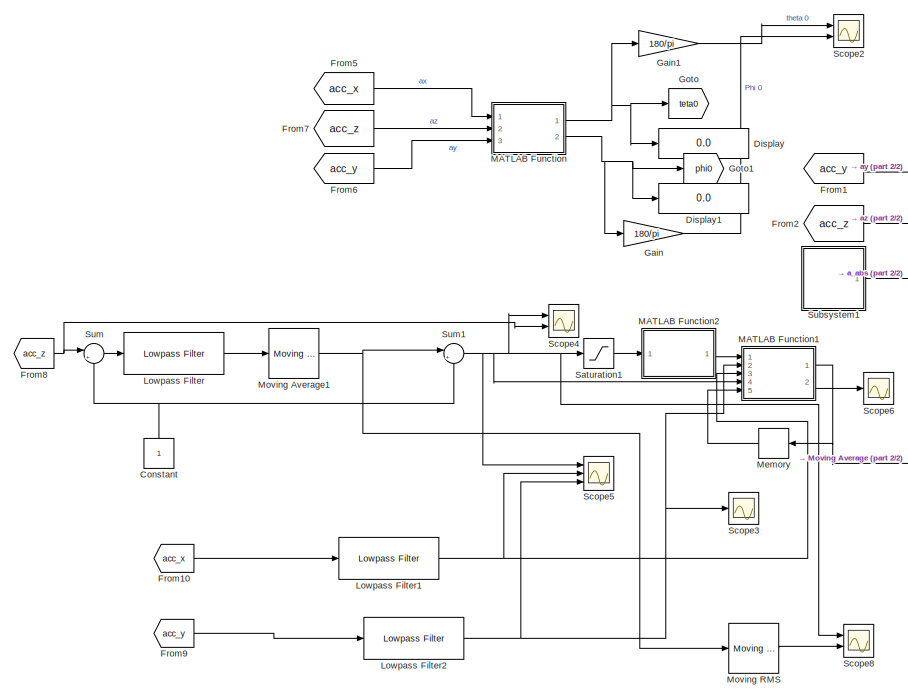
[diagram: root canvas - part 1/2, left side, full height]
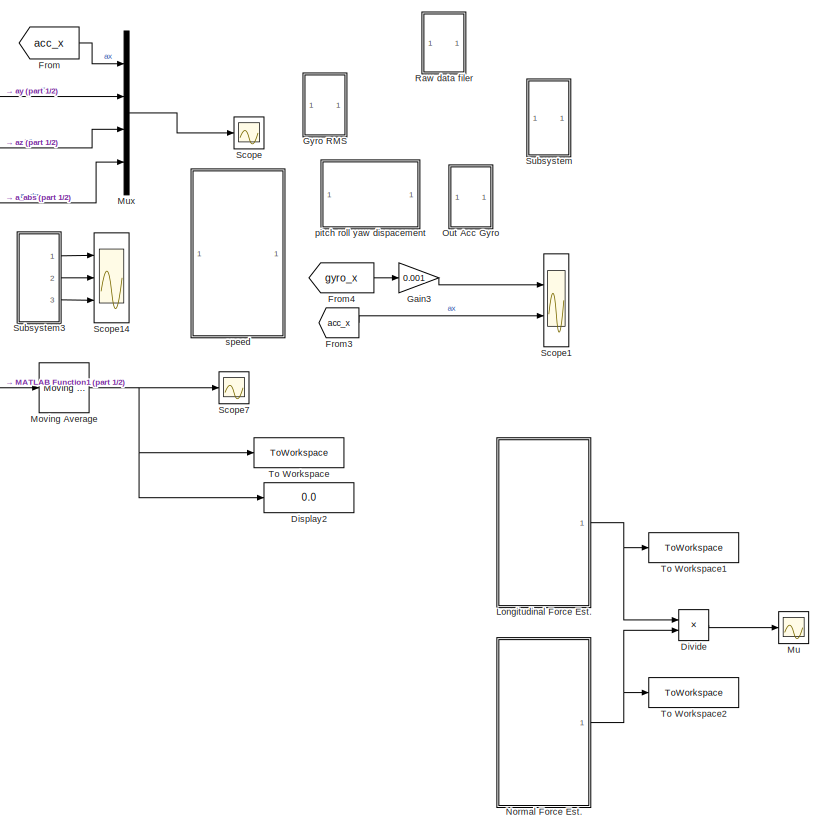
[diagram: root canvas - part 2/2, right side, full height]
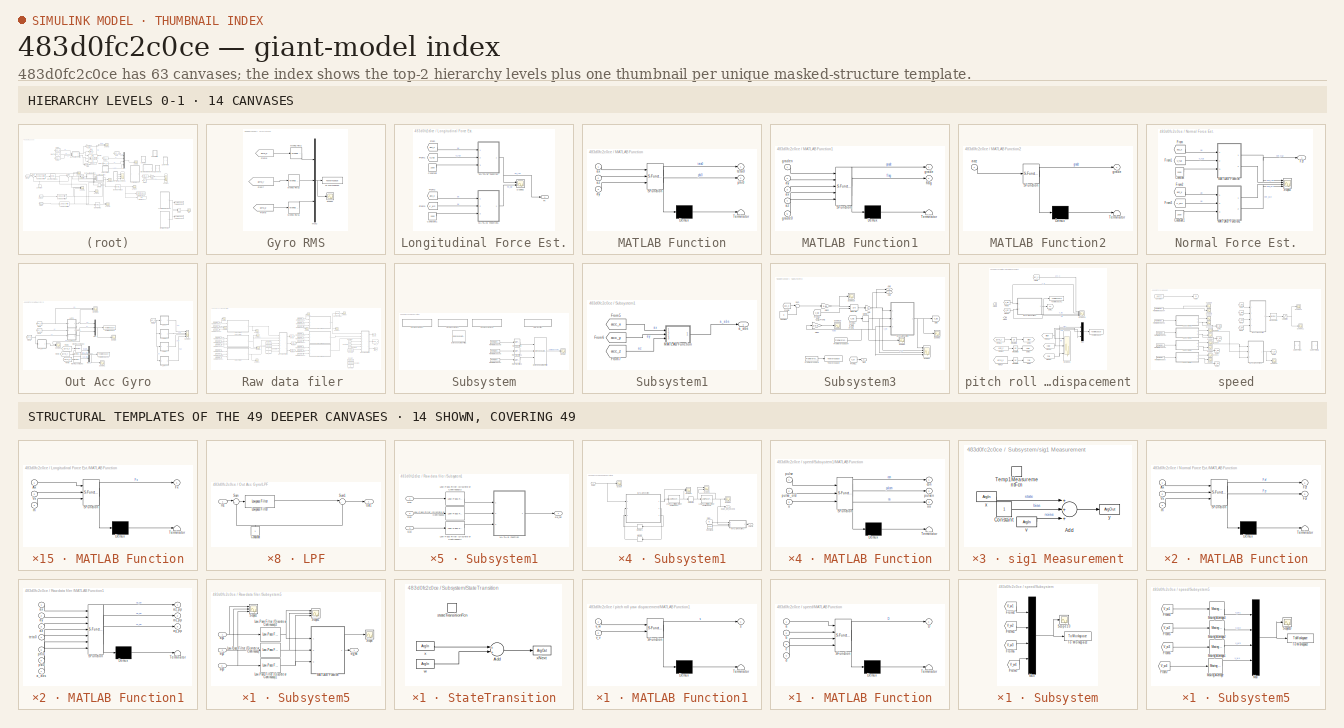
[diagram: thumbnail index - top-2 hierarchy levels (14 canvases) + 14 structural-template representatives of the remaining 49 canvases]
MODEL slx_483d0fc2c0ce
KIND model
CONFIG AbsTol = auto
CONFIG EnableMultiTasking = off
CONFIG FixedStep = 0.01
CONFIG MaxStep = auto
CONFIG MinStep = auto
CONFIG RelTol = 1e-3
CONFIG SampleTimeConstraint = Unconstrained
CONFIG Solver = FixedStepAuto
CONFIG SolverName = FixedStepAuto
CONFIG StartTime = 0.0
CONFIG StopTime = t(end)
BLOCK [Constant] Constant
BLOCK [Display] Display
  Decimation = 1
  Ports = [1]
BLOCK [Display] Display1
  Decimation = 1
  Ports = [1]
BLOCK [Display] Display2
  Decimation = 1
  Ports = [1]
BLOCK [Product] Divide
  InputSameDT = off
  Inputs = */
  OutDataTypeStr = Inherit: Inherit via internal rule
  Ports = [2, 1]
  RndMeth = Floor
  SaturateOnIntegerOverflow = off
BLOCK [From] From
  GotoTag = acc_x
  TagVisibility = global
BLOCK [From] From1
  GotoTag = acc_y
  TagVisibility = global
BLOCK [From] From10
  GotoTag = acc_x
  TagVisibility = global
BLOCK [From] From2
  GotoTag = acc_z
  TagVisibility = global
BLOCK [From] From3
  GotoTag = acc_x
  TagVisibility = global
BLOCK [From] From4
  GotoTag = gyro_x
  TagVisibility = global
BLOCK [From] From5
  GotoTag = acc_x
  TagVisibility = global
BLOCK [From] From6
  GotoTag = acc_y
  TagVisibility = global
BLOCK [From] From7
  GotoTag = acc_z
  TagVisibility = global
BLOCK [From] From8
  GotoTag = acc_z
  TagVisibility = global
BLOCK [From] From9
  GotoTag = acc_y
  TagVisibility = global
BLOCK [Gain] Gain
  Gain = 180/pi
  OutDataTypeStr = Inherit: Inherit via internal rule
  ParamDataTypeStr = Inherit: Inherit via internal rule
  SaturateOnIntegerOverflow = off
BLOCK [Gain] Gain1
  Gain = 180/pi
  OutDataTypeStr = Inherit: Inherit via internal rule
  ParamDataTypeStr = Inherit: Inherit via internal rule
  SaturateOnIntegerOverflow = off
BLOCK [Gain] Gain3
  Gain = 0.001
  OutDataTypeStr = Inherit: Inherit via internal rule
  ParamDataTypeStr = Inherit: Inherit via internal rule
  SaturateOnIntegerOverflow = off
BLOCK [Goto] Goto
  GotoTag = teta0
  TagVisibility = global
BLOCK [Goto] Goto1
  GotoTag = phi0
  TagVisibility = global
BLOCK [SubSystem] Gyro RMS
  Ports = []
  RequestExecContextInheritance = off
BLOCK [From] Gyro RMS/From6
  GotoTag = gyro_x
  TagVisibility = global
BLOCK [From] Gyro RMS/From7
  GotoTag = gyro_y
  TagVisibility = global
BLOCK [From] Gyro RMS/From8
  GotoTag = gyro_z
  TagVisibility = global
BLOCK [Reference] Gyro RMS/Moving RMS  REF=dspstat3/Moving
RMS
  Ports = [1, 1]
  SourceBlock = dspstat3/Moving\nRMS
  SourceProductBaseCode = DS
  SourceProductName = DSP System Toolbox
  SourceType = dsp.simulink.MovingRMS
BLOCK [Reference] Gyro RMS/Moving RMS1  REF=dspstat3/Moving
RMS
  Ports = [1, 1]
  SourceBlock = dspstat3/Moving\nRMS
  SourceProductBaseCode = DS
  SourceProductName = DSP System Toolbox
  SourceType = dsp.simulink.MovingRMS
BLOCK [Reference] Gyro RMS/Moving RMS2  REF=dspstat3/Moving
RMS
  Ports = [1, 1]
  SourceBlock = dspstat3/Moving\nRMS
  SourceProductBaseCode = DS
  SourceProductName = DSP System Toolbox
  SourceType = dsp.simulink.MovingRMS
BLOCK [Mux] Gyro RMS/Mux2
  DisplayOption = bar
  Inputs = 3
  Ports = [3, 1]
BLOCK [Scope] Gyro RMS/Scope2
  Floating = off
  NumInputPorts = 1
  Ports = [1]
  ScopeSpecificationString = Simulink.scopes.TimeScopeBlockCfg('CurrentConfiguration', extmgr.ConfigurationSet(extmgr.Configuration('Core','General UI',true),extmgr.Configuration('Core','Source UI',true),extmgr.Configuration('Sources','WiredSimulink',true,'DataLoggingVariableName','ScopeData9'),extmgr.Configuration('Visuals','Time Domain',true,'SerializedDisplays',{struct('MinYLimReal','-34.50574','MaxYLimReal','312.55829','Y...<+1453ch>
BLOCK [ToWorkspace] Gyro RMS/To Workspace2
  FixptAsFi = on
  MaxDataPoints = inf
  Ports = [1]
  SampleTime = -1
  SaveFormat = Timeseries
  VariableName = rms_gyro
BLOCK [SubSystem] Longitudinal Force Est.
  Ports = [0, 1]
  RequestExecContextInheritance = off
BLOCK [Constant] Longitudinal Force Est./Constant
  Value = 1500
BLOCK [Constant] Longitudinal Force Est./Constant1
  Value = 1500
BLOCK [From] Longitudinal Force Est./From
  GotoTag = acc_x
  TagVisibility = global
BLOCK [From] Longitudinal Force Est./From1
  GotoTag = v_fuz
  TagVisibility = global
BLOCK [From] Longitudinal Force Est./From2
  GotoTag = acc_x
  TagVisibility = global
BLOCK [From] Longitudinal Force Est./From3
  GotoTag = V_w2
  TagVisibility = global
BLOCK [Outport] Longitudinal Force Est./Fx
  IconDisplay = Port number
BLOCK [SubSystem] Longitudinal Force Est./MATLAB Function
  ErrorFcn = Stateflow.Translate.translate
  PermitHierarchicalResolution = ExplicitOnly
  Ports = [3, 1]
  RequestExecContextInheritance = off
  SFBlockType = MATLAB Function
  TreatAsAtomicUnit = on
BLOCK [Demux] Longitudinal Force Est./MATLAB Function/ Demux 
  Outputs = 1
  Ports = [1, 1]
BLOCK [S-Function] Longitudinal Force Est./MATLAB Function/ SFunction 
  EnableBusSupport = on
  FunctionName = sf_sfun
  PortCounts = [3 2]
  Ports = [3, 2]
  SFcnIsStateOwnerBlock = off
  SFunctionDeploymentMode = off
  Tag = Stateflow S-Function 25
BLOCK [Terminator] Longitudinal Force Est./MATLAB Function/ Terminator 
BLOCK [Inport] Longitudinal Force Est./MATLAB Function/Ax
  IconDisplay = Port number
BLOCK [Outport] Longitudinal Force Est./MATLAB Function/Fx
  IconDisplay = Port number
BLOCK [Inport] Longitudinal Force Est./MATLAB Function/Vx
  IconDisplay = Port number
  Port = 2
BLOCK [Inport] Longitudinal Force Est./MATLAB Function/m
  IconDisplay = Port number
  Port = 3
BLOCK [SubSystem] Longitudinal Force Est./MATLAB Function1
  ErrorFcn = Stateflow.Translate.translate
  PermitHierarchicalResolution = ExplicitOnly
  Ports = [3, 1]
  RequestExecContextInheritance = off
  SFBlockType = MATLAB Function
  TreatAsAtomicUnit = on
BLOCK [Demux] Longitudinal Force Est./MATLAB Function1/ Demux 
  Outputs = 1
  Ports = [1, 1]
BLOCK [S-Function] Longitudinal Force Est./MATLAB Function1/ SFunction 
  EnableBusSupport = on
  FunctionName = sf_sfun
  PortCounts = [3 2]
  Ports = [3, 2]
  SFcnIsStateOwnerBlock = off
  SFunctionDeploymentMode = off
  Tag = Stateflow S-Function 26
BLOCK [Terminator] Longitudinal Force Est./MATLAB Function1/ Terminator 
BLOCK [Inport] Longitudinal Force Est./MATLAB Function1/Ax
  IconDisplay = Port number
BLOCK [Outport] Longitudinal Force Est./MATLAB Function1/Fx
  IconDisplay = Port number
BLOCK [Inport] Longitudinal Force Est./MATLAB Function1/Vx
  IconDisplay = Port number
  Port = 2
BLOCK [Inport] Longitudinal Force Est./MATLAB Function1/m
  IconDisplay = Port number
  Port = 3
BLOCK [Scope] Longitudinal Force Est./Scope2
  Floating = off
  NumInputPorts = 2
  Ports = [2]
  ScopeSpecificationString = Simulink.scopes.TimeScopeBlockCfg('CurrentConfiguration', extmgr.ConfigurationSet(extmgr.Configuration('Core','General UI',true),extmgr.Configuration('Core','Source UI',true),extmgr.Configuration('Sources','WiredSimulink',true,'DataLoggingVariableName','ScopeData4'),extmgr.Configuration('Visuals','Time Domain',true,'SerializedDisplays',{struct('MinYLimReal','-1184.52245','MaxYLimReal','2196.94421'...<+1464ch>
BLOCK [Reference] Lowpass Filter  REF=dspfdesign/Lowpass Filter
  Ports = [1, 1]
  SourceBlock = dspfdesign/Lowpass Filter
  SourceProductBaseCode = DS
  SourceProductName = DSP System Toolbox
  SourceType = dsp.LowpassFilter
BLOCK [Reference] Lowpass Filter1  REF=dspfdesign/Lowpass Filter
  Ports = [1, 1]
  SourceBlock = dspfdesign/Lowpass Filter
  SourceProductBaseCode = DS
  SourceProductName = DSP System Toolbox
  SourceType = dsp.LowpassFilter
BLOCK [Reference] Lowpass Filter2  REF=dspfdesign/Lowpass Filter
  Ports = [1, 1]
  SourceBlock = dspfdesign/Lowpass Filter
  SourceProductBaseCode = DS
  SourceProductName = DSP System Toolbox
  SourceType = dsp.LowpassFilter
BLOCK [SubSystem] MATLAB Function
  ErrorFcn = Stateflow.Translate.translate
  PermitHierarchicalResolution = ExplicitOnly
  Ports = [3, 2]
  RequestExecContextInheritance = off
  SFBlockType = MATLAB Function
  TreatAsAtomicUnit = on
BLOCK [Demux] MATLAB Function/ Demux 
  Outputs = 1
  Ports = [1, 1]
BLOCK [S-Function] MATLAB Function/ SFunction 
  EnableBusSupport = on
  FunctionName = sf_sfun
  PortCounts = [3 3]
  Ports = [3, 3]
  SFcnIsStateOwnerBlock = off
  SFunctionDeploymentMode = off
  Tag = Stateflow S-Function 20
BLOCK [Terminator] MATLAB Function/ Terminator 
BLOCK [Inport] MATLAB Function/ax
  IconDisplay = Port number
BLOCK [Inport] MATLAB Function/ay
  IconDisplay = Port number
  Port = 3
BLOCK [Inport] MATLAB Function/az
  IconDisplay = Port number
  Port = 2
BLOCK [Outport] MATLAB Function/phi0
  IconDisplay = Port number
  Port = 2
BLOCK [Outport] MATLAB Function/teta0
  IconDisplay = Port number
BLOCK [SubSystem] MATLAB Function1
  ErrorFcn = Stateflow.Translate.translate
  PermitHierarchicalResolution = ExplicitOnly
  Ports = [5, 2]
  RequestExecContextInheritance = off
  SFBlockType = MATLAB Function
  TreatAsAtomicUnit = on
BLOCK [Demux] MATLAB Function1/ Demux 
  Outputs = 1
  Ports = [1, 1]
BLOCK [S-Function] MATLAB Function1/ SFunction 
  EnableBusSupport = on
  FunctionName = sf_sfun
  PortCounts = [5 3]
  Ports = [5, 3]
  SFcnIsStateOwnerBlock = off
  SFunctionDeploymentMode = off
  Tag = Stateflow S-Function 24
BLOCK [Terminator] MATLAB Function1/ Terminator 
BLOCK [Inport] MATLAB Function1/ax
  IconDisplay = Port number
  Port = 3
BLOCK [Inport] MATLAB Function1/ay
  IconDisplay = Port number
  Port = 2
BLOCK [Inport] MATLAB Function1/az
  IconDisplay = Port number
  Port = 4
BLOCK [Outport] MATLAB Function1/flag
  IconDisplay = Port number
  Port = 2
BLOCK [Outport] MATLAB Function1/grade
  IconDisplay = Port number
BLOCK [Inport] MATLAB Function1/grade0
  IconDisplay = Port number
  Port = 5
BLOCK [Inport] MATLAB Function1/graden
  IconDisplay = Port number
BLOCK [SubSystem] MATLAB Function2
  ErrorFcn = Stateflow.Translate.translate
  PermitHierarchicalResolution = ExplicitOnly
  Ports = [1, 1]
  RequestExecContextInheritance = off
  SFBlockType = MATLAB Function
  TreatAsAtomicUnit = on
BLOCK [Demux] MATLAB Function2/ Demux 
  Outputs = 1
  Ports = [1, 1]
BLOCK [S-Function] MATLAB Function2/ SFunction 
  EnableBusSupport = on
  FunctionName = sf_sfun
  PortCounts = [1 2]
  Ports = [1, 2]
  SFcnIsStateOwnerBlock = off
  SFunctionDeploymentMode = off
  Tag = Stateflow S-Function 23
BLOCK [Terminator] MATLAB Function2/ Terminator 
BLOCK [Inport] MATLAB Function2/accz
  IconDisplay = Port number
BLOCK [Outport] MATLAB Function2/grade
  IconDisplay = Port number
BLOCK [Memory] Memory
BLOCK [Reference] Moving Average  REF=dspstat3/Moving
Average
  Ports = [1, 1]
  SourceBlock = dspstat3/Moving\nAverage
  SourceProductBaseCode = DS
  SourceProductName = DSP System Toolbox
  SourceType = dsp.simulink.MovingAverage
BLOCK [Reference] Moving Average1  REF=dspstat3/Moving
Average
  Ports = [1, 1]
  SourceBlock = dspstat3/Moving\nAverage
  SourceProductBaseCode = DS
  SourceProductName = DSP System Toolbox
  SourceType = dsp.simulink.MovingAverage
BLOCK [Reference] Moving RMS  REF=dspstat3/Moving
RMS
  Ports = [1, 1]
  SourceBlock = dspstat3/Moving\nRMS
  SourceProductBaseCode = DS
  SourceProductName = DSP System Toolbox
  SourceType = dsp.simulink.MovingRMS
BLOCK [Scope] Mu
  Floating = off
  NumInputPorts = 1
  Ports = [1]
  ScopeSpecificationString = Simulink.scopes.TimeScopeBlockCfg('CurrentConfiguration', extmgr.ConfigurationSet(extmgr.Configuration('Core','General UI',true),extmgr.Configuration('Core','Source UI',true),extmgr.Configuration('Sources','WiredSimulink',true,'DataLoggingVariableName','ScopeData3'),extmgr.Configuration('Visuals','Time Domain',true,'SerializedDisplays',{struct('MinYLimReal','-0.31021','MaxYLimReal','2.86284','YLab...<+1414ch>
BLOCK [Mux] Mux
  DisplayOption = bar
  Ports = [4, 1]
BLOCK [SubSystem] Normal Force Est.
  Ports = [0, 1]
  RequestExecContextInheritance = off
BLOCK [Constant] Normal Force Est./Constant
  Value = 1500
BLOCK [Constant] Normal Force Est./Constant1
  Value = 1500
BLOCK [From] Normal Force Est./From
  GotoTag = acc_x
  TagVisibility = global
BLOCK [From] Normal Force Est./From1
  GotoTag = v_fuz
  TagVisibility = global
BLOCK [From] Normal Force Est./From2
  GotoTag = acc_x
  TagVisibility = global
BLOCK [From] Normal Force Est./From3
  GotoTag = V_w2
  TagVisibility = global
BLOCK [Outport] Normal Force Est./Fzf
  IconDisplay = Port number
BLOCK [SubSystem] Normal Force Est./MATLAB Function
  ErrorFcn = Stateflow.Translate.translate
  PermitHierarchicalResolution = ExplicitOnly
  Ports = [3, 2]
  RequestExecContextInheritance = off
  SFBlockType = MATLAB Function
  TreatAsAtomicUnit = on
BLOCK [Demux] Normal Force Est./MATLAB Function/ Demux 
  Outputs = 1
  Ports = [1, 1]
BLOCK [S-Function] Normal Force Est./MATLAB Function/ SFunction 
  EnableBusSupport = on
  FunctionName = sf_sfun
  PortCounts = [3 3]
  Ports = [3, 3]
  SFcnIsStateOwnerBlock = off
  SFunctionDeploymentMode = off
  Tag = Stateflow S-Function 27
BLOCK [Terminator] Normal Force Est./MATLAB Function/ Terminator 
BLOCK [Inport] Normal Force Est./MATLAB Function/Ax
  IconDisplay = Port number
BLOCK [Outport] Normal Force Est./MATLAB Function/Fzf
  IconDisplay = Port number
BLOCK [Outport] Normal Force Est./MATLAB Function/Fzr
  IconDisplay = Port number
  Port = 2
BLOCK [Inport] Normal Force Est./MATLAB Function/Vx
  IconDisplay = Port number
  Port = 2
BLOCK [Inport] Normal Force Est./MATLAB Function/m
  IconDisplay = Port number
  Port = 3
BLOCK [SubSystem] Normal Force Est./MATLAB Function1
  ErrorFcn = Stateflow.Translate.translate
  PermitHierarchicalResolution = ExplicitOnly
  Ports = [3, 2]
  RequestExecContextInheritance = off
  SFBlockType = MATLAB Function
  TreatAsAtomicUnit = on
BLOCK [Demux] Normal Force Est./MATLAB Function1/ Demux 
  Outputs = 1
  Ports = [1, 1]
BLOCK [S-Function] Normal Force Est./MATLAB Function1/ SFunction 
  EnableBusSupport = on
  FunctionName = sf_sfun
  PortCounts = [3 3]
  Ports = [3, 3]
  SFcnIsStateOwnerBlock = off
  SFunctionDeploymentMode = off
  Tag = Stateflow S-Function 28
BLOCK [Terminator] Normal Force Est./MATLAB Function1/ Terminator 
BLOCK [Inport] Normal Force Est./MATLAB Function1/Ax
  IconDisplay = Port number
BLOCK [Outport] Normal Force Est./MATLAB Function1/Fzf
  IconDisplay = Port number
BLOCK [Outport] Normal Force Est./MATLAB Function1/Fzr
  IconDisplay = Port number
  Port = 2
BLOCK [Inport] Normal Force Est./MATLAB Function1/Vx
  IconDisplay = Port number
  Port = 2
BLOCK [Inport] Normal Force Est./MATLAB Function1/m
  IconDisplay = Port number
  Port = 3
BLOCK [Scope] Normal Force Est./Scope2
  Floating = off
  NumInputPorts = 4
  Ports = [4]
  ScopeSpecificationString = Simulink.scopes.TimeScopeBlockCfg('CurrentConfiguration', extmgr.ConfigurationSet(extmgr.Configuration('Core','General UI',true),extmgr.Configuration('Core','Source UI',true),extmgr.Configuration('Sources','WiredSimulink',true,'DataLoggingVariableName','ScopeData2'),extmgr.Configuration('Visuals','Time Domain',true,'SerializedDisplays',{struct('MinYLimReal','2606.48008','MaxYLimReal','12108.51992'...<+1489ch>
BLOCK [SubSystem] Out Acc Gyro
  Ports = []
  RequestExecContextInheritance = off
BLOCK [From] Out Acc Gyro/From
  GotoTag = acc_x
  TagVisibility = global
BLOCK [From] Out Acc Gyro/From1
  GotoTag = acc_y
  TagVisibility = global
BLOCK [From] Out Acc Gyro/From2
  GotoTag = acc_z
  TagVisibility = global
BLOCK [From] Out Acc Gyro/From3
  GotoTag = gyro_x
  TagVisibility = global
BLOCK [From] Out Acc Gyro/From4
  GotoTag = gyro_y
  TagVisibility = global
BLOCK [From] Out Acc Gyro/From5
  GotoTag = gyro_z
  TagVisibility = global
BLOCK [From] Out Acc Gyro/From6
  GotoTag = acc_x
  TagVisibility = global
BLOCK [SubSystem] Out Acc Gyro/LPF
  Ports = [1, 1]
  RequestExecContextInheritance = off
BLOCK [Constant] Out Acc Gyro/LPF/Constant
BLOCK [Inport] Out Acc Gyro/LPF/In1
  IconDisplay = Port number
BLOCK [Reference] Out Acc Gyro/LPF/Lowpass Filter  REF=dspfdesign/Lowpass Filter
  Ports = [1, 1]
  SourceBlock = dspfdesign/Lowpass Filter
  SourceProductBaseCode = DS
  SourceProductName = DSP System Toolbox
  SourceType = dsp.LowpassFilter
BLOCK [Outport] Out Acc Gyro/LPF/Out1
  IconDisplay = Port number
BLOCK [Sum] Out Acc Gyro/LPF/Sum
  IconShape = round
  InputSameDT = off
  Inputs = |+-
  OutDataTypeStr = Inherit: Inherit via internal rule
  Ports = [2, 1]
  SaturateOnIntegerOverflow = off
BLOCK [Sum] Out Acc Gyro/LPF/Sum1
  IconShape = round
  InputSameDT = off
  Inputs = |++
  OutDataTypeStr = Inherit: Inherit via internal rule
  Ports = [2, 1]
  SaturateOnIntegerOverflow = off
BLOCK [SubSystem] Out Acc Gyro/LPF1
  Ports = [1, 1]
  RequestExecContextInheritance = off
BLOCK [Constant] Out Acc Gyro/LPF1/Constant
BLOCK [Inport] Out Acc Gyro/LPF1/In1
  IconDisplay = Port number
BLOCK [Reference] Out Acc Gyro/LPF1/Lowpass Filter  REF=dspfdesign/Lowpass Filter
  Ports = [1, 1]
  SourceBlock = dspfdesign/Lowpass Filter
  SourceProductBaseCode = DS
  SourceProductName = DSP System Toolbox
  SourceType = dsp.LowpassFilter
BLOCK [Outport] Out Acc Gyro/LPF1/Out1
  IconDisplay = Port number
BLOCK [Sum] Out Acc Gyro/LPF1/Sum
  IconShape = round
  InputSameDT = off
  Inputs = |+-
  OutDataTypeStr = Inherit: Inherit via internal rule
  Ports = [2, 1]
  SaturateOnIntegerOverflow = off
BLOCK [Sum] Out Acc Gyro/LPF1/Sum1
  IconShape = round
  InputSameDT = off
  Inputs = |++
  OutDataTypeStr = Inherit: Inherit via internal rule
  Ports = [2, 1]
  SaturateOnIntegerOverflow = off
BLOCK [SubSystem] Out Acc Gyro/LPF2
  Ports = [1, 1]
  RequestExecContextInheritance = off
BLOCK [Constant] Out Acc Gyro/LPF2/Constant
  Value = 0
BLOCK [Inport] Out Acc Gyro/LPF2/In1
  IconDisplay = Port number
BLOCK [Reference] Out Acc Gyro/LPF2/Lowpass Filter  REF=dspfdesign/Lowpass Filter
  Ports = [1, 1]
  SourceBlock = dspfdesign/Lowpass Filter
  SourceProductBaseCode = DS
  SourceProductName = DSP System Toolbox
  SourceType = dsp.LowpassFilter
BLOCK [Outport] Out Acc Gyro/LPF2/Out1
  IconDisplay = Port number
BLOCK [Sum] Out Acc Gyro/LPF2/Sum
  IconShape = round
  InputSameDT = off
  Inputs = |+-
  OutDataTypeStr = Inherit: Inherit via internal rule
  Ports = [2, 1]
  SaturateOnIntegerOverflow = off
BLOCK [Sum] Out Acc Gyro/LPF2/Sum1
  IconShape = round
  InputSameDT = off
  Inputs = |++
  OutDataTypeStr = Inherit: Inherit via internal rule
  Ports = [2, 1]
  SaturateOnIntegerOverflow = off
BLOCK [SubSystem] Out Acc Gyro/LPF3
  Ports = [1, 1]
  RequestExecContextInheritance = off
BLOCK [Constant] Out Acc Gyro/LPF3/Constant
  Value = 0
BLOCK [Inport] Out Acc Gyro/LPF3/In1
  IconDisplay = Port number
BLOCK [Reference] Out Acc Gyro/LPF3/Lowpass Filter  REF=dspfdesign/Lowpass Filter
  Ports = [1, 1]
  SourceBlock = dspfdesign/Lowpass Filter
  SourceProductBaseCode = DS
  SourceProductName = DSP System Toolbox
  SourceType = dsp.LowpassFilter
BLOCK [Outport] Out Acc Gyro/LPF3/Out1
  IconDisplay = Port number
BLOCK [Sum] Out Acc Gyro/LPF3/Sum
  IconShape = round
  InputSameDT = off
  Inputs = |+-
  OutDataTypeStr = Inherit: Inherit via internal rule
  Ports = [2, 1]
  SaturateOnIntegerOverflow = off
BLOCK [Sum] Out Acc Gyro/LPF3/Sum1
  IconShape = round
  InputSameDT = off
  Inputs = |++
  OutDataTypeStr = Inherit: Inherit via internal rule
  Ports = [2, 1]
  SaturateOnIntegerOverflow = off
BLOCK [SubSystem] Out Acc Gyro/LPF4
  Ports = [1, 1]
  RequestExecContextInheritance = off
BLOCK [Constant] Out Acc Gyro/LPF4/Constant
  Value = 0
BLOCK [Inport] Out Acc Gyro/LPF4/In1
  IconDisplay = Port number
BLOCK [Reference] Out Acc Gyro/LPF4/Lowpass Filter  REF=dspfdesign/Lowpass Filter
  Ports = [1, 1]
  SourceBlock = dspfdesign/Lowpass Filter
  SourceProductBaseCode = DS
  SourceProductName = DSP System Toolbox
  SourceType = dsp.LowpassFilter
BLOCK [Outport] Out Acc Gyro/LPF4/Out1
  IconDisplay = Port number
BLOCK [Sum] Out Acc Gyro/LPF4/Sum
  IconShape = round
  InputSameDT = off
  Inputs = |+-
  OutDataTypeStr = Inherit: Inherit via internal rule
  Ports = [2, 1]
  SaturateOnIntegerOverflow = off
BLOCK [Sum] Out Acc Gyro/LPF4/Sum1
  IconShape = round
  InputSameDT = off
  Inputs = |++
  OutDataTypeStr = Inherit: Inherit via internal rule
  Ports = [2, 1]
  SaturateOnIntegerOverflow = off
BLOCK [SubSystem] Out Acc Gyro/LPF5
  Ports = [1, 1]
  RequestExecContextInheritance = off
BLOCK [Constant] Out Acc Gyro/LPF5/Constant
  Value = 0
BLOCK [Inport] Out Acc Gyro/LPF5/In1
  IconDisplay = Port number
BLOCK [Reference] Out Acc Gyro/LPF5/Lowpass Filter  REF=dspfdesign/Lowpass Filter
  Ports = [1, 1]
  SourceBlock = dspfdesign/Lowpass Filter
  SourceProductBaseCode = DS
  SourceProductName = DSP System Toolbox
  SourceType = dsp.LowpassFilter
BLOCK [Outport] Out Acc Gyro/LPF5/Out1
  IconDisplay = Port number
BLOCK [Sum] Out Acc Gyro/LPF5/Sum
  IconShape = round
  InputSameDT = off
  Inputs = |+-
  OutDataTypeStr = Inherit: Inherit via internal rule
  Ports = [2, 1]
  SaturateOnIntegerOverflow = off
BLOCK [Sum] Out Acc Gyro/LPF5/Sum1
  IconShape = round
  InputSameDT = off
  Inputs = |++
  OutDataTypeStr = Inherit: Inherit via internal rule
  Ports = [2, 1]
  SaturateOnIntegerOverflow = off
BLOCK [SubSystem] Out Acc Gyro/LPF6
  Ports = [1, 1]
  RequestExecContextInheritance = off
BLOCK [Constant] Out Acc Gyro/LPF6/Constant
  Value = 0
BLOCK [Inport] Out Acc Gyro/LPF6/In1
  IconDisplay = Port number
BLOCK [Reference] Out Acc Gyro/LPF6/Lowpass Filter  REF=dspfdesign/Lowpass Filter
  Ports = [1, 1]
  SourceBlock = dspfdesign/Lowpass Filter
  SourceProductBaseCode = DS
  SourceProductName = DSP System Toolbox
  SourceType = dsp.LowpassFilter
BLOCK [Outport] Out Acc Gyro/LPF6/Out1
  IconDisplay = Port number
BLOCK [Sum] Out Acc Gyro/LPF6/Sum
  IconShape = round
  InputSameDT = off
  Inputs = |+-
  OutDataTypeStr = Inherit: Inherit via internal rule
  Ports = [2, 1]
  SaturateOnIntegerOverflow = off
BLOCK [Sum] Out Acc Gyro/LPF6/Sum1
  IconShape = round
  InputSameDT = off
  Inputs = |++
  OutDataTypeStr = Inherit: Inherit via internal rule
  Ports = [2, 1]
  SaturateOnIntegerOverflow = off
BLOCK [SubSystem] Out Acc Gyro/LPF7
  Ports = [1, 1]
  RequestExecContextInheritance = off
BLOCK [Constant] Out Acc Gyro/LPF7/Constant
  Value = 0
BLOCK [Inport] Out Acc Gyro/LPF7/In1
  IconDisplay = Port number
BLOCK [Reference] Out Acc Gyro/LPF7/Lowpass Filter  REF=dspfdesign/Lowpass Filter
  Ports = [1, 1]
  SourceBlock = dspfdesign/Lowpass Filter
  SourceProductBaseCode = DS
  SourceProductName = DSP System Toolbox
  SourceType = dsp.LowpassFilter
BLOCK [Outport] Out Acc Gyro/LPF7/Out1
  IconDisplay = Port number
BLOCK [Sum] Out Acc Gyro/LPF7/Sum
  IconShape = round
  InputSameDT = off
  Inputs = |+-
  OutDataTypeStr = Inherit: Inherit via internal rule
  Ports = [2, 1]
  SaturateOnIntegerOverflow = off
BLOCK [Sum] Out Acc Gyro/LPF7/Sum1
  IconShape = round
  InputSameDT = off
  Inputs = |++
  OutDataTypeStr = Inherit: Inherit via internal rule
  Ports = [2, 1]
  SaturateOnIntegerOverflow = off
BLOCK [Reference] Out Acc Gyro/Moving Average1  REF=dspstat3/Moving
Average
  Ports = [1, 1]
  SourceBlock = dspstat3/Moving\nAverage
  SourceProductBaseCode = DS
  SourceProductName = DSP System Toolbox
  SourceType = dsp.simulink.MovingAverage
BLOCK [Reference] Out Acc Gyro/Moving Average2  REF=dspstat3/Moving
Average
  Ports = [1, 1]
  SourceBlock = dspstat3/Moving\nAverage
  SourceProductBaseCode = DS
  SourceProductName = DSP System Toolbox
  SourceType = dsp.simulink.MovingAverage
BLOCK [Reference] Out Acc Gyro/Moving Average3  REF=dspstat3/Moving
Average
  Ports = [1, 1]
  SourceBlock = dspstat3/Moving\nAverage
  SourceProductBaseCode = DS
  SourceProductName = DSP System Toolbox
  SourceType = dsp.simulink.MovingAverage
BLOCK [Mux] Out Acc Gyro/Mux
  DisplayOption = bar
  Inputs = 3
  Ports = [3, 1]
BLOCK [Mux] Out Acc Gyro/Mux1
  DisplayOption = bar
  Inputs = 3
  Ports = [3, 1]
BLOCK [Scope] Out Acc Gyro/Scope
  Floating = off
  NumInputPorts = 1
  Ports = [1]
  ScopeSpecificationString = Simulink.scopes.TimeScopeBlockCfg('CurrentConfiguration', extmgr.ConfigurationSet(extmgr.Configuration('Core','General UI',true),extmgr.Configuration('Core','Source UI',true),extmgr.Configuration('Sources','WiredSimulink',true,'DataLoggingVariableName','ScopeData13'),extmgr.Configuration('Visuals','Time Domain',true,'SerializedDisplays',{struct('MinYLimReal','-0.9568','MaxYLimReal','1.36158','YLab...<+1439ch>
BLOCK [Scope] Out Acc Gyro/Scope1
  Floating = off
  NumInputPorts = 1
  Ports = [1]
  ScopeSpecificationString = Simulink.scopes.TimeScopeBlockCfg('CurrentConfiguration', extmgr.ConfigurationSet(extmgr.Configuration('Core','General UI',true),extmgr.Configuration('Core','Source UI',true),extmgr.Configuration('Sources','WiredSimulink',true,'DataLoggingVariableName','ScopeData5'),extmgr.Configuration('Visuals','Time Domain',true,'SerializedDisplays',{struct('MinYLimReal','-0.00485','MaxYLimReal','0.0096','YLabe...<+1525ch>
BLOCK [Scope] Out Acc Gyro/Scope2
  Floating = off
  NumInputPorts = 2
  Ports = [2]
  ScopeSpecificationString = Simulink.scopes.TimeScopeBlockCfg('CurrentConfiguration', extmgr.ConfigurationSet(extmgr.Configuration('Core','General UI',true),extmgr.Configuration('Core','Source UI',true),extmgr.Configuration('Sources','WiredSimulink',true,'DataLoggingVariableName','ScopeData8'),extmgr.Configuration('Visuals','Time Domain',true,'SerializedDisplays',{struct('MinYLimReal','-0.86323','MaxYLimReal','0.47301','YLab...<+1435ch>
BLOCK [Scope] Out Acc Gyro/Scope3
  Floating = off
  NumInputPorts = 2
  Ports = [2]
  ScopeSpecificationString = Simulink.scopes.TimeScopeBlockCfg('CurrentConfiguration', extmgr.ConfigurationSet(extmgr.Configuration('Core','General UI',true),extmgr.Configuration('Core','Source UI',true),extmgr.Configuration('Sources','WiredSimulink',true,'DataLoggingVariableName','ScopeData9'),extmgr.Configuration('Visuals','Time Domain',true,'SerializedDisplays',{struct('MinYLimReal','0.75505','MaxYLimReal','1.17137','YLabe...<+1434ch>
BLOCK [Scope] Out Acc Gyro/Scope4
  Floating = off
  NumInputPorts = 4
  Ports = [4]
  ScopeSpecificationString = Simulink.scopes.TimeScopeBlockCfg('CurrentConfiguration', extmgr.ConfigurationSet(extmgr.Configuration('Core','General UI',true),extmgr.Configuration('Core','Source UI',true),extmgr.Configuration('Sources','WiredSimulink',true,'DataLoggingVariableName','ScopeData10'),extmgr.Configuration('Visuals','Time Domain',true,'SerializedDisplays',{struct('MinYLimReal','-0.85521','MaxYLimReal','0.47003','YLa...<+1541ch>
BLOCK [ToWorkspace] Out Acc Gyro/To Workspace
  FixptAsFi = on
  MaxDataPoints = inf
  Ports = [1]
  SampleTime = -1
  SaveFormat = Timeseries
  VariableName = acc
BLOCK [ToWorkspace] Out Acc Gyro/To Workspace1
  FixptAsFi = on
  MaxDataPoints = inf
  Ports = [1]
  SampleTime = -1
  SaveFormat = Timeseries
  VariableName = gyro
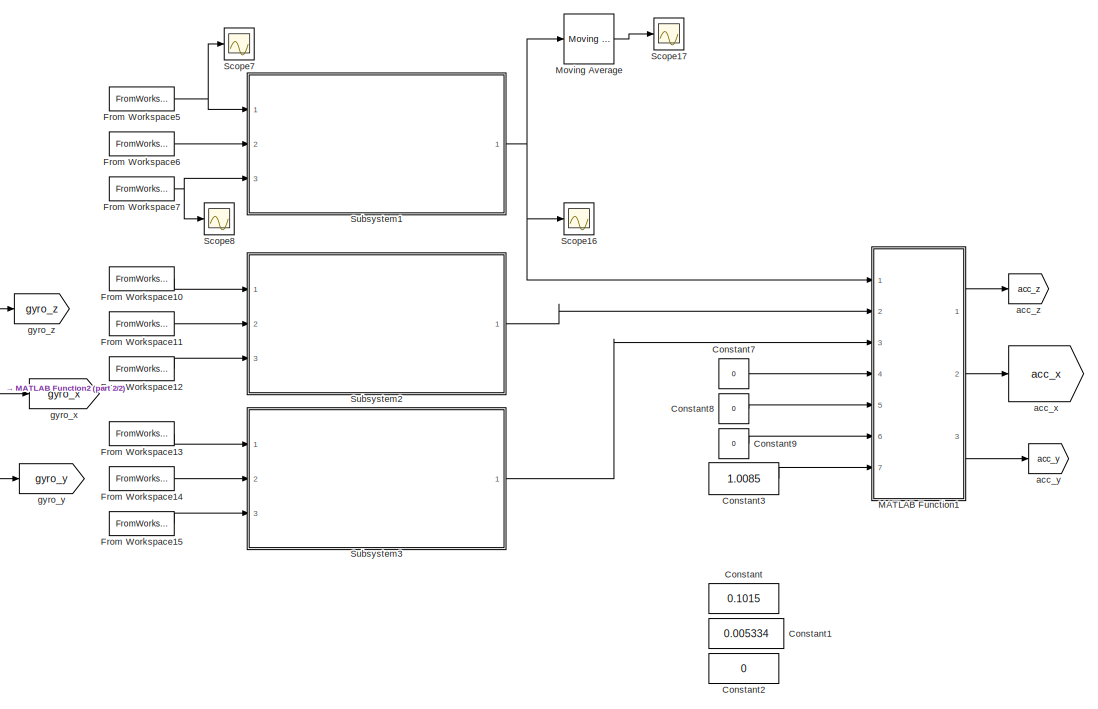
[diagram: Raw data filer  - part 1/2, right side, full height]
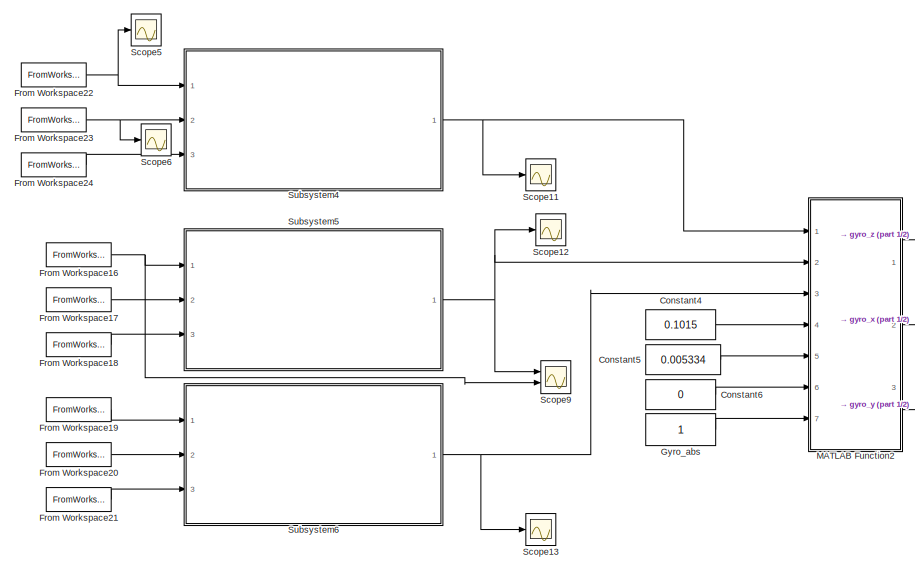
[diagram: Raw data filer  - part 2/2, left side, full height]
BLOCK [SubSystem] Raw data filer 
  Ports = []
  RequestExecContextInheritance = off
BLOCK [Constant] Raw data filer /Constant
  Commented = on
  Value = 0.1015
BLOCK [Constant] Raw data filer /Constant1
  Commented = on
  Value = 0.005334
BLOCK [Constant] Raw data filer /Constant2
  Commented = on
  Value = 0
BLOCK [Constant] Raw data filer /Constant3
  Value = 1.0085
BLOCK [Constant] Raw data filer /Constant4
  Value = 0.1015
BLOCK [Constant] Raw data filer /Constant5
  Value = 0.005334
BLOCK [Constant] Raw data filer /Constant6
  Value = 0
BLOCK [Constant] Raw data filer /Constant7
  Value = 0
BLOCK [Constant] Raw data filer /Constant8
  Value = 0
BLOCK [Constant] Raw data filer /Constant9
  Value = 0
BLOCK [FromWorkspace] Raw data filer /From Workspace10
  SampleTime = 0
  VariableName = IMU1.accyt
  ZeroCross = on
BLOCK [FromWorkspace] Raw data filer /From Workspace11
  SampleTime = 0
  VariableName = IMU2.accyt
  ZeroCross = on
BLOCK [FromWorkspace] Raw data filer /From Workspace12
  SampleTime = 0
  VariableName = IMU3.accyt
  ZeroCross = on
BLOCK [FromWorkspace] Raw data filer /From Workspace13
  SampleTime = 0
  VariableName = IMU1.acczt
  ZeroCross = on
BLOCK [FromWorkspace] Raw data filer /From Workspace14
  SampleTime = 0
  VariableName = IMU2.acczt
  ZeroCross = on
BLOCK [FromWorkspace] Raw data filer /From Workspace15
  SampleTime = 0
  VariableName = IMU3.acczt
  ZeroCross = on
BLOCK [FromWorkspace] Raw data filer /From Workspace16
  SampleTime = 0
  VariableName = IMU1.gyroyt
  ZeroCross = on
BLOCK [FromWorkspace] Raw data filer /From Workspace17
  SampleTime = 0
  VariableName = IMU2.gyroyt
  ZeroCross = on
BLOCK [FromWorkspace] Raw data filer /From Workspace18
  SampleTime = 0
  VariableName = IMU3.gyroyt
  ZeroCross = on
BLOCK [FromWorkspace] Raw data filer /From Workspace19
  SampleTime = 0
  VariableName = IMU1.gyrozt
  ZeroCross = on
BLOCK [FromWorkspace] Raw data filer /From Workspace20
  SampleTime = 0
  VariableName = IMU2.gyrozt
  ZeroCross = on
BLOCK [FromWorkspace] Raw data filer /From Workspace21
  SampleTime = 0
  VariableName = IMU3.gyrozt
  ZeroCross = on
BLOCK [FromWorkspace] Raw data filer /From Workspace22
  SampleTime = 0
  VariableName = IMU1.gyroxt
  ZeroCross = on
BLOCK [FromWorkspace] Raw data filer /From Workspace23
  SampleTime = 0
  VariableName = IMU2.gyroxt
  ZeroCross = on
BLOCK [FromWorkspace] Raw data filer /From Workspace24
  SampleTime = 0
  VariableName = IMU3.gyroxt
  ZeroCross = on
BLOCK [FromWorkspace] Raw data filer /From Workspace5
  SampleTime = 0
  VariableName = IMU1.accxt
  ZeroCross = on
BLOCK [FromWorkspace] Raw data filer /From Workspace6
  SampleTime = 0
  VariableName = IMU2.accxt
  ZeroCross = on
BLOCK [FromWorkspace] Raw data filer /From Workspace7
  SampleTime = 0
  VariableName = IMU3.accxt
  ZeroCross = on
BLOCK [Constant] Raw data filer /Gyro_abs
BLOCK [SubSystem] Raw data filer /MATLAB Function1
  ErrorFcn = Stateflow.Translate.translate
  PermitHierarchicalResolution = ExplicitOnly
  Ports = [7, 3]
  RequestExecContextInheritance = off
  SFBlockType = MATLAB Function
  TreatAsAtomicUnit = on
BLOCK [Demux] Raw data filer /MATLAB Function1/ Demux 
  Outputs = 1
  Ports = [1, 1]
BLOCK [S-Function] Raw data filer /MATLAB Function1/ SFunction 
  EnableBusSupport = on
  FunctionName = sf_sfun
  PortCounts = [7 4]
  Ports = [7, 4]
  SFcnIsStateOwnerBlock = off
  SFunctionDeploymentMode = off
  Tag = Stateflow S-Function 21
BLOCK [Terminator] Raw data filer /MATLAB Function1/ Terminator 
BLOCK [Inport] Raw data filer /MATLAB Function1/a_abs
  IconDisplay = Port number
  Port = 7
BLOCK [Inport] Raw data filer /MATLAB Function1/ax
  IconDisplay = Port number
BLOCK [Outport] Raw data filer /MATLAB Function1/ax_pp
  IconDisplay = Port number
  Port = 2
BLOCK [Inport] Raw data filer /MATLAB Function1/ay
  IconDisplay = Port number
  Port = 2
BLOCK [Outport] Raw data filer /MATLAB Function1/ay_pp
  IconDisplay = Port number
  Port = 3
BLOCK [Inport] Raw data filer /MATLAB Function1/az
  IconDisplay = Port number
  Port = 3
BLOCK [Outport] Raw data filer /MATLAB Function1/az_pp
  IconDisplay = Port number
BLOCK [Inport] Raw data filer /MATLAB Function1/phi0
  IconDisplay = Port number
  Port = 5
BLOCK [Inport] Raw data filer /MATLAB Function1/psi0
  IconDisplay = Port number
  Port = 6
BLOCK [Inport] Raw data filer /MATLAB Function1/teta0
  IconDisplay = Port number
  Port = 4
BLOCK [SubSystem] Raw data filer /MATLAB Function2
  ErrorFcn = Stateflow.Translate.translate
  PermitHierarchicalResolution = ExplicitOnly
  Ports = [7, 3]
  RequestExecContextInheritance = off
  SFBlockType = MATLAB Function
  TreatAsAtomicUnit = on
BLOCK [Demux] Raw data filer /MATLAB Function2/ Demux 
  Outputs = 1
  Ports = [1, 1]
BLOCK [S-Function] Raw data filer /MATLAB Function2/ SFunction 
  EnableBusSupport = on
  FunctionName = sf_sfun
  PortCounts = [7 4]
  Ports = [7, 4]
  SFcnIsStateOwnerBlock = off
  SFunctionDeploymentMode = off
  Tag = Stateflow S-Function 22
BLOCK [Terminator] Raw data filer /MATLAB Function2/ Terminator 
BLOCK [Inport] Raw data filer /MATLAB Function2/a_abs
  IconDisplay = Port number
  Port = 7
BLOCK [Inport] Raw data filer /MATLAB Function2/ax
  IconDisplay = Port number
BLOCK [Outport] Raw data filer /MATLAB Function2/ax_pp
  IconDisplay = Port number
  Port = 2
BLOCK [Inport] Raw data filer /MATLAB Function2/ay
  IconDisplay = Port number
  Port = 2
BLOCK [Outport] Raw data filer /MATLAB Function2/ay_pp
  IconDisplay = Port number
  Port = 3
BLOCK [Inport] Raw data filer /MATLAB Function2/az
  IconDisplay = Port number
  Port = 3
BLOCK [Outport] Raw data filer /MATLAB Function2/az_pp
  IconDisplay = Port number
BLOCK [Inport] Raw data filer /MATLAB Function2/phi0
  IconDisplay = Port number
  Port = 5
BLOCK [Inport] Raw data filer /MATLAB Function2/psi0
  IconDisplay = Port number
  Port = 6
BLOCK [Inport] Raw data filer /MATLAB Function2/teta0
  IconDisplay = Port number
  Port = 4
BLOCK [Reference] Raw data filer /Moving Average  REF=dspstat3/Moving
Average
  Ports = [1, 1]
  SourceBlock = dspstat3/Moving\nAverage
  SourceProductBaseCode = DS
  SourceProductName = DSP System Toolbox
  SourceType = dsp.simulink.MovingAverage
BLOCK [Scope] Raw data filer /Scope11
  Floating = off
  NumInputPorts = 1
  Ports = [1]
  ScopeSpecificationString = Simulink.scopes.TimeScopeBlockCfg('CurrentConfiguration', extmgr.ConfigurationSet(extmgr.Configuration('Core','General UI',true),extmgr.Configuration('Core','Source UI',true),extmgr.Configuration('Sources','WiredSimulink',true,'DataLoggingVariableName','ScopeData1'),extmgr.Configuration('Visuals','Time Domain',true,'SerializedDisplays',{struct('MinYLimReal','-0.02267','MaxYLimReal','0.01894','YLab...<+1421ch>
BLOCK [Scope] Raw data filer /Scope12
  Floating = off
  NumInputPorts = 1
  Ports = [1]
  ScopeSpecificationString = Simulink.scopes.TimeScopeBlockCfg('CurrentConfiguration', extmgr.ConfigurationSet(extmgr.Configuration('Core','General UI',true),extmgr.Configuration('Core','Source UI',true),extmgr.Configuration('Sources','WiredSimulink',true,'DataLoggingVariableName','ScopeData2'),extmgr.Configuration('Visuals','Time Domain',true,'SerializedDisplays',{struct('MinYLimReal','-0.00771','MaxYLimReal','0.01694','YLab...<+1369ch>
BLOCK [Scope] Raw data filer /Scope13
  Floating = off
  NumInputPorts = 1
  Ports = [1]
  ScopeSpecificationString = Simulink.scopes.TimeScopeBlockCfg('CurrentConfiguration', extmgr.ConfigurationSet(extmgr.Configuration('Core','General UI',true),extmgr.Configuration('Core','Source UI',true),extmgr.Configuration('Sources','WiredSimulink',true,'DataLoggingVariableName','ScopeData3'),extmgr.Configuration('Visuals','Time Domain',true,'SerializedDisplays',{struct('MinYLimReal','-0.21729','MaxYLimReal','0.15203','YLab...<+1369ch>
BLOCK [Scope] Raw data filer /Scope16
  Floating = off
  NumInputPorts = 1
  Ports = [1]
  ScopeSpecificationString = Simulink.scopes.TimeScopeBlockCfg('CurrentConfiguration', extmgr.ConfigurationSet(extmgr.Configuration('Core','General UI',true),extmgr.Configuration('Core','Source UI',true),extmgr.Configuration('Sources','WiredSimulink',true,'DataLoggingVariableName','ScopeData6'),extmgr.Configuration('Visuals','Time Domain',true,'SerializedDisplays',{struct('MinYLimReal','0.05242','MaxYLimReal','0.05655','YLabe...<+1413ch>
BLOCK [Scope] Raw data filer /Scope17
  Floating = off
  NumInputPorts = 1
  Ports = [1]
  ScopeSpecificationString = Simulink.scopes.TimeScopeBlockCfg('CurrentConfiguration', extmgr.ConfigurationSet(extmgr.Configuration('Core','General UI',true),extmgr.Configuration('Core','Source UI',true),extmgr.Configuration('Sources','WiredSimulink',true,'DataLoggingVariableName','ScopeData7'),extmgr.Configuration('Visuals','Time Domain',true,'SerializedDisplays',{struct('MinYLimReal','0.05395','MaxYLimReal','0.05471','YLabe...<+1417ch>
BLOCK [Scope] Raw data filer /Scope5
  Floating = off
  NumInputPorts = 1
  Ports = [1]
  ScopeSpecificationString = Simulink.scopes.TimeScopeBlockCfg('CurrentConfiguration', extmgr.ConfigurationSet(extmgr.Configuration('Core','General UI',true),extmgr.Configuration('Core','Source UI',true),extmgr.Configuration('Sources','WiredSimulink',true,'DataLoggingVariableName','ScopeData1'),extmgr.Configuration('Visuals','Time Domain',true,'SerializedDisplays',{struct('MinYLimReal','-0.13783','MaxYLimReal','0.0917','YLabe...<+1373ch>
BLOCK [Scope] Raw data filer /Scope6
  Floating = off
  NumInputPorts = 1
  Ports = [1]
  ScopeSpecificationString = Simulink.scopes.TimeScopeBlockCfg('CurrentConfiguration', extmgr.ConfigurationSet(extmgr.Configuration('Core','General UI',true),extmgr.Configuration('Core','Source UI',true),extmgr.Configuration('Sources','WiredSimulink',true,'DataLoggingVariableName','ScopeData2'),extmgr.Configuration('Visuals','Time Domain',true,'SerializedDisplays',{struct('MinYLimReal','-0.13445','MaxYLimReal','0.09383','YLab...<+1375ch>
BLOCK [Scope] Raw data filer /Scope7
  Floating = off
  NumInputPorts = 1
  Ports = [1]
  ScopeSpecificationString = Simulink.scopes.TimeScopeBlockCfg('CurrentConfiguration', extmgr.ConfigurationSet(extmgr.Configuration('Core','General UI',true),extmgr.Configuration('Core','Source UI',true),extmgr.Configuration('Sources','WiredSimulink',true,'DataLoggingVariableName','ScopeData3'),extmgr.Configuration('Visuals','Time Domain',true,'SerializedDisplays',{struct('MinYLimReal','-1.21982','MaxYLimReal','1.94028','YLab...<+1403ch>
BLOCK [Scope] Raw data filer /Scope8
  Floating = off
  NumInputPorts = 1
  Ports = [1]
  ScopeSpecificationString = Simulink.scopes.TimeScopeBlockCfg('CurrentConfiguration', extmgr.ConfigurationSet(extmgr.Configuration('Core','General UI',true),extmgr.Configuration('Core','Source UI',true),extmgr.Configuration('Sources','WiredSimulink',true,'DataLoggingVariableName','ScopeData4'),extmgr.Configuration('Visuals','Time Domain',true,'SerializedDisplays',{struct('MinYLimReal','-0.31466','MaxYLimReal','0.24066','YLab...<+1374ch>
BLOCK [Scope] Raw data filer /Scope9
  Floating = off
  NumInputPorts = 2
  Ports = [2]
  ScopeSpecificationString = Simulink.scopes.TimeScopeBlockCfg('CurrentConfiguration', extmgr.ConfigurationSet(extmgr.Configuration('Core','General UI',true),extmgr.Configuration('Core','Source UI',true),extmgr.Configuration('Sources','WiredSimulink',true,'DataLoggingVariableName','ScopeData5'),extmgr.Configuration('Visuals','Time Domain',true,'SerializedDisplays',{struct('MinYLimReal','33.62655','MaxYLimReal','55.08233','YLa...<+1440ch>
BLOCK [SubSystem] Raw data filer /Subsystem1
  Ports = [3, 1]
  RequestExecContextInheritance = off
BLOCK [Reference] Raw data filer /Subsystem1/Low-Pass Filter (Discrete or Continuous)  REF=eeGeneralControl/Low-Pass Filter
(Discrete or Continuous)
  Ports = [1, 1]
  SourceBlock = eeGeneralControl/Low-Pass Filter\n(Discrete or Continuous)
  SourceProductBaseCode = PS
  SourceProductName = Simscape Electrical
  SourceType = Low-Pass Filter (Discrete or Continuous)
BLOCK [Reference] Raw data filer /Subsystem1/Low-Pass Filter (Discrete or Continuous)1  REF=eeGeneralControl/Low-Pass Filter
(Discrete or Continuous)
  Ports = [1, 1]
  SourceBlock = eeGeneralControl/Low-Pass Filter\n(Discrete or Continuous)
  SourceProductBaseCode = PS
  SourceProductName = Simscape Electrical
  SourceType = Low-Pass Filter (Discrete or Continuous)
BLOCK [Reference] Raw data filer /Subsystem1/Low-Pass Filter (Discrete or Continuous)2  REF=eeGeneralControl/Low-Pass Filter
(Discrete or Continuous)
  Ports = [1, 1]
  SourceBlock = eeGeneralControl/Low-Pass Filter\n(Discrete or Continuous)
  SourceProductBaseCode = PS
  SourceProductName = Simscape Electrical
  SourceType = Low-Pass Filter (Discrete or Continuous)
BLOCK [SubSystem] Raw data filer /Subsystem1/MATLAB Function
  ErrorFcn = Stateflow.Translate.translate
  PermitHierarchicalResolution = ExplicitOnly
  Ports = [3, 1]
  RequestExecContextInheritance = off
  SFBlockType = MATLAB Function
  TreatAsAtomicUnit = on
BLOCK [Demux] Raw data filer /Subsystem1/MATLAB Function/ Demux 
  Outputs = 1
  Ports = [1, 1]
BLOCK [S-Function] Raw data filer /Subsystem1/MATLAB Function/ SFunction 
  EnableBusSupport = on
  FunctionName = sf_sfun
  PortCounts = [3 2]
  Ports = [3, 2]
  SFcnIsStateOwnerBlock = off
  SFunctionDeploymentMode = off
  Tag = Stateflow S-Function 10
BLOCK [Terminator] Raw data filer /Subsystem1/MATLAB Function/ Terminator 
BLOCK [Outport] Raw data filer /Subsystem1/MATLAB Function/x_hat
  IconDisplay = Port number
BLOCK [Inport] Raw data filer /Subsystem1/MATLAB Function/z1
  IconDisplay = Port number
BLOCK [Inport] Raw data filer /Subsystem1/MATLAB Function/z2
  IconDisplay = Port number
  Port = 2
BLOCK [Inport] Raw data filer /Subsystem1/MATLAB Function/z3
  IconDisplay = Port number
  Port = 3
BLOCK [Inport] Raw data filer /Subsystem1/sig1
  IconDisplay = Port number
BLOCK [Inport] Raw data filer /Subsystem1/sig2
  IconDisplay = Port number
  Port = 2
BLOCK [Inport] Raw data filer /Subsystem1/sig3
  IconDisplay = Port number
  Port = 3
BLOCK [Outport] Raw data filer /Subsystem1/sig_hat
  IconDisplay = Port number
BLOCK [SubSystem] Raw data filer /Subsystem2
  Ports = [3, 1]
  RequestExecContextInheritance = off
BLOCK [Reference] Raw data filer /Subsystem2/Low-Pass Filter (Discrete or Continuous)  REF=eeGeneralControl/Low-Pass Filter
(Discrete or Continuous)
  Ports = [1, 1]
  SourceBlock = eeGeneralControl/Low-Pass Filter\n(Discrete or Continuous)
  SourceProductBaseCode = PS
  SourceProductName = Simscape Electrical
  SourceType = Low-Pass Filter (Discrete or Continuous)
BLOCK [Reference] Raw data filer /Subsystem2/Low-Pass Filter (Discrete or Continuous)1  REF=eeGeneralControl/Low-Pass Filter
(Discrete or Continuous)
  Ports = [1, 1]
  SourceBlock = eeGeneralControl/Low-Pass Filter\n(Discrete or Continuous)
  SourceProductBaseCode = PS
  SourceProductName = Simscape Electrical
  SourceType = Low-Pass Filter (Discrete or Continuous)
BLOCK [Reference] Raw data filer /Subsystem2/Low-Pass Filter (Discrete or Continuous)2  REF=eeGeneralControl/Low-Pass Filter
(Discrete or Continuous)
  Ports = [1, 1]
  SourceBlock = eeGeneralControl/Low-Pass Filter\n(Discrete or Continuous)
  SourceProductBaseCode = PS
  SourceProductName = Simscape Electrical
  SourceType = Low-Pass Filter (Discrete or Continuous)
BLOCK [SubSystem] Raw data filer /Subsystem2/MATLAB Function
  ErrorFcn = Stateflow.Translate.translate
  PermitHierarchicalResolution = ExplicitOnly
  Ports = [3, 1]
  RequestExecContextInheritance = off
  SFBlockType = MATLAB Function
  TreatAsAtomicUnit = on
BLOCK [Demux] Raw data filer /Subsystem2/MATLAB Function/ Demux 
  Outputs = 1
  Ports = [1, 1]
BLOCK [S-Function] Raw data filer /Subsystem2/MATLAB Function/ SFunction 
  EnableBusSupport = on
  FunctionName = sf_sfun
  PortCounts = [3 2]
  Ports = [3, 2]
  SFcnIsStateOwnerBlock = off
  SFunctionDeploymentMode = off
  Tag = Stateflow S-Function 11
BLOCK [Terminator] Raw data filer /Subsystem2/MATLAB Function/ Terminator 
BLOCK [Outport] Raw data filer /Subsystem2/MATLAB Function/x_hat
  IconDisplay = Port number
BLOCK [Inport] Raw data filer /Subsystem2/MATLAB Function/z1
  IconDisplay = Port number
BLOCK [Inport] Raw data filer /Subsystem2/MATLAB Function/z2
  IconDisplay = Port number
  Port = 2
BLOCK [Inport] Raw data filer /Subsystem2/MATLAB Function/z3
  IconDisplay = Port number
  Port = 3
BLOCK [Inport] Raw data filer /Subsystem2/sig1
  IconDisplay = Port number
BLOCK [Inport] Raw data filer /Subsystem2/sig2
  IconDisplay = Port number
  Port = 2
BLOCK [Inport] Raw data filer /Subsystem2/sig3
  IconDisplay = Port number
  Port = 3
BLOCK [Outport] Raw data filer /Subsystem2/sig_hat
  IconDisplay = Port number
BLOCK [SubSystem] Raw data filer /Subsystem3
  Ports = [3, 1]
  RequestExecContextInheritance = off
BLOCK [Reference] Raw data filer /Subsystem3/Low-Pass Filter (Discrete or Continuous)  REF=eeGeneralControl/Low-Pass Filter
(Discrete or Continuous)
  Ports = [1, 1]
  SourceBlock = eeGeneralControl/Low-Pass Filter\n(Discrete or Continuous)
  SourceProductBaseCode = PS
  SourceProductName = Simscape Electrical
  SourceType = Low-Pass Filter (Discrete or Continuous)
BLOCK [Reference] Raw data filer /Subsystem3/Low-Pass Filter (Discrete or Continuous)1  REF=eeGeneralControl/Low-Pass Filter
(Discrete or Continuous)
  Ports = [1, 1]
  SourceBlock = eeGeneralControl/Low-Pass Filter\n(Discrete or Continuous)
  SourceProductBaseCode = PS
  SourceProductName = Simscape Electrical
  SourceType = Low-Pass Filter (Discrete or Continuous)
BLOCK [Reference] Raw data filer /Subsystem3/Low-Pass Filter (Discrete or Continuous)2  REF=eeGeneralControl/Low-Pass Filter
(Discrete or Continuous)
  Ports = [1, 1]
  SourceBlock = eeGeneralControl/Low-Pass Filter\n(Discrete or Continuous)
  SourceProductBaseCode = PS
  SourceProductName = Simscape Electrical
  SourceType = Low-Pass Filter (Discrete or Continuous)
BLOCK [SubSystem] Raw data filer /Subsystem3/MATLAB Function
  ErrorFcn = Stateflow.Translate.translate
  PermitHierarchicalResolution = ExplicitOnly
  Ports = [3, 1]
  RequestExecContextInheritance = off
  SFBlockType = MATLAB Function
  TreatAsAtomicUnit = on
BLOCK [Demux] Raw data filer /Subsystem3/MATLAB Function/ Demux 
  Outputs = 1
  Ports = [1, 1]
BLOCK [S-Function] Raw data filer /Subsystem3/MATLAB Function/ SFunction 
  EnableBusSupport = on
  FunctionName = sf_sfun
  PortCounts = [3 2]
  Ports = [3, 2]
  SFcnIsStateOwnerBlock = off
  SFunctionDeploymentMode = off
  Tag = Stateflow S-Function 12
BLOCK [Terminator] Raw data filer /Subsystem3/MATLAB Function/ Terminator 
BLOCK [Outport] Raw data filer /Subsystem3/MATLAB Function/x_hat
  IconDisplay = Port number
BLOCK [Inport] Raw data filer /Subsystem3/MATLAB Function/z1
  IconDisplay = Port number
BLOCK [Inport] Raw data filer /Subsystem3/MATLAB Function/z2
  IconDisplay = Port number
  Port = 2
BLOCK [Inport] Raw data filer /Subsystem3/MATLAB Function/z3
  IconDisplay = Port number
  Port = 3
BLOCK [Inport] Raw data filer /Subsystem3/sig1
  IconDisplay = Port number
BLOCK [Inport] Raw data filer /Subsystem3/sig2
  IconDisplay = Port number
  Port = 2
BLOCK [Inport] Raw data filer /Subsystem3/sig3
  IconDisplay = Port number
  Port = 3
BLOCK [Outport] Raw data filer /Subsystem3/sig_hat
  IconDisplay = Port number
BLOCK [SubSystem] Raw data filer /Subsystem4
  Ports = [3, 1]
  RequestExecContextInheritance = off
BLOCK [Reference] Raw data filer /Subsystem4/Low-Pass Filter (Discrete or Continuous)  REF=eeGeneralControl/Low-Pass Filter
(Discrete or Continuous)
  Ports = [1, 1]
  SourceBlock = eeGeneralControl/Low-Pass Filter\n(Discrete or Continuous)
  SourceProductBaseCode = PS
  SourceProductName = Simscape Electrical
  SourceType = Low-Pass Filter (Discrete or Continuous)
BLOCK [Reference] Raw data filer /Subsystem4/Low-Pass Filter (Discrete or Continuous)1  REF=eeGeneralControl/Low-Pass Filter
(Discrete or Continuous)
  Ports = [1, 1]
  SourceBlock = eeGeneralControl/Low-Pass Filter\n(Discrete or Continuous)
  SourceProductBaseCode = PS
  SourceProductName = Simscape Electrical
  SourceType = Low-Pass Filter (Discrete or Continuous)
BLOCK [Reference] Raw data filer /Subsystem4/Low-Pass Filter (Discrete or Continuous)2  REF=eeGeneralControl/Low-Pass Filter
(Discrete or Continuous)
  Ports = [1, 1]
  SourceBlock = eeGeneralControl/Low-Pass Filter\n(Discrete or Continuous)
  SourceProductBaseCode = PS
  SourceProductName = Simscape Electrical
  SourceType = Low-Pass Filter (Discrete or Continuous)
BLOCK [SubSystem] Raw data filer /Subsystem4/MATLAB Function
  ErrorFcn = Stateflow.Translate.translate
  PermitHierarchicalResolution = ExplicitOnly
  Ports = [3, 1]
  RequestExecContextInheritance = off
  SFBlockType = MATLAB Function
  TreatAsAtomicUnit = on
BLOCK [Demux] Raw data filer /Subsystem4/MATLAB Function/ Demux 
  Outputs = 1
  Ports = [1, 1]
BLOCK [S-Function] Raw data filer /Subsystem4/MATLAB Function/ SFunction 
  EnableBusSupport = on
  FunctionName = sf_sfun
  PortCounts = [3 2]
  Ports = [3, 2]
  SFcnIsStateOwnerBlock = off
  SFunctionDeploymentMode = off
  Tag = Stateflow S-Function 13
BLOCK [Terminator] Raw data filer /Subsystem4/MATLAB Function/ Terminator 
BLOCK [Outport] Raw data filer /Subsystem4/MATLAB Function/x_hat
  IconDisplay = Port number
BLOCK [Inport] Raw data filer /Subsystem4/MATLAB Function/z1
  IconDisplay = Port number
BLOCK [Inport] Raw data filer /Subsystem4/MATLAB Function/z2
  IconDisplay = Port number
  Port = 2
BLOCK [Inport] Raw data filer /Subsystem4/MATLAB Function/z3
  IconDisplay = Port number
  Port = 3
BLOCK [Inport] Raw data filer /Subsystem4/sig1
  IconDisplay = Port number
BLOCK [Inport] Raw data filer /Subsystem4/sig2
  IconDisplay = Port number
  Port = 2
BLOCK [Inport] Raw data filer /Subsystem4/sig3
  IconDisplay = Port number
  Port = 3
BLOCK [Outport] Raw data filer /Subsystem4/sig_hat
  IconDisplay = Port number
BLOCK [SubSystem] Raw data filer /Subsystem5
  Ports = [3, 1]
  RequestExecContextInheritance = off
BLOCK [Reference] Raw data filer /Subsystem5/Low-Pass Filter (Discrete or Continuous)  REF=eeGeneralControl/Low-Pass Filter
(Discrete or Continuous)
  Ports = [1, 1]
  SourceBlock = eeGeneralControl/Low-Pass Filter\n(Discrete or Continuous)
  SourceProductBaseCode = PS
  SourceProductName = Simscape Electrical
  SourceType = Low-Pass Filter (Discrete or Continuous)
BLOCK [Reference] Raw data filer /Subsystem5/Low-Pass Filter (Discrete or Continuous)1  REF=eeGeneralControl/Low-Pass Filter
(Discrete or Continuous)
  Ports = [1, 1]
  SourceBlock = eeGeneralControl/Low-Pass Filter\n(Discrete or Continuous)
  SourceProductBaseCode = PS
  SourceProductName = Simscape Electrical
  SourceType = Low-Pass Filter (Discrete or Continuous)
BLOCK [Reference] Raw data filer /Subsystem5/Low-Pass Filter (Discrete or Continuous)2  REF=eeGeneralControl/Low-Pass Filter
(Discrete or Continuous)
  Ports = [1, 1]
  SourceBlock = eeGeneralControl/Low-Pass Filter\n(Discrete or Continuous)
  SourceProductBaseCode = PS
  SourceProductName = Simscape Electrical
  SourceType = Low-Pass Filter (Discrete or Continuous)
BLOCK [SubSystem] Raw data filer /Subsystem5/MATLAB Function
  ErrorFcn = Stateflow.Translate.translate
  PermitHierarchicalResolution = ExplicitOnly
  Ports = [3, 1]
  RequestExecContextInheritance = off
  SFBlockType = MATLAB Function
  TreatAsAtomicUnit = on
BLOCK [Demux] Raw data filer /Subsystem5/MATLAB Function/ Demux 
  Outputs = 1
  Ports = [1, 1]
BLOCK [S-Function] Raw data filer /Subsystem5/MATLAB Function/ SFunction 
  EnableBusSupport = on
  FunctionName = sf_sfun
  PortCounts = [3 2]
  Ports = [3, 2]
  SFcnIsStateOwnerBlock = off
  SFunctionDeploymentMode = off
  Tag = Stateflow S-Function 14
BLOCK [Terminator] Raw data filer /Subsystem5/MATLAB Function/ Terminator 
BLOCK [Outport] Raw data filer /Subsystem5/MATLAB Function/x_hat
  IconDisplay = Port number
BLOCK [Inport] Raw data filer /Subsystem5/MATLAB Function/z1
  IconDisplay = Port number
BLOCK [Inport] Raw data filer /Subsystem5/MATLAB Function/z2
  IconDisplay = Port number
  Port = 2
BLOCK [Inport] Raw data filer /Subsystem5/MATLAB Function/z3
  IconDisplay = Port number
  Port = 3
BLOCK [Scope] Raw data filer /Subsystem5/Scope
  Floating = off
  NumInputPorts = 1
  Ports = [1]
  ScopeSpecificationString = Simulink.scopes.TimeScopeBlockCfg('CurrentConfiguration', extmgr.ConfigurationSet(extmgr.Configuration('Core','General UI',true),extmgr.Configuration('Core','Source UI',true),extmgr.Configuration('Sources','WiredSimulink',true,'DataLoggingVariableName','ScopeData6'),extmgr.Configuration('Visuals','Time Domain',true,'SerializedDisplays',{struct('MinYLimReal','-190.2593','MaxYLimReal','144.69619','Y...<+1384ch>
BLOCK [Scope] Raw data filer /Subsystem5/Scope1
  Floating = off
  NumInputPorts = 3
  Ports = [3]
  ScopeSpecificationString = Simulink.scopes.TimeScopeBlockCfg('CurrentConfiguration', extmgr.ConfigurationSet(extmgr.Configuration('Core','General UI',true),extmgr.Configuration('Core','Source UI',true),extmgr.Configuration('Sources','WiredSimulink',true,'DataLoggingVariableName','ScopeData7'),extmgr.Configuration('Visuals','Time Domain',true,'SerializedDisplays',{struct('MinYLimReal','-207.84235','MaxYLimReal','168.75409','...<+1528ch>
BLOCK [Scope] Raw data filer /Subsystem5/Scope2
  Floating = off
  NumInputPorts = 3
  Ports = [3]
  ScopeSpecificationString = Simulink.scopes.TimeScopeBlockCfg('CurrentConfiguration', extmgr.ConfigurationSet(extmgr.Configuration('Core','General UI',true),extmgr.Configuration('Core','Source UI',true),extmgr.Configuration('Sources','WiredSimulink',true,'DataLoggingVariableName','ScopeData8'),extmgr.Configuration('Visuals','Time Domain',true,'SerializedDisplays',{struct('MinYLimReal','-0.02012','MaxYLimReal','0.02862','YLab...<+1404ch>
BLOCK [Inport] Raw data filer /Subsystem5/sig1
  IconDisplay = Port number
BLOCK [Inport] Raw data filer /Subsystem5/sig2
  IconDisplay = Port number
  Port = 2
BLOCK [Inport] Raw data filer /Subsystem5/sig3
  IconDisplay = Port number
  Port = 3
BLOCK [Outport] Raw data filer /Subsystem5/sig_hat
  IconDisplay = Port number
BLOCK [SubSystem] Raw data filer /Subsystem6
  Ports = [3, 1]
  RequestExecContextInheritance = off
BLOCK [Reference] Raw data filer /Subsystem6/Low-Pass Filter (Discrete or Continuous)  REF=eeGeneralControl/Low-Pass Filter
(Discrete or Continuous)
  Ports = [1, 1]
  SourceBlock = eeGeneralControl/Low-Pass Filter\n(Discrete or Continuous)
  SourceProductBaseCode = PS
  SourceProductName = Simscape Electrical
  SourceType = Low-Pass Filter (Discrete or Continuous)
BLOCK [Reference] Raw data filer /Subsystem6/Low-Pass Filter (Discrete or Continuous)1  REF=eeGeneralControl/Low-Pass Filter
(Discrete or Continuous)
  Ports = [1, 1]
  SourceBlock = eeGeneralControl/Low-Pass Filter\n(Discrete or Continuous)
  SourceProductBaseCode = PS
  SourceProductName = Simscape Electrical
  SourceType = Low-Pass Filter (Discrete or Continuous)
BLOCK [Reference] Raw data filer /Subsystem6/Low-Pass Filter (Discrete or Continuous)2  REF=eeGeneralControl/Low-Pass Filter
(Discrete or Continuous)
  Ports = [1, 1]
  SourceBlock = eeGeneralControl/Low-Pass Filter\n(Discrete or Continuous)
  SourceProductBaseCode = PS
  SourceProductName = Simscape Electrical
  SourceType = Low-Pass Filter (Discrete or Continuous)
BLOCK [SubSystem] Raw data filer /Subsystem6/MATLAB Function
  ErrorFcn = Stateflow.Translate.translate
  PermitHierarchicalResolution = ExplicitOnly
  Ports = [3, 1]
  RequestExecContextInheritance = off
  SFBlockType = MATLAB Function
  TreatAsAtomicUnit = on
BLOCK [Demux] Raw data filer /Subsystem6/MATLAB Function/ Demux 
  Outputs = 1
  Ports = [1, 1]
BLOCK [S-Function] Raw data filer /Subsystem6/MATLAB Function/ SFunction 
  EnableBusSupport = on
  FunctionName = sf_sfun
  PortCounts = [3 2]
  Ports = [3, 2]
  SFcnIsStateOwnerBlock = off
  SFunctionDeploymentMode = off
  Tag = Stateflow S-Function 15
BLOCK [Terminator] Raw data filer /Subsystem6/MATLAB Function/ Terminator 
BLOCK [Outport] Raw data filer /Subsystem6/MATLAB Function/x_hat
  IconDisplay = Port number
BLOCK [Inport] Raw data filer /Subsystem6/MATLAB Function/z1
  IconDisplay = Port number
BLOCK [Inport] Raw data filer /Subsystem6/MATLAB Function/z2
  IconDisplay = Port number
  Port = 2
BLOCK [Inport] Raw data filer /Subsystem6/MATLAB Function/z3
  IconDisplay = Port number
  Port = 3
BLOCK [Inport] Raw data filer /Subsystem6/sig1
  IconDisplay = Port number
BLOCK [Inport] Raw data filer /Subsystem6/sig2
  IconDisplay = Port number
  Port = 2
BLOCK [Inport] Raw data filer /Subsystem6/sig3
  IconDisplay = Port number
  Port = 3
BLOCK [Outport] Raw data filer /Subsystem6/sig_hat
  IconDisplay = Port number
BLOCK [Goto] Raw data filer /acc_x
  GotoTag = acc_x
  TagVisibility = global
BLOCK [Goto] Raw data filer /acc_y
  GotoTag = acc_y
  TagVisibility = global
BLOCK [Goto] Raw data filer /acc_z
  GotoTag = acc_z
  TagVisibility = global
BLOCK [Goto] Raw data filer /gyro_x
  GotoTag = gyro_x
  TagVisibility = global
BLOCK [Goto] Raw data filer /gyro_y
  GotoTag = gyro_y
  TagVisibility = global
BLOCK [Goto] Raw data filer /gyro_z
  GotoTag = gyro_z
  TagVisibility = global
BLOCK [Saturate] Saturation1
  InputPortMap = u0
  LowerLimit = -0.981
  Ports = [1, 1]
  UpperLimit = 1
BLOCK [Scope] Scope
  Floating = off
  NumInputPorts = 1
  Ports = [1]
  ScopeSpecificationString = Simulink.scopes.TimeScopeBlockCfg('CurrentConfiguration', extmgr.ConfigurationSet(extmgr.Configuration('Core','General UI',true),extmgr.Configuration('Core','Source UI',true),extmgr.Configuration('Sources','WiredSimulink',true,'DataLoggingVariableName','ScopeData3'),extmgr.Configuration('Visuals','Time Domain',true,'SerializedDisplays',{struct('MinYLimReal','-0.27611','MaxYLimReal','1.22719','YLab...<+1448ch>
BLOCK [Scope] Scope1
  Floating = off
  NumInputPorts = 2
  Ports = [2]
  ScopeSpecificationString = Simulink.scopes.TimeScopeBlockCfg('CurrentConfiguration', extmgr.ConfigurationSet(extmgr.Configuration('Core','General UI',true),extmgr.Configuration('Core','Source UI',true),extmgr.Configuration('Sources','WiredSimulink',true,'DataLoggingVariableName','ScopeData12'),extmgr.Configuration('Visuals','Time Domain',true,'SerializedDisplays',{struct('MinYLimReal','-0.52398','MaxYLimReal','0.47903','YLa...<+1422ch>
BLOCK [Scope] Scope14
  Floating = off
  NumInputPorts = 3
  Ports = [3]
  ScopeSpecificationString = Simulink.scopes.TimeScopeBlockCfg('CurrentConfiguration', extmgr.ConfigurationSet(extmgr.Configuration('Core','General UI',true),extmgr.Configuration('Core','Source UI',true),extmgr.Configuration('Sources','WiredSimulink',true,'DataLoggingVariableName','ScopeData4'),extmgr.Configuration('Visuals','Time Domain',true,'SerializedDisplays',{struct('MinYLimReal','-14.56978','MaxYLimReal','104.27123','Y...<+1489ch>
BLOCK [Scope] Scope2
  Floating = off
  NumInputPorts = 2
  Ports = [2]
  ScopeSpecificationString = Simulink.scopes.TimeScopeBlockCfg('CurrentConfiguration', extmgr.ConfigurationSet(extmgr.Configuration('Core','General UI',true),extmgr.Configuration('Core','Source UI',true),extmgr.Configuration('Sources','WiredSimulink',true,'DataLoggingVariableName','ScopeData1'),extmgr.Configuration('Visuals','Time Domain',true,'SerializedDisplays',{struct('MinYLimReal','-0.48561','MaxYLimReal','6.58418','YLab...<+1399ch>
BLOCK [Scope] Scope3
  Floating = off
  NumInputPorts = 1
  Ports = [1]
  ScopeSpecificationString = Simulink.scopes.TimeScopeBlockCfg('CurrentConfiguration', extmgr.ConfigurationSet(extmgr.Configuration('Core','General UI',true),extmgr.Configuration('Core','Source UI',true),extmgr.Configuration('Sources','WiredSimulink',true,'DataLoggingVariableName','ScopeData3'),extmgr.Configuration('Visuals','Time Domain',true,'SerializedDisplays',{struct('MinYLimReal','-0.00164','MaxYLimReal','0.00766','YLab...<+1374ch>
BLOCK [Scope] Scope4
  Floating = off
  NumInputPorts = 2
  Ports = [2]
  ScopeSpecificationString = Simulink.scopes.TimeScopeBlockCfg('CurrentConfiguration', extmgr.ConfigurationSet(extmgr.Configuration('Core','General UI',true),extmgr.Configuration('Core','Source UI',true),extmgr.Configuration('Sources','WiredSimulink',true,'DataLoggingVariableName','ScopeData4'),extmgr.Configuration('Visuals','Time Domain',true,'SerializedDisplays',{struct('MinYLimReal','0.99617','MaxYLimReal','1.00327','YLabe...<+1398ch>
BLOCK [Scope] Scope5
  Floating = off
  NumInputPorts = 3
  Ports = [3]
  ScopeSpecificationString = Simulink.scopes.TimeScopeBlockCfg('CurrentConfiguration', extmgr.ConfigurationSet(extmgr.Configuration('Core','General UI',true),extmgr.Configuration('Core','Source UI',true),extmgr.Configuration('Sources','WiredSimulink',true,'DataLoggingVariableName','ScopeData5'),extmgr.Configuration('Visuals','Time Domain',true,'SerializedDisplays',{struct('MinYLimReal','0.97885','MaxYLimReal','1.01297','YLabe...<+1443ch>
BLOCK [Scope] Scope6
  Floating = off
  NumInputPorts = 1
  Ports = [1]
  ScopeSpecificationString = Simulink.scopes.TimeScopeBlockCfg('CurrentConfiguration', extmgr.ConfigurationSet(extmgr.Configuration('Core','General UI',true),extmgr.Configuration('Core','Source UI',true),extmgr.Configuration('Sources','WiredSimulink',true,'DataLoggingVariableName','ScopeData6'),extmgr.Configuration('Visuals','Time Domain',true,'SerializedDisplays',{struct('MinYLimReal','-0.125','MaxYLimReal','1.125','YLabelRe...<+1368ch>
BLOCK [Scope] Scope7
  Floating = off
  NumInputPorts = 1
  Ports = [1]
  ScopeSpecificationString = Simulink.scopes.TimeScopeBlockCfg('CurrentConfiguration', extmgr.ConfigurationSet(extmgr.Configuration('Core','General UI',true),extmgr.Configuration('Core','Source UI',true),extmgr.Configuration('Sources','WiredSimulink',true,'DataLoggingVariableName','ScopeData2'),extmgr.Configuration('Visuals','Time Domain',true,'SerializedDisplays',{struct('MinYLimReal','-0.76604','MaxYLimReal','6.91419','YLab...<+1373ch>
BLOCK [Scope] Scope8
  Floating = off
  NumInputPorts = 2
  Ports = [2]
  ScopeSpecificationString = Simulink.scopes.TimeScopeBlockCfg('CurrentConfiguration', extmgr.ConfigurationSet(extmgr.Configuration('Core','General UI',true),extmgr.Configuration('Core','Source UI',true),extmgr.Configuration('Sources','WiredSimulink',true,'DataLoggingVariableName','ScopeData7'),extmgr.Configuration('Visuals','Time Domain',true,'SerializedDisplays',{struct('MinYLimReal','-0.12501','MaxYLimReal','1.1251','YLabe...<+1399ch>
BLOCK [SubSystem] Subsystem
  Commented = on
  Ports = []
  RequestExecContextInheritance = off
BLOCK [Reference] Subsystem/Extended Kalman Filter  REF=sharedTrackingLibrary/Extended Kalman Filter
  Ports = [3, 1]
  SourceBlock = sharedTrackingLibrary/Extended Kalman Filter
  SourceProductBaseCode = CT
  SourceProductName = Control System Toolbox
  SourceType = Extended Kalman Filter
BLOCK [Reference] Subsystem/Extended Kalman Filter1  REF=sharedTrackingLibrary/Extended Kalman Filter
  Ports = [1, 1]
  SourceBlock = sharedTrackingLibrary/Extended Kalman Filter
  SourceProductBaseCode = DR
  SourceProductName = Automated Driving Toolbox
  SourceType = Extended Kalman Filter
BLOCK [FromWorkspace] Subsystem/From Workspace5
  SampleTime = 0
  VariableName = IMU1.accxt
  ZeroCross = on
BLOCK [FromWorkspace] Subsystem/From Workspace6
  SampleTime = 0
  VariableName = IMU2.accxt
  ZeroCross = on
BLOCK [FromWorkspace] Subsystem/From Workspace7
  SampleTime = 0
  VariableName = IMU3.accxt
  ZeroCross = on
BLOCK [RateTransition] Subsystem/Rate Transition
BLOCK [RateTransition] Subsystem/Rate Transition1
BLOCK [RateTransition] Subsystem/Rate Transition2
BLOCK [Scope] Subsystem/Scope
  Floating = off
  NumInputPorts = 1
  Ports = [1]
  ScopeSpecificationString = Simulink.scopes.TimeScopeBlockCfg('CurrentConfiguration', extmgr.ConfigurationSet(extmgr.Configuration('Core','General UI',true),extmgr.Configuration('Core','Source UI',true),extmgr.Configuration('Sources','WiredSimulink',true,'DataLoggingVariableName','ScopeData4'),extmgr.Configuration('Visuals','Time Domain',true),extmgr.Configuration('Tools','Plot Navigation',true),extmgr.Configuration('Tools',...<+40ch>
BLOCK [SubSystem] Subsystem/StateTransition
  Ports = [0, 0, 0, 1]
  RequestExecContextInheritance = off
  TreatAsAtomicUnit = on
BLOCK [Sum] Subsystem/StateTransition/Add
  InputSameDT = off
  OutDataTypeStr = Inherit: Inherit via internal rule
  Ports = [2, 1]
  SaturateOnIntegerOverflow = off
BLOCK [TriggerPort] Subsystem/StateTransition/stateTransitionFcn
  FunctionName = stateTransitionFcn
  FunctionVisibility = scoped
  IsSimulinkFunction = on
  Ports = []
  StatesWhenEnabling = held
  TriggerType = function-call
  VariantControl = (inherit)
BLOCK [ArgIn] Subsystem/StateTransition/w
  ArgumentName = w
  Port = 2
BLOCK [ArgIn] Subsystem/StateTransition/x
  ArgumentName = x
  DisableCoverage = on
BLOCK [ArgOut] Subsystem/StateTransition/xNext
  ArgumentName = xNext
  DisableCoverage = on
BLOCK [SubSystem] Subsystem/sig1 Measurement
  Ports = [0, 0, 0, 1]
  RequestExecContextInheritance = off
  TreatAsAtomicUnit = on
BLOCK [Sum] Subsystem/sig1 Measurement/Add
  InputSameDT = off
  Inputs = +++
  OutDataTypeStr = Inherit: Inherit via internal rule
  Ports = [3, 1]
  SaturateOnIntegerOverflow = off
BLOCK [Constant] Subsystem/sig1 Measurement/Constant
BLOCK [TriggerPort] Subsystem/sig1 Measurement/Temp1MeasurementFcn
  FunctionName = sig1MeasurementFcn
  FunctionVisibility = scoped
  IsSimulinkFunction = on
  Ports = []
  StatesWhenEnabling = held
  TriggerType = function-call
  VariantControl = (inherit)
BLOCK [ArgIn] Subsystem/sig1 Measurement/v
  ArgumentName = v
  Port = 2
BLOCK [ArgIn] Subsystem/sig1 Measurement/x
  ArgumentName = x
  DisableCoverage = on
BLOCK [ArgOut] Subsystem/sig1 Measurement/y
  ArgumentName = y
  DisableCoverage = on
BLOCK [SubSystem] Subsystem/sig2 Measurement
  Ports = [0, 0, 0, 1]
  RequestExecContextInheritance = off
  TreatAsAtomicUnit = on
BLOCK [Sum] Subsystem/sig2 Measurement/Add
  InputSameDT = off
  Inputs = +++
  OutDataTypeStr = Inherit: Inherit via internal rule
  Ports = [3, 1]
  SaturateOnIntegerOverflow = off
BLOCK [Constant] Subsystem/sig2 Measurement/Constant
  Value = -1
BLOCK [TriggerPort] Subsystem/sig2 Measurement/sig2MeasurementFcn
  FunctionName = sig2MeasurementFcn
  FunctionVisibility = scoped
  IsSimulinkFunction = on
  Ports = []
  StatesWhenEnabling = held
  TriggerType = function-call
  VariantControl = (inherit)
BLOCK [ArgIn] Subsystem/sig2 Measurement/v
  ArgumentName = v
  Port = 2
BLOCK [ArgIn] Subsystem/sig2 Measurement/x
  ArgumentName = x
  DisableCoverage = on
BLOCK [ArgOut] Subsystem/sig2 Measurement/y
  ArgumentName = y
  DisableCoverage = on
BLOCK [SubSystem] Subsystem/sig3 Measurement1
  Ports = [0, 0, 0, 1]
  RequestExecContextInheritance = off
  TreatAsAtomicUnit = on
BLOCK [Sum] Subsystem/sig3 Measurement1/Add
  InputSameDT = off
  Inputs = +++
  OutDataTypeStr = Inherit: Inherit via internal rule
  Ports = [3, 1]
  SaturateOnIntegerOverflow = off
BLOCK [Constant] Subsystem/sig3 Measurement1/Constant
  Value = -1
BLOCK [TriggerPort] Subsystem/sig3 Measurement1/sig2MeasurementFcn
  FunctionName = sig2MeasurementFcn
  FunctionVisibility = scoped
  IsSimulinkFunction = on
  Ports = []
  StatesWhenEnabling = held
  TriggerType = function-call
  VariantControl = (inherit)
BLOCK [ArgIn] Subsystem/sig3 Measurement1/v
  ArgumentName = v
  Port = 2
BLOCK [ArgIn] Subsystem/sig3 Measurement1/x
  ArgumentName = x
  DisableCoverage = on
BLOCK [ArgOut] Subsystem/sig3 Measurement1/y
  ArgumentName = y
  DisableCoverage = on
BLOCK [SubSystem] Subsystem1
  Ports = [0, 1]
  RequestExecContextInheritance = off
BLOCK [From] Subsystem1/From5
  GotoTag = acc_x
  TagVisibility = global
BLOCK [From] Subsystem1/From6
  GotoTag = acc_y
  TagVisibility = global
BLOCK [From] Subsystem1/From7
  GotoTag = acc_z
  TagVisibility = global
BLOCK [SubSystem] Subsystem1/MATLAB Function
  ErrorFcn = Stateflow.Translate.translate
  PermitHierarchicalResolution = ExplicitOnly
  Ports = [3, 1]
  RequestExecContextInheritance = off
  SFBlockType = MATLAB Function
  TreatAsAtomicUnit = on
BLOCK [Demux] Subsystem1/MATLAB Function/ Demux 
  Outputs = 1
  Ports = [1, 1]
BLOCK [S-Function] Subsystem1/MATLAB Function/ SFunction 
  EnableBusSupport = on
  FunctionName = sf_sfun
  PortCounts = [3 2]
  Ports = [3, 2]
  SFcnIsStateOwnerBlock = off
  SFunctionDeploymentMode = off
  Tag = Stateflow S-Function 19
BLOCK [Terminator] Subsystem1/MATLAB Function/ Terminator 
BLOCK [Outport] Subsystem1/MATLAB Function/a
  IconDisplay = Port number
BLOCK [Inport] Subsystem1/MATLAB Function/ax
  IconDisplay = Port number
BLOCK [Inport] Subsystem1/MATLAB Function/ay
  IconDisplay = Port number
  Port = 2
BLOCK [Inport] Subsystem1/MATLAB Function/az
  IconDisplay = Port number
  Port = 3
BLOCK [Outport] Subsystem1/a_abs
  IconDisplay = Port number
BLOCK [SubSystem] Subsystem3
  Ports = [0, 3]
  RequestExecContextInheritance = off
BLOCK [Constant] Subsystem3/Constant
  Value = 0
BLOCK [FromWorkspace] Subsystem3/From Workspace
  SampleTime = 0
  VariableName = turnt
  ZeroCross = on
BLOCK [FromWorkspace] Subsystem3/From Workspace4
  SampleTime = 0
  VariableName = GPS.vt
  ZeroCross = on
BLOCK [From] Subsystem3/From1
  GotoTag = V_w3
  TagVisibility = global
BLOCK [From] Subsystem3/From11
  Commented = on
  GotoTag = V_w
  TagVisibility = global
BLOCK [From] Subsystem3/From12
  GotoTag = V_w2
  TagVisibility = global
BLOCK [From] Subsystem3/From13
  GotoTag = V_w2
  TagVisibility = global
BLOCK [From] Subsystem3/From2
  GotoTag = V_w3
  TagVisibility = global
BLOCK [From] Subsystem3/From9
  GotoTag = acc_x
  TagVisibility = global
BLOCK [Gain] Subsystem3/Gain
  Gain = 3.6
  OutDataTypeStr = Inherit: Inherit via internal rule
  ParamDataTypeStr = Inherit: Inherit via internal rule
  SaturateOnIntegerOverflow = off
BLOCK [Gain] Subsystem3/Gain1
  Gain = 1/3.6
  OutDataTypeStr = Inherit: Inherit via internal rule
  ParamDataTypeStr = Inherit: Inherit via internal rule
  SaturateOnIntegerOverflow = off
BLOCK [Gain] Subsystem3/Gain2
  Gain = 9.81
  OutDataTypeStr = Inherit: Inherit via internal rule
  ParamDataTypeStr = Inherit: Inherit via internal rule
  SaturateOnIntegerOverflow = off
BLOCK [Goto] Subsystem3/Goto
  GotoTag = v_fuz
  TagVisibility = global
BLOCK [Integrator] Subsystem3/Integrator
  ContinuousStateAttributes = 'Velocity'
  InitialConditionSource = external
  Ports = [2, 1]
BLOCK [SubSystem] Subsystem3/MATLAB Function
  ErrorFcn = Stateflow.Translate.translate
  PermitHierarchicalResolution = ExplicitOnly
  Ports = [3, 1]
  RequestExecContextInheritance = off
  SFBlockType = MATLAB Function
  TreatAsAtomicUnit = on
BLOCK [Demux] Subsystem3/MATLAB Function/ Demux 
  Outputs = 1
  Ports = [1, 1]
BLOCK [S-Function] Subsystem3/MATLAB Function/ SFunction 
  EnableBusSupport = on
  FunctionName = sf_sfun
  PortCounts = [3 2]
  Ports = [3, 2]
  SFcnIsStateOwnerBlock = off
  SFunctionDeploymentMode = off
  Tag = Stateflow S-Function 16
BLOCK [Terminator] Subsystem3/MATLAB Function/ Terminator 
BLOCK [Outport] Subsystem3/MATLAB Function/x_hat
  IconDisplay = Port number
BLOCK [Inport] Subsystem3/MATLAB Function/z1
  IconDisplay = Port number
BLOCK [Inport] Subsystem3/MATLAB Function/z2
  IconDisplay = Port number
  Port = 2
BLOCK [Inport] Subsystem3/MATLAB Function/z3
  IconDisplay = Port number
  Port = 3
BLOCK [Memory] Subsystem3/Memory
BLOCK [Outport] Subsystem3/Out1
  IconDisplay = Port number
BLOCK [Outport] Subsystem3/Out2
  IconDisplay = Port number
  Port = 2
BLOCK [Outport] Subsystem3/Out3
  IconDisplay = Port number
  Port = 3
BLOCK [Scope] Subsystem3/Scope1
  Floating = off
  NumInputPorts = 1
  Ports = [1]
  ScopeSpecificationString = Simulink.scopes.TimeScopeBlockCfg('CurrentConfiguration', extmgr.ConfigurationSet(extmgr.Configuration('Core','General UI',true),extmgr.Configuration('Core','Source UI',true),extmgr.Configuration('Sources','WiredSimulink',true,'DataLoggingVariableName','ScopeData2'),extmgr.Configuration('Visuals','Time Domain',true,'SerializedDisplays',{struct('MinYLimReal','-237.01684','MaxYLimReal','2133.15154',...<+1426ch>
BLOCK [Scope] Subsystem3/Scope15
  Floating = off
  NumInputPorts = 1
  Ports = [1]
  ScopeSpecificationString = Simulink.scopes.TimeScopeBlockCfg('CurrentConfiguration', extmgr.ConfigurationSet(extmgr.Configuration('Core','General UI',true),extmgr.Configuration('Core','Source UI',true),extmgr.Configuration('Sources','WiredSimulink',true,'DataLoggingVariableName','ScopeData5'),extmgr.Configuration('Visuals','Time Domain',true,'SerializedDisplays',{struct('MinYLimReal','-2.09284','MaxYLimReal','0.70053','YLab...<+1410ch>
BLOCK [Scope] Subsystem3/Scope18
  Floating = off
  NumInputPorts = 1
  Ports = [1]
  ScopeSpecificationString = Simulink.scopes.TimeScopeBlockCfg('CurrentConfiguration', extmgr.ConfigurationSet(extmgr.Configuration('Core','General UI',true),extmgr.Configuration('Core','Source UI',true),extmgr.Configuration('Sources','WiredSimulink',true,'DataLoggingVariableName','ScopeData8'),extmgr.Configuration('Visuals','Time Domain',true,'SerializedDisplays',{struct('MinYLimReal','11.47008','MaxYLimReal','105.65526','YL...<+1420ch>
BLOCK [Scope] Subsystem3/Scope3
  Floating = off
  NumInputPorts = 1
  Ports = [1]
  ScopeSpecificationString = Simulink.scopes.TimeScopeBlockCfg('CurrentConfiguration', extmgr.ConfigurationSet(extmgr.Configuration('Core','General UI',true),extmgr.Configuration('Core','Source UI',true),extmgr.Configuration('Sources','WiredSimulink',true,'DataLoggingVariableName','ScopeData10'),extmgr.Configuration('Visuals','Time Domain',true,'SerializedDisplays',{struct('MinYLimReal','-88.16897','MaxYLimReal','793.52074','...<+1456ch>
BLOCK [Scope] Subsystem3/Scope4
  Floating = off
  NumInputPorts = 4
  Ports = [4]
  ScopeSpecificationString = Simulink.scopes.TimeScopeBlockCfg('CurrentConfiguration', extmgr.ConfigurationSet(extmgr.Configuration('Core','General UI',true),extmgr.Configuration('Core','Source UI',true),extmgr.Configuration('Sources','WiredSimulink',true,'DataLoggingVariableName','ScopeData11'),extmgr.Configuration('Visuals','Time Domain',true,'SerializedDisplays',{struct('MinYLimReal','-679.14042','MaxYLimReal','687.19745',...<+1699ch>
BLOCK [Sum] Subsystem3/Sum
  IconShape = round
  InputSameDT = off
  Inputs = |++
  OutDataTypeStr = Inherit: Inherit via internal rule
  Ports = [2, 1]
  SaturateOnIntegerOverflow = off
BLOCK [ToWorkspace] Subsystem3/To Workspace
  FixptAsFi = on
  MaxDataPoints = inf
  Ports = [1]
  SampleTime = -1
  SaveFormat = Timeseries
  VariableName = Turn
BLOCK [Sum] Sum
  IconShape = round
  InputSameDT = off
  Inputs = |+-
  OutDataTypeStr = Inherit: Inherit via internal rule
  Ports = [2, 1]
  SaturateOnIntegerOverflow = off
BLOCK [Sum] Sum1
  IconShape = round
  InputSameDT = off
  Inputs = |++
  OutDataTypeStr = Inherit: Inherit via internal rule
  Ports = [2, 1]
  SaturateOnIntegerOverflow = off
BLOCK [ToWorkspace] To Workspace
  FixptAsFi = on
  MaxDataPoints = inf
  Ports = [1]
  SampleTime = -1
  SaveFormat = Timeseries
  VariableName = grade
BLOCK [ToWorkspace] To Workspace1
  FixptAsFi = on
  MaxDataPoints = inf
  Ports = [1]
  SampleTime = -1
  SaveFormat = Timeseries
  VariableName = Fx
BLOCK [ToWorkspace] To Workspace2
  FixptAsFi = on
  MaxDataPoints = inf
  Ports = [1]
  SampleTime = -1
  SaveFormat = Timeseries
  VariableName = Fzf
BLOCK [SubSystem] pitch roll yaw dispacement
  Ports = []
  RequestExecContextInheritance = off
BLOCK [From] pitch roll yaw dispacement/From1
  GotoTag = V_w4
  TagVisibility = global
BLOCK [From] pitch roll yaw dispacement/From10
  GotoTag = v_fuz
  TagVisibility = global
BLOCK [From] pitch roll yaw dispacement/From15
  GotoTag = gyro_y
  TagVisibility = global
BLOCK [From] pitch roll yaw dispacement/From16
  GotoTag = gyro_z
  TagVisibility = global
BLOCK [From] pitch roll yaw dispacement/From17
  GotoTag = gyro_x
  TagVisibility = global
BLOCK [From] pitch roll yaw dispacement/From18
  GotoTag = pitch
  TagVisibility = global
BLOCK [From] pitch roll yaw dispacement/From19
  GotoTag = yaw
  TagVisibility = global
BLOCK [From] pitch roll yaw dispacement/From2
  GotoTag = V_w3
  TagVisibility = global
BLOCK [From] pitch roll yaw dispacement/From20
  GotoTag = roll
  TagVisibility = global
BLOCK [From] pitch roll yaw dispacement/From3
  GotoTag = V_w2
  TagVisibility = global
BLOCK [From] pitch roll yaw dispacement/From4
  GotoTag = acc_x
  TagVisibility = global
BLOCK [Goto] pitch roll yaw dispacement/Goto1
  GotoTag = s1
  TagVisibility = global
BLOCK [Goto] pitch roll yaw dispacement/Goto2
  GotoTag = pitch
  TagVisibility = global
BLOCK [Goto] pitch roll yaw dispacement/Goto3
  GotoTag = yaw
  TagVisibility = global
BLOCK [Goto] pitch roll yaw dispacement/Goto4
  GotoTag = roll
  TagVisibility = global
BLOCK [Integrator] pitch roll yaw dispacement/Integrator1
  Ports = [1, 1]
BLOCK [Integrator] pitch roll yaw dispacement/Integrator2
  Ports = [1, 1]
BLOCK [Integrator] pitch roll yaw dispacement/Integrator3
  Ports = [1, 1]
BLOCK [SubSystem] pitch roll yaw dispacement/MATLAB Function1
  ErrorFcn = Stateflow.Translate.translate
  PermitHierarchicalResolution = ExplicitOnly
  Ports = [2, 1]
  RequestExecContextInheritance = off
  SFBlockType = MATLAB Function
  TreatAsAtomicUnit = on
BLOCK [Demux] pitch roll yaw dispacement/MATLAB Function1/ Demux 
  Outputs = 1
  Ports = [1, 1]
BLOCK [S-Function] pitch roll yaw dispacement/MATLAB Function1/ SFunction 
  EnableBusSupport = on
  FunctionName = sf_sfun
  PortCounts = [2 2]
  Ports = [2, 2]
  SFcnIsStateOwnerBlock = off
  SFunctionDeploymentMode = off
  Tag = Stateflow S-Function 18
BLOCK [Terminator] pitch roll yaw dispacement/MATLAB Function1/ Terminator 
BLOCK [Outport] pitch roll yaw dispacement/MATLAB Function1/s
  IconDisplay = Port number
BLOCK [Inport] pitch roll yaw dispacement/MATLAB Function1/v_v
  IconDisplay = Port number
  Port = 2
BLOCK [Inport] pitch roll yaw dispacement/MATLAB Function1/v_w
  IconDisplay = Port number
BLOCK [Mux] pitch roll yaw dispacement/Mux
  DisplayOption = bar
  Inputs = 3
  Ports = [3, 1]
BLOCK [Scope] pitch roll yaw dispacement/Scope19
  Floating = off
  NumInputPorts = 4
  Ports = [4]
  ScopeSpecificationString = Simulink.scopes.TimeScopeBlockCfg('CurrentConfiguration', extmgr.ConfigurationSet(extmgr.Configuration('Core','General UI',true,'FigureColor',[0.831372549019608 0.815686274509804 0.784313725490196]),extmgr.Configuration('Core','Source UI',true),extmgr.Configuration('Sources','WiredSimulink',true,'DataLoggingVariableName','ScopeData9'),extmgr.Configuration('Visuals','Time Domain',true,'SerializedDi...<+4026ch>
BLOCK [Scope] pitch roll yaw dispacement/Scope21
  Floating = off
  NumInputPorts = 3
  Ports = [3]
  ScopeSpecificationString = Simulink.scopes.TimeScopeBlockCfg('CurrentConfiguration', extmgr.ConfigurationSet(extmgr.Configuration('Core','General UI',true),extmgr.Configuration('Core','Source UI',true),extmgr.Configuration('Sources','WiredSimulink',true,'DataLoggingVariableName','ScopeData11'),extmgr.Configuration('Visuals','Time Domain',true,'SerializedDisplays',{struct('MinYLimReal','-0.28106','MaxYLimReal','0.19811','YLa...<+1447ch>
BLOCK [ToWorkspace] pitch roll yaw dispacement/To Workspace
  FixptAsFi = on
  MaxDataPoints = inf
  Ports = [1]
  SampleTime = -1
  SaveFormat = Timeseries
  VariableName = RPW
BLOCK [ToWorkspace] pitch roll yaw dispacement/To Workspace1
  FixptAsFi = on
  MaxDataPoints = inf
  Ports = [1]
  SampleTime = -1
  SaveFormat = Timeseries
  VariableName = lambda
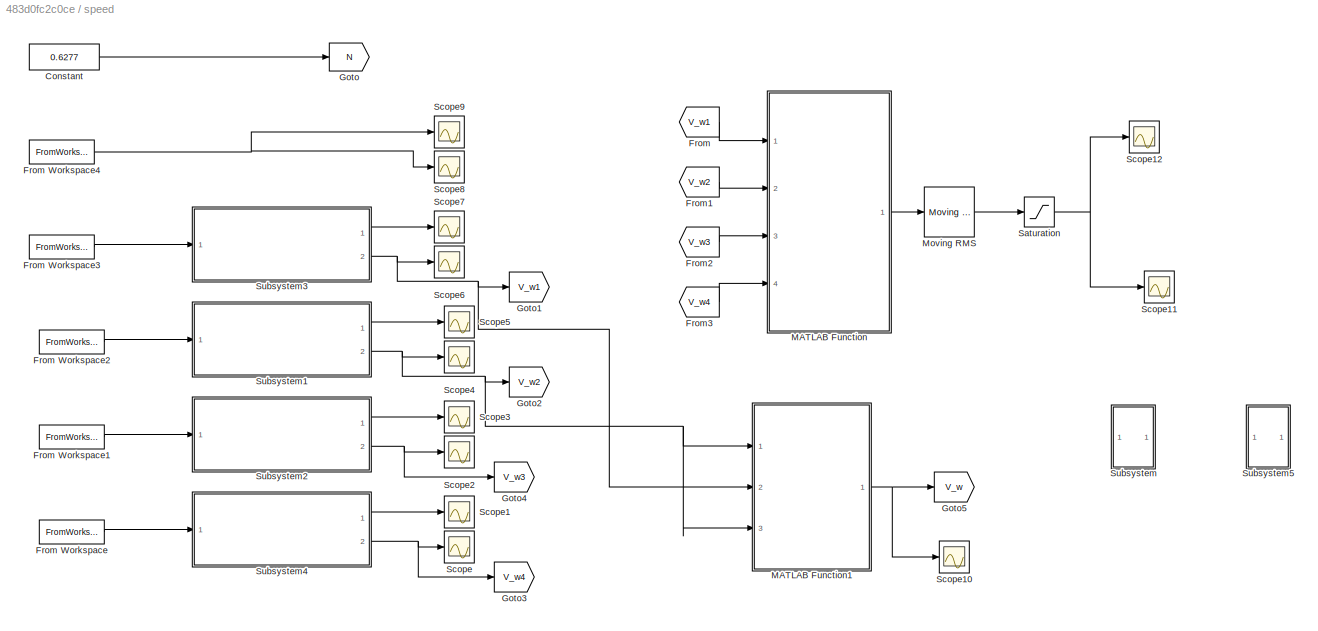
BLOCK [SubSystem] speed
  Ports = []
  RequestExecContextInheritance = off
BLOCK [Constant] speed/Constant
  Value = 0.6277
BLOCK [From] speed/From
  GotoTag = V_w1
  TagVisibility = global
BLOCK [FromWorkspace] speed/From Workspace
  SampleTime = 0
  VariableName = omega.w1t
  ZeroCross = on
BLOCK [FromWorkspace] speed/From Workspace1
  SampleTime = 0
  VariableName = omega.w2t
  ZeroCross = on
BLOCK [FromWorkspace] speed/From Workspace2
  SampleTime = 0
  VariableName = omega.w3t
  ZeroCross = on
BLOCK [FromWorkspace] speed/From Workspace3
  SampleTime = 0
  VariableName = omega.w4t
  ZeroCross = on
BLOCK [FromWorkspace] speed/From Workspace4
  SampleTime = 0
  VariableName = GPS.vt
  ZeroCross = on
BLOCK [From] speed/From1
  GotoTag = V_w2
  TagVisibility = global
BLOCK [From] speed/From2
  GotoTag = V_w3
  TagVisibility = global
BLOCK [From] speed/From3
  GotoTag = V_w4
  TagVisibility = global
BLOCK [Goto] speed/Goto
  GotoTag = N
  TagVisibility = global
BLOCK [Goto] speed/Goto1
  GotoTag = V_w1
  TagVisibility = global
BLOCK [Goto] speed/Goto2
  GotoTag = V_w2
  TagVisibility = global
BLOCK [Goto] speed/Goto3
  GotoTag = V_w4
  TagVisibility = global
BLOCK [Goto] speed/Goto4
  GotoTag = V_w3
  TagVisibility = global
BLOCK [Goto] speed/Goto5
  GotoTag = V_w
  TagVisibility = global
BLOCK [SubSystem] speed/MATLAB Function
  ErrorFcn = Stateflow.Translate.translate
  PermitHierarchicalResolution = ExplicitOnly
  Ports = [4, 1]
  RequestExecContextInheritance = off
  SFBlockType = MATLAB Function
  TreatAsAtomicUnit = on
BLOCK [Demux] speed/MATLAB Function/ Demux 
  Outputs = 1
  Ports = [1, 1]
BLOCK [S-Function] speed/MATLAB Function/ SFunction 
  EnableBusSupport = on
  FunctionName = sf_sfun
  PortCounts = [4 2]
  Ports = [4, 2]
  SFcnIsStateOwnerBlock = off
  SFunctionDeploymentMode = off
  Tag = Stateflow S-Function 9
BLOCK [Terminator] speed/MATLAB Function/ Terminator 
BLOCK [Outport] speed/MATLAB Function/D
  IconDisplay = Port number
BLOCK [Inport] speed/MATLAB Function/a
  IconDisplay = Port number
BLOCK [Inport] speed/MATLAB Function/b
  IconDisplay = Port number
  Port = 2
BLOCK [Inport] speed/MATLAB Function/c
  IconDisplay = Port number
  Port = 3
BLOCK [Inport] speed/MATLAB Function/d
  IconDisplay = Port number
  Port = 4
BLOCK [SubSystem] speed/MATLAB Function1
  ErrorFcn = Stateflow.Translate.translate
  PermitHierarchicalResolution = ExplicitOnly
  Ports = [3, 1]
  RequestExecContextInheritance = off
  SFBlockType = MATLAB Function
  TreatAsAtomicUnit = on
BLOCK [Demux] speed/MATLAB Function1/ Demux 
  Outputs = 1
  Ports = [1, 1]
BLOCK [S-Function] speed/MATLAB Function1/ SFunction 
  EnableBusSupport = on
  FunctionName = sf_sfun
  PortCounts = [3 2]
  Ports = [3, 2]
  SFcnIsStateOwnerBlock = off
  SFunctionDeploymentMode = off
  Tag = Stateflow S-Function 17
BLOCK [Terminator] speed/MATLAB Function1/ Terminator 
BLOCK [Outport] speed/MATLAB Function1/x_hat
  IconDisplay = Port number
BLOCK [Inport] speed/MATLAB Function1/z1
  IconDisplay = Port number
BLOCK [Inport] speed/MATLAB Function1/z2
  IconDisplay = Port number
  Port = 2
BLOCK [Inport] speed/MATLAB Function1/z3
  IconDisplay = Port number
  Port = 3
BLOCK [Reference] speed/Moving RMS  REF=dspstat3/Moving
RMS
  Ports = [1, 1]
  SourceBlock = dspstat3/Moving\nRMS
  SourceProductBaseCode = DS
  SourceProductName = DSP System Toolbox
  SourceType = dsp.simulink.MovingRMS
BLOCK [Saturate] speed/Saturation
  InputPortMap = u0
  LowerLimit = 0.95
  Ports = [1, 1]
  UpperLimit = 1.05
BLOCK [Scope] speed/Scope
  Floating = off
  NumInputPorts = 1
  Ports = [1]
  ScopeSpecificationString = Simulink.scopes.TimeScopeBlockCfg('CurrentConfiguration', extmgr.ConfigurationSet(extmgr.Configuration('Core','General UI',true),extmgr.Configuration('Core','Source UI',true),extmgr.Configuration('Sources','WiredSimulink',true,'DataLoggingVariableName','ScopeData2'),extmgr.Configuration('Visuals','Time Domain',true,'SerializedDisplays',{struct('MinYLimReal','3.79574','MaxYLimReal','27.17484','YLab...<+1427ch>
BLOCK [Scope] speed/Scope1
  Floating = off
  NumInputPorts = 1
  Ports = [1]
  ScopeSpecificationString = Simulink.scopes.TimeScopeBlockCfg('CurrentConfiguration', extmgr.ConfigurationSet(extmgr.Configuration('Core','General UI',true),extmgr.Configuration('Core','Source UI',true),extmgr.Configuration('Sources','WiredSimulink',true,'DataLoggingVariableName','ScopeData3'),extmgr.Configuration('Visuals','Time Domain',true,'SerializedDisplays',{struct('MinYLimReal','-1924.3021','MaxYLimReal','17318.71889'...<+1395ch>
BLOCK [Scope] speed/Scope10
  Floating = off
  NumInputPorts = 1
  Ports = [1]
  ScopeSpecificationString = Simulink.scopes.TimeScopeBlockCfg('CurrentConfiguration', extmgr.ConfigurationSet(extmgr.Configuration('Core','General UI',true),extmgr.Configuration('Core','Source UI',true),extmgr.Configuration('Sources','WiredSimulink',true,'DataLoggingVariableName','ScopeData1'),extmgr.Configuration('Visuals','Time Domain',true,'SerializedDisplays',{struct('MinYLimReal','-10.38048','MaxYLimReal','93.42432','YL...<+1406ch>
BLOCK [Scope] speed/Scope11
  Floating = off
  NumInputPorts = 1
  Ports = [1]
  ScopeSpecificationString = Simulink.scopes.TimeScopeBlockCfg('CurrentConfiguration', extmgr.ConfigurationSet(extmgr.Configuration('Core','General UI',true),extmgr.Configuration('Core','Source UI',true),extmgr.Configuration('Sources','WiredSimulink',true,'DataLoggingVariableName','ScopeData10'),extmgr.Configuration('Visuals','Time Domain',true,'SerializedDisplays',{struct('MinYLimReal','0.9375','MaxYLimReal','1.0625','YLabel...<+1406ch>
BLOCK [Scope] speed/Scope12
  Floating = off
  NumInputPorts = 1
  Ports = [1]
  ScopeSpecificationString = Simulink.scopes.TimeScopeBlockCfg('CurrentConfiguration', extmgr.ConfigurationSet(extmgr.Configuration('Core','General UI',true),extmgr.Configuration('Core','Source UI',true),extmgr.Configuration('Sources','WiredSimulink',true,'DataLoggingVariableName','ScopeData11'),extmgr.Configuration('Visuals','Time Domain',true,'SerializedDisplays',{struct('MinYLimReal','0.929','MaxYLimReal','1.11462','YLabel...<+1436ch>
BLOCK [Scope] speed/Scope2
  Floating = off
  NumInputPorts = 1
  Ports = [1]
  ScopeSpecificationString = Simulink.scopes.TimeScopeBlockCfg('CurrentConfiguration', extmgr.ConfigurationSet(extmgr.Configuration('Core','General UI',true),extmgr.Configuration('Core','Source UI',true),extmgr.Configuration('Sources','WiredSimulink',true,'DataLoggingVariableName','ScopeData1'),extmgr.Configuration('Visuals','Time Domain',true,'SerializedDisplays',{struct('MinYLimReal','-376.75101','MaxYLimReal','3390.75906',...<+1467ch>
BLOCK [Scope] speed/Scope3
  Floating = off
  NumInputPorts = 1
  Ports = [1]
  ScopeSpecificationString = Simulink.scopes.TimeScopeBlockCfg('CurrentConfiguration', extmgr.ConfigurationSet(extmgr.Configuration('Core','General UI',true),extmgr.Configuration('Core','Source UI',true),extmgr.Configuration('Sources','WiredSimulink',true,'DataLoggingVariableName','ScopeData2'),extmgr.Configuration('Visuals','Time Domain',true,'SerializedDisplays',{struct('MinYLimReal','-2910.98413','MaxYLimReal','26198.85719...<+1422ch>
BLOCK [Scope] speed/Scope4
  Floating = off
  NumInputPorts = 1
  Ports = [1]
  ScopeSpecificationString = Simulink.scopes.TimeScopeBlockCfg('CurrentConfiguration', extmgr.ConfigurationSet(extmgr.Configuration('Core','General UI',true),extmgr.Configuration('Core','Source UI',true),extmgr.Configuration('Sources','WiredSimulink',true,'DataLoggingVariableName','ScopeData3'),extmgr.Configuration('Visuals','Time Domain',true,'SerializedDisplays',{struct('MinYLimReal','-12.30354','MaxYLimReal','110.73185','Y...<+1459ch>
BLOCK [Scope] speed/Scope5
  Floating = off
  NumInputPorts = 1
  Ports = [1]
  ScopeSpecificationString = Simulink.scopes.TimeScopeBlockCfg('CurrentConfiguration', extmgr.ConfigurationSet(extmgr.Configuration('Core','General UI',true),extmgr.Configuration('Core','Source UI',true),extmgr.Configuration('Sources','WiredSimulink',true,'DataLoggingVariableName','ScopeData4'),extmgr.Configuration('Visuals','Time Domain',true,'SerializedDisplays',{struct('MinYLimReal','-91.40056','MaxYLimReal','822.60502','Y...<+1406ch>
BLOCK [Scope] speed/Scope6
  Floating = off
  NumInputPorts = 1
  Ports = [1]
  ScopeSpecificationString = Simulink.scopes.TimeScopeBlockCfg('CurrentConfiguration', extmgr.ConfigurationSet(extmgr.Configuration('Core','General UI',true),extmgr.Configuration('Core','Source UI',true),extmgr.Configuration('Sources','WiredSimulink',true,'DataLoggingVariableName','ScopeData5'),extmgr.Configuration('Visuals','Time Domain',true,'SerializedDisplays',{struct('MinYLimReal','-14.5423','MaxYLimReal','130.88074','YL...<+1457ch>
BLOCK [Scope] speed/Scope7
  Floating = off
  NumInputPorts = 1
  Ports = [1]
  ScopeSpecificationString = Simulink.scopes.TimeScopeBlockCfg('CurrentConfiguration', extmgr.ConfigurationSet(extmgr.Configuration('Core','General UI',true),extmgr.Configuration('Core','Source UI',true),extmgr.Configuration('Sources','WiredSimulink',true,'DataLoggingVariableName','ScopeData6'),extmgr.Configuration('Visuals','Time Domain',true,'SerializedDisplays',{struct('MinYLimReal','-100.54993','MaxYLimReal','904.94938','...<+1410ch>
BLOCK [Scope] speed/Scope8
  Floating = off
  NumInputPorts = 1
  Ports = [1]
  ScopeSpecificationString = Simulink.scopes.TimeScopeBlockCfg('CurrentConfiguration', extmgr.ConfigurationSet(extmgr.Configuration('Core','General UI',true),extmgr.Configuration('Core','Source UI',true),extmgr.Configuration('Sources','WiredSimulink',true,'DataLoggingVariableName','ScopeData7'),extmgr.Configuration('Visuals','Time Domain',true,'SerializedDisplays',{struct('MinYLimReal','-11.2','MaxYLimReal','100.8','YLabelRea...<+1408ch>
BLOCK [Scope] speed/Scope9
  Floating = off
  NumInputPorts = 1
  Ports = [1]
  ScopeSpecificationString = Simulink.scopes.TimeScopeBlockCfg('CurrentConfiguration', extmgr.ConfigurationSet(extmgr.Configuration('Core','General UI',true),extmgr.Configuration('Core','Source UI',true),extmgr.Configuration('Sources','WiredSimulink',true,'DataLoggingVariableName','ScopeData8'),extmgr.Configuration('Visuals','Time Domain',true),extmgr.Configuration('Tools','Plot Navigation',true),extmgr.Configuration('Tools',...<+40ch>
BLOCK [SubSystem] speed/Subsystem
  Ports = []
  RequestExecContextInheritance = off
BLOCK [From] speed/Subsystem/From4
  GotoTag = V_w1
  TagVisibility = global
BLOCK [From] speed/Subsystem/From5
  GotoTag = V_w2
  TagVisibility = global
BLOCK [From] speed/Subsystem/From6
  GotoTag = V_w3
  TagVisibility = global
BLOCK [From] speed/Subsystem/From7
  GotoTag = V_w4
  TagVisibility = global
BLOCK [Mux] speed/Subsystem/Mux
  DisplayOption = bar
  Ports = [4, 1]
BLOCK [Scope] speed/Subsystem/Scope10
  Floating = off
  NumInputPorts = 1
  Ports = [1]
  ScopeSpecificationString = Simulink.scopes.TimeScopeBlockCfg('CurrentConfiguration', extmgr.ConfigurationSet(extmgr.Configuration('Core','General UI',true),extmgr.Configuration('Core','Source UI',true),extmgr.Configuration('Sources','WiredSimulink',true,'DataLoggingVariableName','ScopeData1'),extmgr.Configuration('Visuals','Time Domain',true,'SerializedDisplays',{struct('MinYLimReal','-234.98149','MaxYLimReal','2114.8334','...<+1567ch>
BLOCK [ToWorkspace] speed/Subsystem/To Workspace
  FixptAsFi = on
  MaxDataPoints = inf
  Ports = [1]
  SampleTime = -1
  SaveFormat = Timeseries
  VariableName = V_W
BLOCK [SubSystem] speed/Subsystem1
  Ports = [1, 2]
  RequestExecContextInheritance = off
BLOCK [Constant] speed/Subsystem1/Constant1
  Value = 0.145
BLOCK [Derivative] speed/Subsystem1/Derivative
BLOCK [From] speed/Subsystem1/From
  GotoTag = N
  TagVisibility = global
BLOCK [Reference] speed/Subsystem1/Low-Pass Filter (Discrete or Continuous)  REF=eeGeneralControl/Low-Pass Filter
(Discrete or Continuous)
  Ports = [1, 1]
  SourceBlock = eeGeneralControl/Low-Pass Filter\n(Discrete or Continuous)
  SourceProductBaseCode = PS
  SourceProductName = Simscape Electrical
  SourceType = Low-Pass Filter (Discrete or Continuous)
BLOCK [Reference] speed/Subsystem1/Low-Pass Filter (Discrete or Continuous)1  REF=eeGeneralControl/Low-Pass Filter
(Discrete or Continuous)
  Ports = [1, 1]
  SourceBlock = eeGeneralControl/Low-Pass Filter\n(Discrete or Continuous)
  SourceProductBaseCode = PS
  SourceProductName = Simscape Electrical
  SourceType = Low-Pass Filter (Discrete or Continuous)
BLOCK [SubSystem] speed/Subsystem1/MATLAB Function
  ErrorFcn = Stateflow.Translate.translate
  PermitHierarchicalResolution = ExplicitOnly
  Ports = [3, 3]
  RequestExecContextInheritance = off
  SFBlockType = MATLAB Function
  TreatAsAtomicUnit = on
BLOCK [Demux] speed/Subsystem1/MATLAB Function/ Demux 
  Outputs = 1
  Ports = [1, 1]
BLOCK [S-Function] speed/Subsystem1/MATLAB Function/ SFunction 
  EnableBusSupport = on
  FunctionName = sf_sfun
  PortCounts = [3 4]
  Ports = [3, 4]
  SFcnIsStateOwnerBlock = off
  SFunctionDeploymentMode = off
  Tag = Stateflow S-Function 1
BLOCK [Terminator] speed/Subsystem1/MATLAB Function/ Terminator 
BLOCK [Outport] speed/Subsystem1/MATLAB Function/con
  IconDisplay = Port number
BLOCK [Inport] speed/Subsystem1/MATLAB Function/n
  IconDisplay = Port number
  Port = 3
BLOCK [Outport] speed/Subsystem1/MATLAB Function/nn
  IconDisplay = Port number
  Port = 3
BLOCK [Inport] speed/Subsystem1/MATLAB Function/pulse
  IconDisplay = Port number
BLOCK [Inport] speed/Subsystem1/MATLAB Function/pulse_old
  IconDisplay = Port number
  Port = 2
BLOCK [Outport] speed/Subsystem1/MATLAB Function/pulsen
  IconDisplay = Port number
  Port = 2
BLOCK [SubSystem] speed/Subsystem1/MATLAB Function1
  ErrorFcn = Stateflow.Translate.translate
  PermitHierarchicalResolution = ExplicitOnly
  Ports = [3, 1]
  RequestExecContextInheritance = off
  SFBlockType = MATLAB Function
  TreatAsAtomicUnit = on
BLOCK [Demux] speed/Subsystem1/MATLAB Function1/ Demux 
  Outputs = 1
  Ports = [1, 1]
BLOCK [S-Function] speed/Subsystem1/MATLAB Function1/ SFunction 
  EnableBusSupport = on
  FunctionName = sf_sfun
  PortCounts = [3 2]
  Ports = [3, 2]
  SFcnIsStateOwnerBlock = off
  SFunctionDeploymentMode = off
  Tag = Stateflow S-Function 2
BLOCK [Terminator] speed/Subsystem1/MATLAB Function1/ Terminator 
BLOCK [Inport] speed/Subsystem1/MATLAB Function1/R
  IconDisplay = Port number
  Port = 3
BLOCK [Inport] speed/Subsystem1/MATLAB Function1/n
  IconDisplay = Port number
BLOCK [Inport] speed/Subsystem1/MATLAB Function1/pulse_per_second
  IconDisplay = Port number
  Port = 2
BLOCK [Outport] speed/Subsystem1/MATLAB Function1/velocity
  IconDisplay = Port number
BLOCK [Memory] speed/Subsystem1/Memory
BLOCK [Memory] speed/Subsystem1/Memory1
BLOCK [Inport] speed/Subsystem1/Pulse
  IconDisplay = Port number
BLOCK [Scope] speed/Subsystem1/Scope
  Floating = off
  NumInputPorts = 1
  Ports = [1]
  ScopeSpecificationString = Simulink.scopes.TimeScopeBlockCfg('CurrentConfiguration', extmgr.ConfigurationSet(extmgr.Configuration('Core','General UI',true),extmgr.Configuration('Core','Source UI',true),extmgr.Configuration('Sources','WiredSimulink',true),extmgr.Configuration('Visuals','Time Domain',true,'SerializedDisplays',{struct('MinYLimReal','-31.875','MaxYLimReal','286.875','YLabelReal','','MinYLimMag','0.00000','MaxYL...<+1348ch>
BLOCK [Scope] speed/Subsystem1/Scope1
  Floating = off
  NumInputPorts = 1
  Ports = [1]
  ScopeSpecificationString = Simulink.scopes.TimeScopeBlockCfg('CurrentConfiguration', extmgr.ConfigurationSet(extmgr.Configuration('Core','General UI',true),extmgr.Configuration('Core','Source UI',true),extmgr.Configuration('Sources','WiredSimulink',true,'DataLoggingVariableName','ScopeData1'),extmgr.Configuration('Visuals','Time Domain',true,'SerializedDisplays',{struct('MinYLimReal','-29.13224','MaxYLimReal','262.19012','Y...<+1462ch>
BLOCK [Scope] speed/Subsystem1/Scope2
  Floating = off
  NumInputPorts = 2
  Ports = [2]
  ScopeSpecificationString = Simulink.scopes.TimeScopeBlockCfg('CurrentConfiguration', extmgr.ConfigurationSet(extmgr.Configuration('Core','General UI',true),extmgr.Configuration('Core','Source UI',true),extmgr.Configuration('Sources','WiredSimulink',true,'DataLoggingVariableName','ScopeData1'),extmgr.Configuration('Visuals','Time Domain',true,'SerializedDisplays',{struct('MinYLimReal','-41.64128','MaxYLimReal','374.77156','Y...<+1475ch>  <repeated x3 — deduplicated; at blocks: Scope2>
BLOCK [Scope] speed/Subsystem1/Scope3
  Floating = off
  NumInputPorts = 2
  Ports = [2]
  ScopeSpecificationString = Simulink.scopes.TimeScopeBlockCfg('CurrentConfiguration', extmgr.ConfigurationSet(extmgr.Configuration('Core','General UI',true),extmgr.Configuration('Core','Source UI',true),extmgr.Configuration('Sources','WiredSimulink',true,'DataLoggingVariableName','ScopeData2'),extmgr.Configuration('Visuals','Time Domain',true,'SerializedDisplays',{struct('MinYLimReal','-870.75','MaxYLimReal','9196.75','YLabe...<+1473ch>  <repeated x3 — deduplicated; at blocks: Scope3>
BLOCK [Outport] speed/Subsystem1/pulse_per_second
  IconDisplay = Port number
BLOCK [Outport] speed/Subsystem1/velocity
  IconDisplay = Port number
  Port = 2
BLOCK [SubSystem] speed/Subsystem2
  Ports = [1, 2]
  RequestExecContextInheritance = off
BLOCK [Constant] speed/Subsystem2/Constant1
  Value = 0.145
BLOCK [Derivative] speed/Subsystem2/Derivative
BLOCK [From] speed/Subsystem2/From
  GotoTag = N
  TagVisibility = global
BLOCK [Reference] speed/Subsystem2/Low-Pass Filter (Discrete or Continuous)  REF=eeGeneralControl/Low-Pass Filter
(Discrete or Continuous)
  Ports = [1, 1]
  SourceBlock = eeGeneralControl/Low-Pass Filter\n(Discrete or Continuous)
  SourceProductBaseCode = PS
  SourceProductName = Simscape Electrical
  SourceType = Low-Pass Filter (Discrete or Continuous)
BLOCK [Reference] speed/Subsystem2/Low-Pass Filter (Discrete or Continuous)1  REF=eeGeneralControl/Low-Pass Filter
(Discrete or Continuous)
  Ports = [1, 1]
  SourceBlock = eeGeneralControl/Low-Pass Filter\n(Discrete or Continuous)
  SourceProductBaseCode = PS
  SourceProductName = Simscape Electrical
  SourceType = Low-Pass Filter (Discrete or Continuous)
BLOCK [SubSystem] speed/Subsystem2/MATLAB Function
  ErrorFcn = Stateflow.Translate.translate
  PermitHierarchicalResolution = ExplicitOnly
  Ports = [3, 3]
  RequestExecContextInheritance = off
  SFBlockType = MATLAB Function
  TreatAsAtomicUnit = on
BLOCK [Demux] speed/Subsystem2/MATLAB Function/ Demux 
  Outputs = 1
  Ports = [1, 1]
BLOCK [S-Function] speed/Subsystem2/MATLAB Function/ SFunction 
  EnableBusSupport = on
  FunctionName = sf_sfun
  PortCounts = [3 4]
  Ports = [3, 4]
  SFcnIsStateOwnerBlock = off
  SFunctionDeploymentMode = off
  Tag = Stateflow S-Function 3
BLOCK [Terminator] speed/Subsystem2/MATLAB Function/ Terminator 
BLOCK [Outport] speed/Subsystem2/MATLAB Function/con
  IconDisplay = Port number
BLOCK [Inport] speed/Subsystem2/MATLAB Function/n
  IconDisplay = Port number
  Port = 3
BLOCK [Outport] speed/Subsystem2/MATLAB Function/nn
  IconDisplay = Port number
  Port = 3
BLOCK [Inport] speed/Subsystem2/MATLAB Function/pulse
  IconDisplay = Port number
BLOCK [Inport] speed/Subsystem2/MATLAB Function/pulse_old
  IconDisplay = Port number
  Port = 2
BLOCK [Outport] speed/Subsystem2/MATLAB Function/pulsen
  IconDisplay = Port number
  Port = 2
BLOCK [SubSystem] speed/Subsystem2/MATLAB Function1
  ErrorFcn = Stateflow.Translate.translate
  PermitHierarchicalResolution = ExplicitOnly
  Ports = [3, 1]
  RequestExecContextInheritance = off
  SFBlockType = MATLAB Function
  TreatAsAtomicUnit = on
BLOCK [Demux] speed/Subsystem2/MATLAB Function1/ Demux 
  Outputs = 1
  Ports = [1, 1]
BLOCK [S-Function] speed/Subsystem2/MATLAB Function1/ SFunction 
  EnableBusSupport = on
  FunctionName = sf_sfun
  PortCounts = [3 2]
  Ports = [3, 2]
  SFcnIsStateOwnerBlock = off
  SFunctionDeploymentMode = off
  Tag = Stateflow S-Function 4
BLOCK [Terminator] speed/Subsystem2/MATLAB Function1/ Terminator 
BLOCK [Inport] speed/Subsystem2/MATLAB Function1/R
  IconDisplay = Port number
  Port = 3
BLOCK [Inport] speed/Subsystem2/MATLAB Function1/n
  IconDisplay = Port number
BLOCK [Inport] speed/Subsystem2/MATLAB Function1/pulse_per_second
  IconDisplay = Port number
  Port = 2
BLOCK [Outport] speed/Subsystem2/MATLAB Function1/velocity
  IconDisplay = Port number
BLOCK [Memory] speed/Subsystem2/Memory
BLOCK [Memory] speed/Subsystem2/Memory1
BLOCK [Inport] speed/Subsystem2/Pulse
  IconDisplay = Port number
BLOCK [Scope] speed/Subsystem2/Scope
  Floating = off
  NumInputPorts = 1
  Ports = [1]
  ScopeSpecificationString = Simulink.scopes.TimeScopeBlockCfg('CurrentConfiguration', extmgr.ConfigurationSet(extmgr.Configuration('Core','General UI',true),extmgr.Configuration('Core','Source UI',true),extmgr.Configuration('Sources','WiredSimulink',true),extmgr.Configuration('Visuals','Time Domain',true,'SerializedDisplays',{struct('MinYLimReal','-31.875','MaxYLimReal','286.875','YLabelReal','','MinYLimMag','0.00000','MaxYL...<+1348ch>
BLOCK [Scope] speed/Subsystem2/Scope1
  Floating = off
  NumInputPorts = 1
  Ports = [1]
  ScopeSpecificationString = Simulink.scopes.TimeScopeBlockCfg('CurrentConfiguration', extmgr.ConfigurationSet(extmgr.Configuration('Core','General UI',true),extmgr.Configuration('Core','Source UI',true),extmgr.Configuration('Sources','WiredSimulink',true,'DataLoggingVariableName','ScopeData1'),extmgr.Configuration('Visuals','Time Domain',true,'SerializedDisplays',{struct('MinYLimReal','-29.06588','MaxYLimReal','261.5929','YL...<+1458ch>
BLOCK [Scope] speed/Subsystem2/Scope2
  Floating = off
  NumInputPorts = 2
  Ports = [2]
BLOCK [Scope] speed/Subsystem2/Scope3
  Floating = off
  NumInputPorts = 2
  Ports = [2]
BLOCK [Outport] speed/Subsystem2/pulse_per_second
  IconDisplay = Port number
BLOCK [Outport] speed/Subsystem2/velocity
  IconDisplay = Port number
  Port = 2
BLOCK [SubSystem] speed/Subsystem3
  Ports = [1, 2]
  RequestExecContextInheritance = off
BLOCK [Constant] speed/Subsystem3/Constant1
  Value = 0.145
BLOCK [Derivative] speed/Subsystem3/Derivative
BLOCK [From] speed/Subsystem3/From
  GotoTag = N
  TagVisibility = global
BLOCK [Reference] speed/Subsystem3/Low-Pass Filter (Discrete or Continuous)  REF=eeGeneralControl/Low-Pass Filter
(Discrete or Continuous)
  Ports = [1, 1]
  SourceBlock = eeGeneralControl/Low-Pass Filter\n(Discrete or Continuous)
  SourceProductBaseCode = PS
  SourceProductName = Simscape Electrical
  SourceType = Low-Pass Filter (Discrete or Continuous)
BLOCK [Reference] speed/Subsystem3/Low-Pass Filter (Discrete or Continuous)1  REF=eeGeneralControl/Low-Pass Filter
(Discrete or Continuous)
  Ports = [1, 1]
  SourceBlock = eeGeneralControl/Low-Pass Filter\n(Discrete or Continuous)
  SourceProductBaseCode = PS
  SourceProductName = Simscape Electrical
  SourceType = Low-Pass Filter (Discrete or Continuous)
BLOCK [SubSystem] speed/Subsystem3/MATLAB Function
  ErrorFcn = Stateflow.Translate.translate
  PermitHierarchicalResolution = ExplicitOnly
  Ports = [3, 3]
  RequestExecContextInheritance = off
  SFBlockType = MATLAB Function
  TreatAsAtomicUnit = on
BLOCK [Demux] speed/Subsystem3/MATLAB Function/ Demux 
  Outputs = 1
  Ports = [1, 1]
BLOCK [S-Function] speed/Subsystem3/MATLAB Function/ SFunction 
  EnableBusSupport = on
  FunctionName = sf_sfun
  PortCounts = [3 4]
  Ports = [3, 4]
  SFcnIsStateOwnerBlock = off
  SFunctionDeploymentMode = off
  Tag = Stateflow S-Function 7
BLOCK [Terminator] speed/Subsystem3/MATLAB Function/ Terminator 
BLOCK [Outport] speed/Subsystem3/MATLAB Function/con
  IconDisplay = Port number
BLOCK [Inport] speed/Subsystem3/MATLAB Function/n
  IconDisplay = Port number
  Port = 3
BLOCK [Outport] speed/Subsystem3/MATLAB Function/nn
  IconDisplay = Port number
  Port = 3
BLOCK [Inport] speed/Subsystem3/MATLAB Function/pulse
  IconDisplay = Port number
BLOCK [Inport] speed/Subsystem3/MATLAB Function/pulse_old
  IconDisplay = Port number
  Port = 2
BLOCK [Outport] speed/Subsystem3/MATLAB Function/pulsen
  IconDisplay = Port number
  Port = 2
BLOCK [SubSystem] speed/Subsystem3/MATLAB Function1
  ErrorFcn = Stateflow.Translate.translate
  PermitHierarchicalResolution = ExplicitOnly
  Ports = [3, 1]
  RequestExecContextInheritance = off
  SFBlockType = MATLAB Function
  TreatAsAtomicUnit = on
BLOCK [Demux] speed/Subsystem3/MATLAB Function1/ Demux 
  Outputs = 1
  Ports = [1, 1]
BLOCK [S-Function] speed/Subsystem3/MATLAB Function1/ SFunction 
  EnableBusSupport = on
  FunctionName = sf_sfun
  PortCounts = [3 2]
  Ports = [3, 2]
  SFcnIsStateOwnerBlock = off
  SFunctionDeploymentMode = off
  Tag = Stateflow S-Function 8
BLOCK [Terminator] speed/Subsystem3/MATLAB Function1/ Terminator 
BLOCK [Inport] speed/Subsystem3/MATLAB Function1/R
  IconDisplay = Port number
  Port = 3
BLOCK [Inport] speed/Subsystem3/MATLAB Function1/n
  IconDisplay = Port number
BLOCK [Inport] speed/Subsystem3/MATLAB Function1/pulse_per_second
  IconDisplay = Port number
  Port = 2
BLOCK [Outport] speed/Subsystem3/MATLAB Function1/velocity
  IconDisplay = Port number
BLOCK [Memory] speed/Subsystem3/Memory
BLOCK [Memory] speed/Subsystem3/Memory1
BLOCK [Inport] speed/Subsystem3/Pulse
  IconDisplay = Port number
BLOCK [Scope] speed/Subsystem3/Scope
  Floating = off
  NumInputPorts = 1
  Ports = [1]
  ScopeSpecificationString = Simulink.scopes.TimeScopeBlockCfg('CurrentConfiguration', extmgr.ConfigurationSet(extmgr.Configuration('Core','General UI',true),extmgr.Configuration('Core','Source UI',true),extmgr.Configuration('Sources','WiredSimulink',true),extmgr.Configuration('Visuals','Time Domain',true,'SerializedDisplays',{struct('MinYLimReal','-31.875','MaxYLimReal','286.875','YLabelReal','','MinYLimMag','0.00000','MaxYL...<+1375ch>
BLOCK [Scope] speed/Subsystem3/Scope1
  Floating = off
  NumInputPorts = 1
  Ports = [1]
  ScopeSpecificationString = Simulink.scopes.TimeScopeBlockCfg('CurrentConfiguration', extmgr.ConfigurationSet(extmgr.Configuration('Core','General UI',true),extmgr.Configuration('Core','Source UI',true),extmgr.Configuration('Sources','WiredSimulink',true,'DataLoggingVariableName','ScopeData1'),extmgr.Configuration('Visuals','Time Domain',true,'SerializedDisplays',{struct('MinYLimReal','-54.67964','MaxYLimReal','492.1168','YL...<+1477ch>
BLOCK [Scope] speed/Subsystem3/Scope2
  Floating = off
  NumInputPorts = 2
  Ports = [2]
  ScopeSpecificationString = Simulink.scopes.TimeScopeBlockCfg('CurrentConfiguration', extmgr.ConfigurationSet(extmgr.Configuration('Core','General UI',true),extmgr.Configuration('Core','Source UI',true),extmgr.Configuration('Sources','WiredSimulink',true,'DataLoggingVariableName','ScopeData1'),extmgr.Configuration('Visuals','Time Domain',true,'SerializedDisplays',{struct('MinYLimReal','-1.00000','MaxYLimReal','1.00000','YLab...<+1465ch>
BLOCK [Scope] speed/Subsystem3/Scope3
  Floating = off
  NumInputPorts = 2
  Ports = [2]
  ScopeSpecificationString = Simulink.scopes.TimeScopeBlockCfg('CurrentConfiguration', extmgr.ConfigurationSet(extmgr.Configuration('Core','General UI',true),extmgr.Configuration('Core','Source UI',true),extmgr.Configuration('Sources','WiredSimulink',true,'DataLoggingVariableName','ScopeData2'),extmgr.Configuration('Visuals','Time Domain',true,'SerializedDisplays',{struct('MinYLimReal','23.00000','MaxYLimReal','43.00000','YLa...<+1479ch>
BLOCK [Outport] speed/Subsystem3/pulse_per_second
  IconDisplay = Port number
BLOCK [Outport] speed/Subsystem3/velocity
  IconDisplay = Port number
  Port = 2
BLOCK [SubSystem] speed/Subsystem4
  Ports = [1, 2]
  RequestExecContextInheritance = off
BLOCK [Constant] speed/Subsystem4/Constant1
  Value = 0.145
BLOCK [Derivative] speed/Subsystem4/Derivative
BLOCK [From] speed/Subsystem4/From
  GotoTag = N
  TagVisibility = global
BLOCK [Reference] speed/Subsystem4/Low-Pass Filter (Discrete or Continuous)  REF=eeGeneralControl/Low-Pass Filter
(Discrete or Continuous)
  Ports = [1, 1]
  SourceBlock = eeGeneralControl/Low-Pass Filter\n(Discrete or Continuous)
  SourceProductBaseCode = PS
  SourceProductName = Simscape Electrical
  SourceType = Low-Pass Filter (Discrete or Continuous)
BLOCK [Reference] speed/Subsystem4/Low-Pass Filter (Discrete or Continuous)1  REF=eeGeneralControl/Low-Pass Filter
(Discrete or Continuous)
  Ports = [1, 1]
  SourceBlock = eeGeneralControl/Low-Pass Filter\n(Discrete or Continuous)
  SourceProductBaseCode = PS
  SourceProductName = Simscape Electrical
  SourceType = Low-Pass Filter (Discrete or Continuous)
BLOCK [SubSystem] speed/Subsystem4/MATLAB Function
  ErrorFcn = Stateflow.Translate.translate
  PermitHierarchicalResolution = ExplicitOnly
  Ports = [3, 3]
  RequestExecContextInheritance = off
  SFBlockType = MATLAB Function
  TreatAsAtomicUnit = on
BLOCK [Demux] speed/Subsystem4/MATLAB Function/ Demux 
  Outputs = 1
  Ports = [1, 1]
BLOCK [S-Function] speed/Subsystem4/MATLAB Function/ SFunction 
  EnableBusSupport = on
  FunctionName = sf_sfun
  PortCounts = [3 4]
  Ports = [3, 4]
  SFcnIsStateOwnerBlock = off
  SFunctionDeploymentMode = off
  Tag = Stateflow S-Function 5
BLOCK [Terminator] speed/Subsystem4/MATLAB Function/ Terminator 
BLOCK [Outport] speed/Subsystem4/MATLAB Function/con
  IconDisplay = Port number
BLOCK [Inport] speed/Subsystem4/MATLAB Function/n
  IconDisplay = Port number
  Port = 3
BLOCK [Outport] speed/Subsystem4/MATLAB Function/nn
  IconDisplay = Port number
  Port = 3
BLOCK [Inport] speed/Subsystem4/MATLAB Function/pulse
  IconDisplay = Port number
BLOCK [Inport] speed/Subsystem4/MATLAB Function/pulse_old
  IconDisplay = Port number
  Port = 2
BLOCK [Outport] speed/Subsystem4/MATLAB Function/pulsen
  IconDisplay = Port number
  Port = 2
BLOCK [SubSystem] speed/Subsystem4/MATLAB Function1
  ErrorFcn = Stateflow.Translate.translate
  PermitHierarchicalResolution = ExplicitOnly
  Ports = [3, 1]
  RequestExecContextInheritance = off
  SFBlockType = MATLAB Function
  TreatAsAtomicUnit = on
BLOCK [Demux] speed/Subsystem4/MATLAB Function1/ Demux 
  Outputs = 1
  Ports = [1, 1]
BLOCK [S-Function] speed/Subsystem4/MATLAB Function1/ SFunction 
  EnableBusSupport = on
  FunctionName = sf_sfun
  PortCounts = [3 2]
  Ports = [3, 2]
  SFcnIsStateOwnerBlock = off
  SFunctionDeploymentMode = off
  Tag = Stateflow S-Function 6
BLOCK [Terminator] speed/Subsystem4/MATLAB Function1/ Terminator 
BLOCK [Inport] speed/Subsystem4/MATLAB Function1/R
  IconDisplay = Port number
  Port = 3
BLOCK [Inport] speed/Subsystem4/MATLAB Function1/n
  IconDisplay = Port number
BLOCK [Inport] speed/Subsystem4/MATLAB Function1/pulse_per_second
  IconDisplay = Port number
  Port = 2
BLOCK [Outport] speed/Subsystem4/MATLAB Function1/velocity
  IconDisplay = Port number
BLOCK [Memory] speed/Subsystem4/Memory
BLOCK [Memory] speed/Subsystem4/Memory1
BLOCK [Inport] speed/Subsystem4/Pulse
  IconDisplay = Port number
BLOCK [Scope] speed/Subsystem4/Scope
  Floating = off
  NumInputPorts = 1
  Ports = [1]
  ScopeSpecificationString = Simulink.scopes.TimeScopeBlockCfg('CurrentConfiguration', extmgr.ConfigurationSet(extmgr.Configuration('Core','General UI',true),extmgr.Configuration('Core','Source UI',true),extmgr.Configuration('Sources','WiredSimulink',true),extmgr.Configuration('Visuals','Time Domain',true,'SerializedDisplays',{struct('MinYLimReal','36.375','MaxYLimReal','52.625','YLabelReal','','MinYLimMag','36.375','MaxYLimM...<+1315ch>
BLOCK [Scope] speed/Subsystem4/Scope1
  Floating = off
  NumInputPorts = 1
  Ports = [1]
  ScopeSpecificationString = Simulink.scopes.TimeScopeBlockCfg('CurrentConfiguration', extmgr.ConfigurationSet(extmgr.Configuration('Core','General UI',true),extmgr.Configuration('Core','Source UI',true),extmgr.Configuration('Sources','WiredSimulink',true,'DataLoggingVariableName','ScopeData1'),extmgr.Configuration('Visuals','Time Domain',true,'SerializedDisplays',{struct('MinYLimReal','-29.17693','MaxYLimReal','262.59234','Y...<+1462ch>
BLOCK [Scope] speed/Subsystem4/Scope2
  Floating = off
  NumInputPorts = 2
  Ports = [2]
BLOCK [Scope] speed/Subsystem4/Scope3
  Floating = off
  NumInputPorts = 2
  Ports = [2]
BLOCK [Outport] speed/Subsystem4/pulse_per_second
  IconDisplay = Port number
BLOCK [Outport] speed/Subsystem4/velocity
  IconDisplay = Port number
  Port = 2
BLOCK [SubSystem] speed/Subsystem5
  Ports = []
  RequestExecContextInheritance = off
BLOCK [From] speed/Subsystem5/From4
  GotoTag = V_w1
  TagVisibility = global
BLOCK [From] speed/Subsystem5/From5
  GotoTag = V_w2
  TagVisibility = global
BLOCK [From] speed/Subsystem5/From6
  GotoTag = V_w3
  TagVisibility = global
BLOCK [From] speed/Subsystem5/From7
  GotoTag = V_w4
  TagVisibility = global
BLOCK [Reference] speed/Subsystem5/Moving Average  REF=dspstat3/Moving
Average
  Ports = [1, 1]
  SourceBlock = dspstat3/Moving\nAverage
  SourceProductBaseCode = DS
  SourceProductName = DSP System Toolbox
  SourceType = dsp.simulink.MovingAverage
BLOCK [Reference] speed/Subsystem5/Moving Average1  REF=dspstat3/Moving
Average
  Ports = [1, 1]
  SourceBlock = dspstat3/Moving\nAverage
  SourceProductBaseCode = DS
  SourceProductName = DSP System Toolbox
  SourceType = dsp.simulink.MovingAverage
BLOCK [Reference] speed/Subsystem5/Moving Average2  REF=dspstat3/Moving
Average
  Ports = [1, 1]
  SourceBlock = dspstat3/Moving\nAverage
  SourceProductBaseCode = DS
  SourceProductName = DSP System Toolbox
  SourceType = dsp.simulink.MovingAverage
BLOCK [Reference] speed/Subsystem5/Moving Average3  REF=dspstat3/Moving
Average
  Ports = [1, 1]
  SourceBlock = dspstat3/Moving\nAverage
  SourceProductBaseCode = DS
  SourceProductName = DSP System Toolbox
  SourceType = dsp.simulink.MovingAverage
BLOCK [Mux] speed/Subsystem5/Mux
  DisplayOption = bar
  Ports = [4, 1]
BLOCK [Scope] speed/Subsystem5/Scope10
  Floating = off
  NumInputPorts = 1
  Ports = [1]
  ScopeSpecificationString = Simulink.scopes.TimeScopeBlockCfg('CurrentConfiguration', extmgr.ConfigurationSet(extmgr.Configuration('Core','General UI',true),extmgr.Configuration('Core','Source UI',true),extmgr.Configuration('Sources','WiredSimulink',true,'DataLoggingVariableName','ScopeData1'),extmgr.Configuration('Visuals','Time Domain',true,'SerializedDisplays',{struct('MinYLimReal','-289.40103','MaxYLimReal','2604.6093','...<+1637ch>
BLOCK [ToWorkspace] speed/Subsystem5/To Workspace
  FixptAsFi = on
  MaxDataPoints = inf
  Ports = [1]
  SampleTime = -1
  SaveFormat = Timeseries
  VariableName = V_Wp
NET Constant:1 -> Sum1:2, Sum:2
LINE Divide:1 -> Mu:1
LINE From10:1 -> Lowpass Filter1:1
LINE From1:1 -> Mux:2
LINE From2:1 -> Mux:3
LINE From3:1 -> Scope1:2
LINE From4:1 -> Gain3:1
LINE From5:1 -> MATLAB Function:1
LINE From6:1 -> MATLAB Function:3
LINE From7:1 -> MATLAB Function:2
NET From8:1 -> Scope4:2, Sum:1
LINE From9:1 -> Lowpass Filter2:1
LINE From:1 -> Mux:1
LINE Gain1:1 -> Scope2:1
LINE Gain3:1 -> Scope1:1
LINE Gain:1 -> Scope2:2
LINE Gyro RMS/From6:1 -> Gyro RMS/Moving RMS:1
LINE Gyro RMS/From7:1 -> Gyro RMS/Moving RMS2:1
LINE Gyro RMS/From8:1 -> Gyro RMS/Moving RMS1:1
LINE Gyro RMS/Moving RMS1:1 -> Gyro RMS/Mux2:3
LINE Gyro RMS/Moving RMS2:1 -> Gyro RMS/Mux2:2
LINE Gyro RMS/Moving RMS:1 -> Gyro RMS/Mux2:1
NET Gyro RMS/Mux2:1 -> Gyro RMS/Scope2:1, Gyro RMS/To Workspace2:1
LINE Longitudinal Force Est./Constant1:1 -> Longitudinal Force Est./MATLAB Function1:3
LINE Longitudinal Force Est./Constant:1 -> Longitudinal Force Est./MATLAB Function:3
LINE Longitudinal Force Est./From1:1 -> Longitudinal Force Est./MATLAB Function:2
LINE Longitudinal Force Est./From2:1 -> Longitudinal Force Est./MATLAB Function1:1
LINE Longitudinal Force Est./From3:1 -> Longitudinal Force Est./MATLAB Function1:2
LINE Longitudinal Force Est./From:1 -> Longitudinal Force Est./MATLAB Function:1
LINE Longitudinal Force Est./MATLAB Function1:1 -> Longitudinal Force Est./Scope2:2
NET Longitudinal Force Est./MATLAB Function:1 -> Longitudinal Force Est./Fx:1, Longitudinal Force Est./Scope2:1
NET Longitudinal Force Est.:1 -> Divide:1, To Workspace1:1
NET Lowpass Filter1:1 -> MATLAB Function1:3, Scope5:2
NET Lowpass Filter2:1 -> MATLAB Function1:2, Scope3:1, Scope5:3
LINE Lowpass Filter:1 -> Moving Average1:1
NET MATLAB Function1:1 -> Memory:1, Moving Average:1
LINE MATLAB Function1:2 -> Scope6:1
LINE MATLAB Function2:1 -> MATLAB Function1:1
NET MATLAB Function:1 -> Display:1, Gain1:1, Goto:1
NET MATLAB Function:2 -> Display1:1, Gain:1, Goto1:1
LINE Memory:1 -> MATLAB Function1:5
NET Moving Average1:1 -> Moving RMS:1, Sum1:1
NET Moving Average:1 -> Display2:1, Scope7:1, To Workspace:1
LINE Moving RMS:1 -> Scope8:2
LINE Mux:1 -> Scope:1
LINE Normal Force Est./Constant1:1 -> Normal Force Est./MATLAB Function1:3
LINE Normal Force Est./Constant:1 -> Normal Force Est./MATLAB Function:3
LINE Normal Force Est./From1:1 -> Normal Force Est./MATLAB Function:2
LINE Normal Force Est./From2:1 -> Normal Force Est./MATLAB Function1:1
LINE Normal Force Est./From3:1 -> Normal Force Est./MATLAB Function1:2
LINE Normal Force Est./From:1 -> Normal Force Est./MATLAB Function:1
LINE Normal Force Est./MATLAB Function1:1 -> Normal Force Est./Scope2:3
LINE Normal Force Est./MATLAB Function1:2 -> Normal Force Est./Scope2:4
NET Normal Force Est./MATLAB Function:1 -> Normal Force Est./Fzf:1, Normal Force Est./Scope2:1
LINE Normal Force Est./MATLAB Function:2 -> Normal Force Est./Scope2:2
NET Normal Force Est.:1 -> Divide:2, To Workspace2:1
LINE Out Acc Gyro/From1:1 -> Out Acc Gyro/LPF2:1
NET Out Acc Gyro/From2:1 -> Out Acc Gyro/LPF1:1, Out Acc Gyro/LPF:1
LINE Out Acc Gyro/From3:1 -> Out Acc Gyro/Moving Average2:1
LINE Out Acc Gyro/From4:1 -> Out Acc Gyro/Moving Average1:1
LINE Out Acc Gyro/From5:1 -> Out Acc Gyro/Moving Average3:1
NET Out Acc Gyro/From6:1 -> Out Acc Gyro/LPF4:1, Out Acc Gyro/LPF5:1, Out Acc Gyro/LPF6:1, Out Acc Gyro/LPF7:1
NET Out Acc Gyro/From:1 -> Out Acc Gyro/LPF3:1, Out Acc Gyro/Scope2:1
NET Out Acc Gyro/LPF/Constant:1 -> Out Acc Gyro/LPF/Sum1:2, Out Acc Gyro/LPF/Sum:2
LINE Out Acc Gyro/LPF/In1:1 -> Out Acc Gyro/LPF/Sum:1
LINE Out Acc Gyro/LPF/Lowpass Filter:1 -> Out Acc Gyro/LPF/Sum1:1
LINE Out Acc Gyro/LPF/Sum1:1 -> Out Acc Gyro/LPF/Out1:1
LINE Out Acc Gyro/LPF/Sum:1 -> Out Acc Gyro/LPF/Lowpass Filter:1
NET Out Acc Gyro/LPF1/Constant:1 -> Out Acc Gyro/LPF1/Sum1:2, Out Acc Gyro/LPF1/Sum:2
LINE Out Acc Gyro/LPF1/In1:1 -> Out Acc Gyro/LPF1/Sum:1
LINE Out Acc Gyro/LPF1/Lowpass Filter:1 -> Out Acc Gyro/LPF1/Sum1:1
LINE Out Acc Gyro/LPF1/Sum1:1 -> Out Acc Gyro/LPF1/Out1:1
LINE Out Acc Gyro/LPF1/Sum:1 -> Out Acc Gyro/LPF1/Lowpass Filter:1
NET Out Acc Gyro/LPF1:1 -> Out Acc Gyro/Mux:3, Out Acc Gyro/Scope3:1
NET Out Acc Gyro/LPF2/Constant:1 -> Out Acc Gyro/LPF2/Sum1:2, Out Acc Gyro/LPF2/Sum:2
LINE Out Acc Gyro/LPF2/In1:1 -> Out Acc Gyro/LPF2/Sum:1
LINE Out Acc Gyro/LPF2/Lowpass Filter:1 -> Out Acc Gyro/LPF2/Sum1:1
LINE Out Acc Gyro/LPF2/Sum1:1 -> Out Acc Gyro/LPF2/Out1:1
LINE Out Acc Gyro/LPF2/Sum:1 -> Out Acc Gyro/LPF2/Lowpass Filter:1
LINE Out Acc Gyro/LPF2:1 -> Out Acc Gyro/Mux:2
NET Out Acc Gyro/LPF3/Constant:1 -> Out Acc Gyro/LPF3/Sum1:2, Out Acc Gyro/LPF3/Sum:2
LINE Out Acc Gyro/LPF3/In1:1 -> Out Acc Gyro/LPF3/Sum:1
LINE Out Acc Gyro/LPF3/Lowpass Filter:1 -> Out Acc Gyro/LPF3/Sum1:1
LINE Out Acc Gyro/LPF3/Sum1:1 -> Out Acc Gyro/LPF3/Out1:1
LINE Out Acc Gyro/LPF3/Sum:1 -> Out Acc Gyro/LPF3/Lowpass Filter:1
NET Out Acc Gyro/LPF3:1 -> Out Acc Gyro/Mux:1, Out Acc Gyro/Scope2:2
NET Out Acc Gyro/LPF4/Constant:1 -> Out Acc Gyro/LPF4/Sum1:2, Out Acc Gyro/LPF4/Sum:2
LINE Out Acc Gyro/LPF4/In1:1 -> Out Acc Gyro/LPF4/Sum:1
LINE Out Acc Gyro/LPF4/Lowpass Filter:1 -> Out Acc Gyro/LPF4/Sum1:1
LINE Out Acc Gyro/LPF4/Sum1:1 -> Out Acc Gyro/LPF4/Out1:1
LINE Out Acc Gyro/LPF4/Sum:1 -> Out Acc Gyro/LPF4/Lowpass Filter:1
LINE Out Acc Gyro/LPF4:1 -> Out Acc Gyro/Scope4:1
NET Out Acc Gyro/LPF5/Constant:1 -> Out Acc Gyro/LPF5/Sum1:2, Out Acc Gyro/LPF5/Sum:2
LINE Out Acc Gyro/LPF5/In1:1 -> Out Acc Gyro/LPF5/Sum:1
LINE Out Acc Gyro/LPF5/Lowpass Filter:1 -> Out Acc Gyro/LPF5/Sum1:1
LINE Out Acc Gyro/LPF5/Sum1:1 -> Out Acc Gyro/LPF5/Out1:1
LINE Out Acc Gyro/LPF5/Sum:1 -> Out Acc Gyro/LPF5/Lowpass Filter:1
LINE Out Acc Gyro/LPF5:1 -> Out Acc Gyro/Scope4:2
NET Out Acc Gyro/LPF6/Constant:1 -> Out Acc Gyro/LPF6/Sum1:2, Out Acc Gyro/LPF6/Sum:2
LINE Out Acc Gyro/LPF6/In1:1 -> Out Acc Gyro/LPF6/Sum:1
LINE Out Acc Gyro/LPF6/Lowpass Filter:1 -> Out Acc Gyro/LPF6/Sum1:1
LINE Out Acc Gyro/LPF6/Sum1:1 -> Out Acc Gyro/LPF6/Out1:1
LINE Out Acc Gyro/LPF6/Sum:1 -> Out Acc Gyro/LPF6/Lowpass Filter:1
LINE Out Acc Gyro/LPF6:1 -> Out Acc Gyro/Scope4:3
NET Out Acc Gyro/LPF7/Constant:1 -> Out Acc Gyro/LPF7/Sum1:2, Out Acc Gyro/LPF7/Sum:2
LINE Out Acc Gyro/LPF7/In1:1 -> Out Acc Gyro/LPF7/Sum:1
LINE Out Acc Gyro/LPF7/Lowpass Filter:1 -> Out Acc Gyro/LPF7/Sum1:1
LINE Out Acc Gyro/LPF7/Sum1:1 -> Out Acc Gyro/LPF7/Out1:1
LINE Out Acc Gyro/LPF7/Sum:1 -> Out Acc Gyro/LPF7/Lowpass Filter:1
LINE Out Acc Gyro/LPF7:1 -> Out Acc Gyro/Scope4:4
LINE Out Acc Gyro/LPF:1 -> Out Acc Gyro/Scope3:2
LINE Out Acc Gyro/Moving Average1:1 -> Out Acc Gyro/Mux1:2
LINE Out Acc Gyro/Moving Average2:1 -> Out Acc Gyro/Mux1:1
LINE Out Acc Gyro/Moving Average3:1 -> Out Acc Gyro/Mux1:3
NET Out Acc Gyro/Mux1:1 -> Out Acc Gyro/Scope1:1, Out Acc Gyro/To Workspace1:1
NET Out Acc Gyro/Mux:1 -> Out Acc Gyro/Scope:1, Out Acc Gyro/To Workspace:1
LINE Raw data filer /Constant3:1 -> Raw data filer /MATLAB Function1:7
LINE Raw data filer /Constant4:1 -> Raw data filer /MATLAB Function2:4
LINE Raw data filer /Constant5:1 -> Raw data filer /MATLAB Function2:5
LINE Raw data filer /Constant6:1 -> Raw data filer /MATLAB Function2:6
LINE Raw data filer /Constant7:1 -> Raw data filer /MATLAB Function1:4
LINE Raw data filer /Constant8:1 -> Raw data filer /MATLAB Function1:5
LINE Raw data filer /Constant9:1 -> Raw data filer /MATLAB Function1:6
LINE Raw data filer /From Workspace10:1 -> Raw data filer /Subsystem2:1
LINE Raw data filer /From Workspace11:1 -> Raw data filer /Subsystem2:2
LINE Raw data filer /From Workspace12:1 -> Raw data filer /Subsystem2:3
LINE Raw data filer /From Workspace13:1 -> Raw data filer /Subsystem3:1
LINE Raw data filer /From Workspace14:1 -> Raw data filer /Subsystem3:2
LINE Raw data filer /From Workspace15:1 -> Raw data filer /Subsystem3:3
NET Raw data filer /From Workspace16:1 -> Raw data filer /Scope9:2, Raw data filer /Subsystem5:1
LINE Raw data filer /From Workspace17:1 -> Raw data filer /Subsystem5:2
LINE Raw data filer /From Workspace18:1 -> Raw data filer /Subsystem5:3
LINE Raw data filer /From Workspace19:1 -> Raw data filer /Subsystem6:1
LINE Raw data filer /From Workspace20:1 -> Raw data filer /Subsystem6:2
LINE Raw data filer /From Workspace21:1 -> Raw data filer /Subsystem6:3
NET Raw data filer /From Workspace22:1 -> Raw data filer /Scope5:1, Raw data filer /Subsystem4:1
NET Raw data filer /From Workspace23:1 -> Raw data filer /Scope6:1, Raw data filer /Subsystem4:2
LINE Raw data filer /From Workspace24:1 -> Raw data filer /Subsystem4:3
NET Raw data filer /From Workspace5:1 -> Raw data filer /Scope7:1, Raw data filer /Subsystem1:1
LINE Raw data filer /From Workspace6:1 -> Raw data filer /Subsystem1:2
NET Raw data filer /From Workspace7:1 -> Raw data filer /Scope8:1, Raw data filer /Subsystem1:3
LINE Raw data filer /Gyro_abs:1 -> Raw data filer /MATLAB Function2:7
LINE Raw data filer /MATLAB Function1:1 -> Raw data filer /acc_z:1
LINE Raw data filer /MATLAB Function1:2 -> Raw data filer /acc_x:1
LINE Raw data filer /MATLAB Function1:3 -> Raw data filer /acc_y:1
LINE Raw data filer /MATLAB Function2:1 -> Raw data filer /gyro_z:1
LINE Raw data filer /MATLAB Function2:2 -> Raw data filer /gyro_x:1
LINE Raw data filer /MATLAB Function2:3 -> Raw data filer /gyro_y:1
LINE Raw data filer /Moving Average:1 -> Raw data filer /Scope17:1
LINE Raw data filer /Subsystem1/Low-Pass Filter (Discrete or Continuous)1:1 -> Raw data filer /Subsystem1/MATLAB Function:3
LINE Raw data filer /Subsystem1/Low-Pass Filter (Discrete or Continuous)2:1 -> Raw data filer /Subsystem1/MATLAB Function:1
LINE Raw data filer /Subsystem1/Low-Pass Filter (Discrete or Continuous):1 -> Raw data filer /Subsystem1/MATLAB Function:2
LINE Raw data filer /Subsystem1/MATLAB Function:1 -> Raw data filer /Subsystem1/sig_hat:1
LINE Raw data filer /Subsystem1/sig1:1 -> Raw data filer /Subsystem1/Low-Pass Filter (Discrete or Continuous)2:1
LINE Raw data filer /Subsystem1/sig2:1 -> Raw data filer /Subsystem1/Low-Pass Filter (Discrete or Continuous):1
LINE Raw data filer /Subsystem1/sig3:1 -> Raw data filer /Subsystem1/Low-Pass Filter (Discrete or Continuous)1:1
NET Raw data filer /Subsystem1:1 -> Raw data filer /MATLAB Function1:1, Raw data filer /Moving Average:1, Raw data filer /Scope16:1
LINE Raw data filer /Subsystem2/Low-Pass Filter (Discrete or Continuous)1:1 -> Raw data filer /Subsystem2/MATLAB Function:3
LINE Raw data filer /Subsystem2/Low-Pass Filter (Discrete or Continuous)2:1 -> Raw data filer /Subsystem2/MATLAB Function:1
LINE Raw data filer /Subsystem2/Low-Pass Filter (Discrete or Continuous):1 -> Raw data filer /Subsystem2/MATLAB Function:2
LINE Raw data filer /Subsystem2/MATLAB Function:1 -> Raw data filer /Subsystem2/sig_hat:1
LINE Raw data filer /Subsystem2/sig1:1 -> Raw data filer /Subsystem2/Low-Pass Filter (Discrete or Continuous)2:1
LINE Raw data filer /Subsystem2/sig2:1 -> Raw data filer /Subsystem2/Low-Pass Filter (Discrete or Continuous):1
LINE Raw data filer /Subsystem2/sig3:1 -> Raw data filer /Subsystem2/Low-Pass Filter (Discrete or Continuous)1:1
LINE Raw data filer /Subsystem2:1 -> Raw data filer /MATLAB Function1:2
LINE Raw data filer /Subsystem3/Low-Pass Filter (Discrete or Continuous)1:1 -> Raw data filer /Subsystem3/MATLAB Function:3
LINE Raw data filer /Subsystem3/Low-Pass Filter (Discrete or Continuous)2:1 -> Raw data filer /Subsystem3/MATLAB Function:1
LINE Raw data filer /Subsystem3/Low-Pass Filter (Discrete or Continuous):1 -> Raw data filer /Subsystem3/MATLAB Function:2
LINE Raw data filer /Subsystem3/MATLAB Function:1 -> Raw data filer /Subsystem3/sig_hat:1
LINE Raw data filer /Subsystem3/sig1:1 -> Raw data filer /Subsystem3/Low-Pass Filter (Discrete or Continuous)2:1
LINE Raw data filer /Subsystem3/sig2:1 -> Raw data filer /Subsystem3/Low-Pass Filter (Discrete or Continuous):1
LINE Raw data filer /Subsystem3/sig3:1 -> Raw data filer /Subsystem3/Low-Pass Filter (Discrete or Continuous)1:1
LINE Raw data filer /Subsystem3:1 -> Raw data filer /MATLAB Function1:3
LINE Raw data filer /Subsystem4/Low-Pass Filter (Discrete or Continuous)1:1 -> Raw data filer /Subsystem4/MATLAB Function:3
LINE Raw data filer /Subsystem4/Low-Pass Filter (Discrete or Continuous)2:1 -> Raw data filer /Subsystem4/MATLAB Function:1
LINE Raw data filer /Subsystem4/Low-Pass Filter (Discrete or Continuous):1 -> Raw data filer /Subsystem4/MATLAB Function:2
LINE Raw data filer /Subsystem4/MATLAB Function:1 -> Raw data filer /Subsystem4/sig_hat:1
LINE Raw data filer /Subsystem4/sig1:1 -> Raw data filer /Subsystem4/Low-Pass Filter (Discrete or Continuous)2:1
LINE Raw data filer /Subsystem4/sig2:1 -> Raw data filer /Subsystem4/Low-Pass Filter (Discrete or Continuous):1
LINE Raw data filer /Subsystem4/sig3:1 -> Raw data filer /Subsystem4/Low-Pass Filter (Discrete or Continuous)1:1
NET Raw data filer /Subsystem4:1 -> Raw data filer /MATLAB Function2:1, Raw data filer /Scope11:1
NET Raw data filer /Subsystem5/Low-Pass Filter (Discrete or Continuous)1:1 -> Raw data filer /Subsystem5/MATLAB Function:3, Raw data filer /Subsystem5/Scope1:3
NET Raw data filer /Subsystem5/Low-Pass Filter (Discrete or Continuous)2:1 -> Raw data filer /Subsystem5/MATLAB Function:1, Raw data filer /Subsystem5/Scope1:1
NET Raw data filer /Subsystem5/Low-Pass Filter (Discrete or Continuous):1 -> Raw data filer /Subsystem5/MATLAB Function:2, Raw data filer /Subsystem5/Scope1:2
NET Raw data filer /Subsystem5/MATLAB Function:1 -> Raw data filer /Subsystem5/Scope:1, Raw data filer /Subsystem5/sig_hat:1
NET Raw data filer /Subsystem5/sig1:1 -> Raw data filer /Subsystem5/Low-Pass Filter (Discrete or Continuous)2:1, Raw data filer /Subsystem5/Scope2:1
NET Raw data filer /Subsystem5/sig2:1 -> Raw data filer /Subsystem5/Low-Pass Filter (Discrete or Continuous):1, Raw data filer /Subsystem5/Scope2:2
NET Raw data filer /Subsystem5/sig3:1 -> Raw data filer /Subsystem5/Low-Pass Filter (Discrete or Continuous)1:1, Raw data filer /Subsystem5/Scope2:3
NET Raw data filer /Subsystem5:1 -> Raw data filer /MATLAB Function2:2, Raw data filer /Scope12:1, Raw data filer /Scope9:1
LINE Raw data filer /Subsystem6/Low-Pass Filter (Discrete or Continuous)1:1 -> Raw data filer /Subsystem6/MATLAB Function:3
LINE Raw data filer /Subsystem6/Low-Pass Filter (Discrete or Continuous)2:1 -> Raw data filer /Subsystem6/MATLAB Function:1
LINE Raw data filer /Subsystem6/Low-Pass Filter (Discrete or Continuous):1 -> Raw data filer /Subsystem6/MATLAB Function:2
LINE Raw data filer /Subsystem6/MATLAB Function:1 -> Raw data filer /Subsystem6/sig_hat:1
LINE Raw data filer /Subsystem6/sig1:1 -> Raw data filer /Subsystem6/Low-Pass Filter (Discrete or Continuous)2:1
LINE Raw data filer /Subsystem6/sig2:1 -> Raw data filer /Subsystem6/Low-Pass Filter (Discrete or Continuous):1
LINE Raw data filer /Subsystem6/sig3:1 -> Raw data filer /Subsystem6/Low-Pass Filter (Discrete or Continuous)1:1
NET Raw data filer /Subsystem6:1 -> Raw data filer /MATLAB Function2:3, Raw data filer /Scope13:1
LINE Saturation1:1 -> MATLAB Function2:1
LINE Subsystem/Extended Kalman Filter:1 -> Subsystem/Scope:1
LINE Subsystem/From Workspace5:1 -> Subsystem/Rate Transition:1
LINE Subsystem/From Workspace6:1 -> Subsystem/Rate Transition1:1
LINE Subsystem/From Workspace7:1 -> Subsystem/Rate Transition2:1
LINE Subsystem/Rate Transition1:1 -> Subsystem/Extended Kalman Filter:2
LINE Subsystem/Rate Transition2:1 -> Subsystem/Extended Kalman Filter:3
LINE Subsystem/Rate Transition:1 -> Subsystem/Extended Kalman Filter:1
LINE Subsystem/StateTransition/Add:1 -> Subsystem/StateTransition/xNext:1
LINE Subsystem/StateTransition/w:1 -> Subsystem/StateTransition/Add:2
LINE Subsystem/StateTransition/x:1 -> Subsystem/StateTransition/Add:1
LINE Subsystem/sig1 Measurement/Add:1 -> Subsystem/sig1 Measurement/y:1
LINE Subsystem/sig1 Measurement/Constant:1 -> Subsystem/sig1 Measurement/Add:2
LINE Subsystem/sig1 Measurement/v:1 -> Subsystem/sig1 Measurement/Add:3
LINE Subsystem/sig1 Measurement/x:1 -> Subsystem/sig1 Measurement/Add:1
LINE Subsystem/sig2 Measurement/Add:1 -> Subsystem/sig2 Measurement/y:1
LINE Subsystem/sig2 Measurement/Constant:1 -> Subsystem/sig2 Measurement/Add:2
LINE Subsystem/sig2 Measurement/v:1 -> Subsystem/sig2 Measurement/Add:3
LINE Subsystem/sig2 Measurement/x:1 -> Subsystem/sig2 Measurement/Add:1
LINE Subsystem/sig3 Measurement1/Add:1 -> Subsystem/sig3 Measurement1/y:1
LINE Subsystem/sig3 Measurement1/Constant:1 -> Subsystem/sig3 Measurement1/Add:2
LINE Subsystem/sig3 Measurement1/v:1 -> Subsystem/sig3 Measurement1/Add:3
LINE Subsystem/sig3 Measurement1/x:1 -> Subsystem/sig3 Measurement1/Add:1
LINE Subsystem1/From5:1 -> Subsystem1/MATLAB Function:1
LINE Subsystem1/From6:1 -> Subsystem1/MATLAB Function:2
LINE Subsystem1/From7:1 -> Subsystem1/MATLAB Function:3
LINE Subsystem1/MATLAB Function:1 -> Subsystem1/a_abs:1
LINE Subsystem1:1 -> Mux:4
LINE Subsystem3/Constant:1 -> Subsystem3/Sum:2
NET Subsystem3/From Workspace4:1 -> Subsystem3/Gain1:1, Subsystem3/MATLAB Function:3, Subsystem3/Out2:1, Subsystem3/Scope4:4
LINE Subsystem3/From Workspace:1 -> Subsystem3/To Workspace:1
LINE Subsystem3/From11:1 -> Subsystem3/Out3:1
LINE Subsystem3/From12:1 -> Subsystem3/Memory:1
LINE Subsystem3/From13:1 -> Subsystem3/Integrator:2
LINE Subsystem3/From9:1 -> Subsystem3/Sum:1
LINE Subsystem3/Gain1:1 -> Subsystem3/Scope18:1
NET Subsystem3/Gain2:1 -> Subsystem3/Integrator:1, Subsystem3/Scope15:1
NET Subsystem3/Gain:1 -> Subsystem3/MATLAB Function:1, Subsystem3/Out1:1, Subsystem3/Scope4:2
LINE Subsystem3/Integrator:1 -> Subsystem3/Gain:1
NET Subsystem3/MATLAB Function:1 -> Subsystem3/Goto:1, Subsystem3/Scope3:1, Subsystem3/Scope4:1
NET Subsystem3/Memory:1 -> Subsystem3/MATLAB Function:2, Subsystem3/Scope1:1, Subsystem3/Scope4:3
LINE Subsystem3/Sum:1 -> Subsystem3/Gain2:1
LINE Subsystem3:1 -> Scope14:1
LINE Subsystem3:2 -> Scope14:2
LINE Subsystem3:3 -> Scope14:3
NET Sum1:1 -> MATLAB Function1:4, Saturation1:1, Scope4:1, Scope5:1, Scope8:1
LINE Sum:1 -> Lowpass Filter:1
NET pitch roll yaw dispacement/From10:1 -> pitch roll yaw dispacement/MATLAB Function1:2, pitch roll yaw dispacement/Scope19:3
LINE pitch roll yaw dispacement/From15:1 -> pitch roll yaw dispacement/Integrator3:1
LINE pitch roll yaw dispacement/From16:1 -> pitch roll yaw dispacement/Integrator2:1
LINE pitch roll yaw dispacement/From17:1 -> pitch roll yaw dispacement/Integrator1:1
NET pitch roll yaw dispacement/From18:1 -> pitch roll yaw dispacement/Mux:2, pitch roll yaw dispacement/Scope21:1
NET pitch roll yaw dispacement/From19:1 -> pitch roll yaw dispacement/Mux:3, pitch roll yaw dispacement/Scope21:2
NET pitch roll yaw dispacement/From20:1 -> pitch roll yaw dispacement/Mux:1, pitch roll yaw dispacement/Scope21:3
NET pitch roll yaw dispacement/From3:1 -> pitch roll yaw dispacement/MATLAB Function1:1, pitch roll yaw dispacement/Scope19:2
LINE pitch roll yaw dispacement/From4:1 -> pitch roll yaw dispacement/Scope19:1
LINE pitch roll yaw dispacement/Integrator1:1 -> pitch roll yaw dispacement/Goto4:1
LINE pitch roll yaw dispacement/Integrator2:1 -> pitch roll yaw dispacement/Goto3:1
LINE pitch roll yaw dispacement/Integrator3:1 -> pitch roll yaw dispacement/Goto2:1
NET pitch roll yaw dispacement/MATLAB Function1:1 -> pitch roll yaw dispacement/Goto1:1, pitch roll yaw dispacement/Scope19:4, pitch roll yaw dispacement/To Workspace1:1
LINE pitch roll yaw dispacement/Mux:1 -> pitch roll yaw dispacement/To Workspace:1
LINE speed/Constant:1 -> speed/Goto:1
LINE speed/From Workspace1:1 -> speed/Subsystem2:1
LINE speed/From Workspace2:1 -> speed/Subsystem1:1
LINE speed/From Workspace3:1 -> speed/Subsystem3:1
NET speed/From Workspace4:1 -> speed/Scope8:1, speed/Scope9:1
LINE speed/From Workspace:1 -> speed/Subsystem4:1
LINE speed/From1:1 -> speed/MATLAB Function:2
LINE speed/From2:1 -> speed/MATLAB Function:3
LINE speed/From3:1 -> speed/MATLAB Function:4
LINE speed/From:1 -> speed/MATLAB Function:1
NET speed/MATLAB Function1:1 -> speed/Goto5:1, speed/Scope10:1
LINE speed/MATLAB Function:1 -> speed/Moving RMS:1
LINE speed/Moving RMS:1 -> speed/Saturation:1
NET speed/Saturation:1 -> speed/Scope11:1, speed/Scope12:1
LINE speed/Subsystem/From4:1 -> speed/Subsystem/Mux:1
LINE speed/Subsystem/From5:1 -> speed/Subsystem/Mux:2
LINE speed/Subsystem/From6:1 -> speed/Subsystem/Mux:3
LINE speed/Subsystem/From7:1 -> speed/Subsystem/Mux:4
NET speed/Subsystem/Mux:1 -> speed/Subsystem/Scope10:1, speed/Subsystem/To Workspace:1
LINE speed/Subsystem1/Constant1:1 -> speed/Subsystem1/MATLAB Function1:3
NET speed/Subsystem1/Derivative:1 -> speed/Subsystem1/Low-Pass Filter (Discrete or Continuous)1:1, speed/Subsystem1/Scope2:1
LINE speed/Subsystem1/From:1 -> speed/Subsystem1/MATLAB Function1:1
NET speed/Subsystem1/Low-Pass Filter (Discrete or Continuous)1:1 -> speed/Subsystem1/MATLAB Function1:2, speed/Subsystem1/Scope1:1, speed/Subsystem1/Scope2:2, speed/Subsystem1/pulse_per_second:1
NET speed/Subsystem1/Low-Pass Filter (Discrete or Continuous):1 -> speed/Subsystem1/Derivative:1, speed/Subsystem1/Scope3:2
LINE speed/Subsystem1/MATLAB Function1:1 -> speed/Subsystem1/velocity:1
NET speed/Subsystem1/MATLAB Function:1 -> speed/Subsystem1/Low-Pass Filter (Discrete or Continuous):1, speed/Subsystem1/Scope3:1
LINE speed/Subsystem1/MATLAB Function:2 -> speed/Subsystem1/Memory:1
LINE speed/Subsystem1/MATLAB Function:3 -> speed/Subsystem1/Memory1:1
LINE speed/Subsystem1/Memory1:1 -> speed/Subsystem1/MATLAB Function:3
LINE speed/Subsystem1/Memory:1 -> speed/Subsystem1/MATLAB Function:2
NET speed/Subsystem1/Pulse:1 -> speed/Subsystem1/MATLAB Function:1, speed/Subsystem1/Scope:1
LINE speed/Subsystem1:1 -> speed/Scope5:1
NET speed/Subsystem1:2 -> speed/Goto2:1, speed/MATLAB Function1:1, speed/MATLAB Function1:3, speed/Scope4:1
LINE speed/Subsystem2/Constant1:1 -> speed/Subsystem2/MATLAB Function1:3
NET speed/Subsystem2/Derivative:1 -> speed/Subsystem2/Low-Pass Filter (Discrete or Continuous)1:1, speed/Subsystem2/Scope2:1
LINE speed/Subsystem2/From:1 -> speed/Subsystem2/MATLAB Function1:1
NET speed/Subsystem2/Low-Pass Filter (Discrete or Continuous)1:1 -> speed/Subsystem2/MATLAB Function1:2, speed/Subsystem2/Scope1:1, speed/Subsystem2/Scope2:2, speed/Subsystem2/pulse_per_second:1
NET speed/Subsystem2/Low-Pass Filter (Discrete or Continuous):1 -> speed/Subsystem2/Derivative:1, speed/Subsystem2/Scope3:2
LINE speed/Subsystem2/MATLAB Function1:1 -> speed/Subsystem2/velocity:1
NET speed/Subsystem2/MATLAB Function:1 -> speed/Subsystem2/Low-Pass Filter (Discrete or Continuous):1, speed/Subsystem2/Scope3:1
LINE speed/Subsystem2/MATLAB Function:2 -> speed/Subsystem2/Memory:1
LINE speed/Subsystem2/MATLAB Function:3 -> speed/Subsystem2/Memory1:1
LINE speed/Subsystem2/Memory1:1 -> speed/Subsystem2/MATLAB Function:3
LINE speed/Subsystem2/Memory:1 -> speed/Subsystem2/MATLAB Function:2
NET speed/Subsystem2/Pulse:1 -> speed/Subsystem2/MATLAB Function:1, speed/Subsystem2/Scope:1
LINE speed/Subsystem2:1 -> speed/Scope3:1
NET speed/Subsystem2:2 -> speed/Goto4:1, speed/Scope2:1
LINE speed/Subsystem3/Constant1:1 -> speed/Subsystem3/MATLAB Function1:3
NET speed/Subsystem3/Derivative:1 -> speed/Subsystem3/Low-Pass Filter (Discrete or Continuous)1:1, speed/Subsystem3/Scope2:1
LINE speed/Subsystem3/From:1 -> speed/Subsystem3/MATLAB Function1:1
NET speed/Subsystem3/Low-Pass Filter (Discrete or Continuous)1:1 -> speed/Subsystem3/MATLAB Function1:2, speed/Subsystem3/Scope1:1, speed/Subsystem3/Scope2:2, speed/Subsystem3/pulse_per_second:1
NET speed/Subsystem3/Low-Pass Filter (Discrete or Continuous):1 -> speed/Subsystem3/Derivative:1, speed/Subsystem3/Scope3:2
LINE speed/Subsystem3/MATLAB Function1:1 -> speed/Subsystem3/velocity:1
NET speed/Subsystem3/MATLAB Function:1 -> speed/Subsystem3/Low-Pass Filter (Discrete or Continuous):1, speed/Subsystem3/Scope3:1
LINE speed/Subsystem3/MATLAB Function:2 -> speed/Subsystem3/Memory:1
LINE speed/Subsystem3/MATLAB Function:3 -> speed/Subsystem3/Memory1:1
LINE speed/Subsystem3/Memory1:1 -> speed/Subsystem3/MATLAB Function:3
LINE speed/Subsystem3/Memory:1 -> speed/Subsystem3/MATLAB Function:2
NET speed/Subsystem3/Pulse:1 -> speed/Subsystem3/MATLAB Function:1, speed/Subsystem3/Scope:1
LINE speed/Subsystem3:1 -> speed/Scope7:1
NET speed/Subsystem3:2 -> speed/Goto1:1, speed/MATLAB Function1:2, speed/Scope6:1
LINE speed/Subsystem4/Constant1:1 -> speed/Subsystem4/MATLAB Function1:3
NET speed/Subsystem4/Derivative:1 -> speed/Subsystem4/Low-Pass Filter (Discrete or Continuous)1:1, speed/Subsystem4/Scope2:1
LINE speed/Subsystem4/From:1 -> speed/Subsystem4/MATLAB Function1:1
NET speed/Subsystem4/Low-Pass Filter (Discrete or Continuous)1:1 -> speed/Subsystem4/MATLAB Function1:2, speed/Subsystem4/Scope1:1, speed/Subsystem4/Scope2:2, speed/Subsystem4/pulse_per_second:1
NET speed/Subsystem4/Low-Pass Filter (Discrete or Continuous):1 -> speed/Subsystem4/Derivative:1, speed/Subsystem4/Scope3:2
LINE speed/Subsystem4/MATLAB Function1:1 -> speed/Subsystem4/velocity:1
NET speed/Subsystem4/MATLAB Function:1 -> speed/Subsystem4/Low-Pass Filter (Discrete or Continuous):1, speed/Subsystem4/Scope3:1
LINE speed/Subsystem4/MATLAB Function:2 -> speed/Subsystem4/Memory:1
LINE speed/Subsystem4/MATLAB Function:3 -> speed/Subsystem4/Memory1:1
LINE speed/Subsystem4/Memory1:1 -> speed/Subsystem4/MATLAB Function:3
LINE speed/Subsystem4/Memory:1 -> speed/Subsystem4/MATLAB Function:2
NET speed/Subsystem4/Pulse:1 -> speed/Subsystem4/MATLAB Function:1, speed/Subsystem4/Scope:1
LINE speed/Subsystem4:1 -> speed/Scope1:1
NET speed/Subsystem4:2 -> speed/Goto3:1, speed/Scope:1
LINE speed/Subsystem5/From4:1 -> speed/Subsystem5/Moving Average3:1
LINE speed/Subsystem5/From5:1 -> speed/Subsystem5/Moving Average2:1
LINE speed/Subsystem5/From6:1 -> speed/Subsystem5/Moving Average1:1
LINE speed/Subsystem5/From7:1 -> speed/Subsystem5/Moving Average:1
LINE speed/Subsystem5/Moving Average1:1 -> speed/Subsystem5/Mux:3
LINE speed/Subsystem5/Moving Average2:1 -> speed/Subsystem5/Mux:2
LINE speed/Subsystem5/Moving Average3:1 -> speed/Subsystem5/Mux:1
LINE speed/Subsystem5/Moving Average:1 -> speed/Subsystem5/Mux:4
NET speed/Subsystem5/Mux:1 -> speed/Subsystem5/Scope10:1, speed/Subsystem5/To Workspace:1
note: NET lines group one-source signal fan-out (src -> all destinations, sorted); 1:1 wires keep LINE
CHART speed/Subsystem1/MATLAB Function states=1 transitions=1
  STATE_LABEL 'eML_blk_kernel()'
  STATE_LABEL 'SCRIPT:\nfunction [con ,pulsen,nn] = fcn(pulse,pulse_old,n)\n\nif pulse<pulse_old\n    \n    nn=n+1;\ncon=nn*255+pulse;\n\nelse \n \ncon=n*255+pulse;\nnn=n;\nend\npulsen=pulse;\nend\n'
CHART speed/Subsystem1/MATLAB Function1 states=1 transitions=1
  STATE_LABEL 'eML_blk_kernel()'
  STATE_LABEL 'SCRIPT:\nfunction velocity = fcn(n,pulse_per_second,R)\n\nvelocity =(pulse_per_second*3.6/(2*pi*n))*R;\nend\n'
CHART speed/Subsystem2/MATLAB Function states=1 transitions=1
  STATE_LABEL 'eML_blk_kernel()'
  STATE_LABEL 'SCRIPT:\nfunction [con ,pulsen,nn] = fcn(pulse,pulse_old,n)\n\nif pulse<pulse_old\n    \n    nn=n+1;\ncon=nn*255+pulse;\n\nelse \n \ncon=n*255+pulse;\nnn=n;\nend\npulsen=pulse;\nend\n'
CHART speed/Subsystem2/MATLAB Function1 states=1 transitions=1
  STATE_LABEL 'eML_blk_kernel()'
  STATE_LABEL 'SCRIPT:\nfunction velocity = fcn(n,pulse_per_second,R)\n\nvelocity =(pulse_per_second*3.6/(2*pi*n))*R;\nend\n'
CHART speed/Subsystem4/MATLAB Function states=1 transitions=1
  STATE_LABEL 'eML_blk_kernel()'
  STATE_LABEL 'SCRIPT:\nfunction [con ,pulsen,nn] = fcn(pulse,pulse_old,n)\n\nif pulse<pulse_old\n    \n    nn=n+1;\ncon=nn*255+pulse;\n\nelse \n \ncon=n*255+pulse;\nnn=n;\nend\npulsen=pulse;\nend\n'
CHART speed/Subsystem4/MATLAB Function1 states=1 transitions=1
  STATE_LABEL 'eML_blk_kernel()'
  STATE_LABEL 'SCRIPT:\nfunction velocity = fcn(n,pulse_per_second,R)\n\nvelocity =(pulse_per_second*3.6/(2*pi*n))*R;\nend\n'
CHART speed/Subsystem3/MATLAB Function states=1 transitions=1
  STATE_LABEL 'eML_blk_kernel()'
  STATE_LABEL 'SCRIPT:\nfunction [con ,pulsen,nn] = fcn(pulse,pulse_old,n)\n\nif pulse<pulse_old\n    \n    nn=n+1;\ncon=nn*255+pulse;\n\nelse \n \ncon=n*255+pulse;\nnn=n;\nend\npulsen=pulse;\nend\n'
CHART speed/Subsystem3/MATLAB Function1 states=1 transitions=1
  STATE_LABEL 'eML_blk_kernel()'
  STATE_LABEL 'SCRIPT:\nfunction velocity = fcn(n,pulse_per_second,R)\n\nvelocity =(pulse_per_second*3.6/(2*pi*n))*R;\nend\n'
CHART speed/MATLAB Function states=1 transitions=1
  STATE_LABEL 'eML_blk_kernel()'
  STATE_LABEL 'SCRIPT:\nfunction D = fcn(a,b,c,d)\n\nD=(a*c)/(b*d);\n\nend'
CHART Raw data filer /Subsystem1/MATLAB Function states=1 transitions=1
  STATE_LABEL 'eML_blk_kernel()'
  STATE_LABEL 'SCRIPT:\nfunction x_hat=fusion(z1,z2,z3)\n% Kalman Filter sensor fusion example based on\n%  \n% http://www.slideshare.net/antoniomorancardenas/data-fusion-with-kalman-filtering\n%\n% % See http://home.wlu.edu/~levys/kalman_tutorial for background\n\n% <copyright redacted>\n%\n% This code is free software: you can redistribute it and/or modify\n% it under the terms of the GNU Lesser General Publi...<+1703ch>'  <repeated x7 — deduplicated; at blocks: MATLAB Function, MATLAB Function1>
CHART Raw data filer /Subsystem2/MATLAB Function states=1 transitions=1
  STATE_LABEL 'eML_blk_kernel()'
CHART Raw data filer /Subsystem3/MATLAB Function states=1 transitions=1
  STATE_LABEL 'eML_blk_kernel()'
CHART Raw data filer /Subsystem4/MATLAB Function states=1 transitions=1
  STATE_LABEL 'eML_blk_kernel()'
CHART Raw data filer /Subsystem5/MATLAB Function states=1 transitions=1
  STATE_LABEL 'eML_blk_kernel()'
CHART Raw data filer /Subsystem6/MATLAB Function states=1 transitions=1
  STATE_LABEL 'eML_blk_kernel()'
CHART Subsystem3/MATLAB Function states=1 transitions=1
  STATE_LABEL 'eML_blk_kernel()'
  STATE_LABEL 'SCRIPT:\nfunction x_hat=fusion(z1,z2,z3)\n% Kalman Filter sensor fusion example based on\n%  \n% http://www.slideshare.net/antoniomorancardenas/data-fusion-with-kalman-filtering\n%\n% % See http://home.wlu.edu/~levys/kalman_tutorial for background\n\n% <copyright redacted>\n%\n% This code is free software: you can redistribute it and/or modify\n% it under the terms of the GNU Lesser General Publi...<+1700ch>'
CHART speed/MATLAB Function1 states=1 transitions=1
  STATE_LABEL 'eML_blk_kernel()'
CHART pitch roll yaw dispacement/MATLAB Function1 states=1 transitions=1
  STATE_LABEL 'eML_blk_kernel()'
  STATE_LABEL 'SCRIPT:\nfunction s = fcn(v_w,v_v)\n\ns =100* (v_w-v_v)/max(v_w,v_v);\nend\n'
CHART Subsystem1/MATLAB Function states=1 transitions=1
  STATE_LABEL 'eML_blk_kernel()'
  STATE_LABEL 'SCRIPT:\nfunction a = fcn(ax,ay,az)\na=sqrt(ax^2+ay^2+az^2);\nend\n'
CHART MATLAB Function states=1 transitions=1
  STATE_LABEL 'eML_blk_kernel()'
  STATE_LABEL 'SCRIPT:\nfunction [teta0,phi0] = fcn(ax,az,ay)\n\nteta0=atan(ax/az);\nphi0=atan(ay/az);\n\nend\n'
CHART Raw data filer /MATLAB Function1 states=1 transitions=1
  STATE_LABEL 'eML_blk_kernel()'
  STATE_LABEL 'SCRIPT:\nfunction [az_pp,ax_pp,ay_pp] = fcn(ax,ay,az,teta0,phi0,psi0,a_abs)\ngain=1/a_abs;\n\naz_p=az*cos(teta0)+ax*sin(teta0);\nax_p=ax*cos(teta0)-az*sin(teta0);\n\naz_pp=gain*(az_p*cos(phi0)+ay*sin(phi0));\nay_p=ay*cos(phi0)-az_p*sin(phi0);\nax_pp=gain*(ax_p*cos(psi0)+ay_p*sin(psi0));\nay_pp=gain*(ay_p*cos(psi0)-ax_p*sin(psi0));\nend\n'
CHART Raw data filer /MATLAB Function2 states=1 transitions=1
  STATE_LABEL 'eML_blk_kernel()'
  STATE_LABEL 'SCRIPT:\nfunction [az_pp,ax_pp,ay_pp] = fcn(ax,ay,az,teta0,phi0,psi0,a_abs)\ngain=1/a_abs;\n\naz_p=az*cos(teta0)+ax*sin(teta0);\nax_p=ax*cos(teta0)-az*sin(teta0);\n\naz_pp=gain*(az_p*cos(phi0)+ay*sin(phi0));\nay_p=ay*cos(phi0)-az_p*sin(phi0);\nax_pp=gain*(ax_p*cos(psi0)+ay_p*sin(psi0));\nay_pp=gain*(ay_p*cos(psi0)-ax_p*sin(psi0));\nend\n'
CHART MATLAB Function2 states=1 transitions=1
  STATE_LABEL 'eML_blk_kernel()'
  STATE_LABEL 'SCRIPT:\nfunction grade = fcn(accz)\n\ngrade=(400/pi)*acos(accz/1);\nend\n'
CHART MATLAB Function1 states=1 transitions=1
  STATE_LABEL 'eML_blk_kernel()'
  STATE_LABEL 'SCRIPT:\nfunction [grade,flag] = fcn(graden,ay,ax,az,grade0)\nif abs(ay)<=0.051&& abs(ax)<=0.051 && abs(az)<=1\n    grade=graden;\n    flag=1;\nelse\n    grade=grade0;\nflag=0;\nend\n\nend\n'
CHART Longitudinal Force Est./MATLAB Function states=1 transitions=1
  STATE_LABEL 'eML_blk_kernel()'
  STATE_LABEL 'SCRIPT:\nfunction Fx = fcn(Ax, Vx, m)\n\ng = 9.81;\n\nDa = 0.4; % Aerodynamics overall coefficient\nfR = 0.02; % Rolling resistance coefficient\nFr = fR*m*g;\n\nif Ax >= 0\n    \n    Fx = m*abs(Ax) + abs(Fr) + abs(Da*Vx^2);\n    \nelse\n    \n    Fx = (m*abs(Ax) - abs(Fr) - abs(Da*Vx^2)) / 2; % When braking, both front and rear axles are engaged\n\nend\n'
CHART Longitudinal Force Est./MATLAB Function1 states=1 transitions=1
  STATE_LABEL 'eML_blk_kernel()'
  STATE_LABEL 'SCRIPT:\nfunction Fx = fcn(Ax, Vx, m)\n\ng = 9.81;\n\nDa = 0.4; % Aerodynamics overall coefficient\nfR = 0.02; % Rolling resistance coefficient\nFr = fR*m*g;\n\nif Ax >= 0\n    \n    Fx = m*abs(Ax) + abs(Fr) + abs(Da*Vx^2);\n    \nelse\n    \n    Fx = (m*abs(Ax) - abs(Fr) - abs(Da*Vx^2)) / 2; % When braking, both front and rear axles are engaged\n        \nend\n'
CHART Normal Force Est./MATLAB Function states=1 transitions=1
  STATE_LABEL 'eML_blk_kernel()'
  STATE_LABEL 'SCRIPT:\nfunction [Fzf, Fzr] = fcn(Ax, Vx, m)\n\ng = 9.81;\nLf = 1/4 * 1.7;\nLr = 3/4 * 1.7;\nh = 0.4;\nha = 0.5;\n\nDa = 0.4; % Aerodynamics overall coefficient\nL = Lf + Lr;\n    \nFzf = (m*g*Lr - m*Ax*h - ha*Da*Vx^2)/L;\n    \nFzr = (m*g*Lf + m*Ax*h + ha*Da*Vx^2)/L;\n        \nend\n'
CHART Normal Force Est./MATLAB Function1 states=1 transitions=1
  STATE_LABEL 'eML_blk_kernel()'
  STATE_LABEL 'SCRIPT:\nfunction [Fzf, Fzr] = fcn(Ax, Vx, m)\n\ng = 9.81;\nLf = 1/4 * 1.7;\nLr = 3/4 * 1.7;\nh = 0.4;\nha = 0.5;\n\nDa = 0.4; % Aerodynamics overall coefficient\nL = Lf + Lr;\n    \nFzf = (m*g*Lr - m*Ax*h - ha*Da*Vx^2)/L;\n    \nFzr = (m*g*Lf + m*Ax*h + ha*Da*Vx^2)/L;\n        \nend\n'
